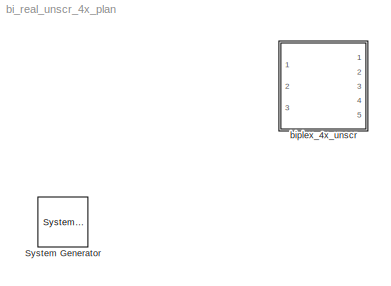
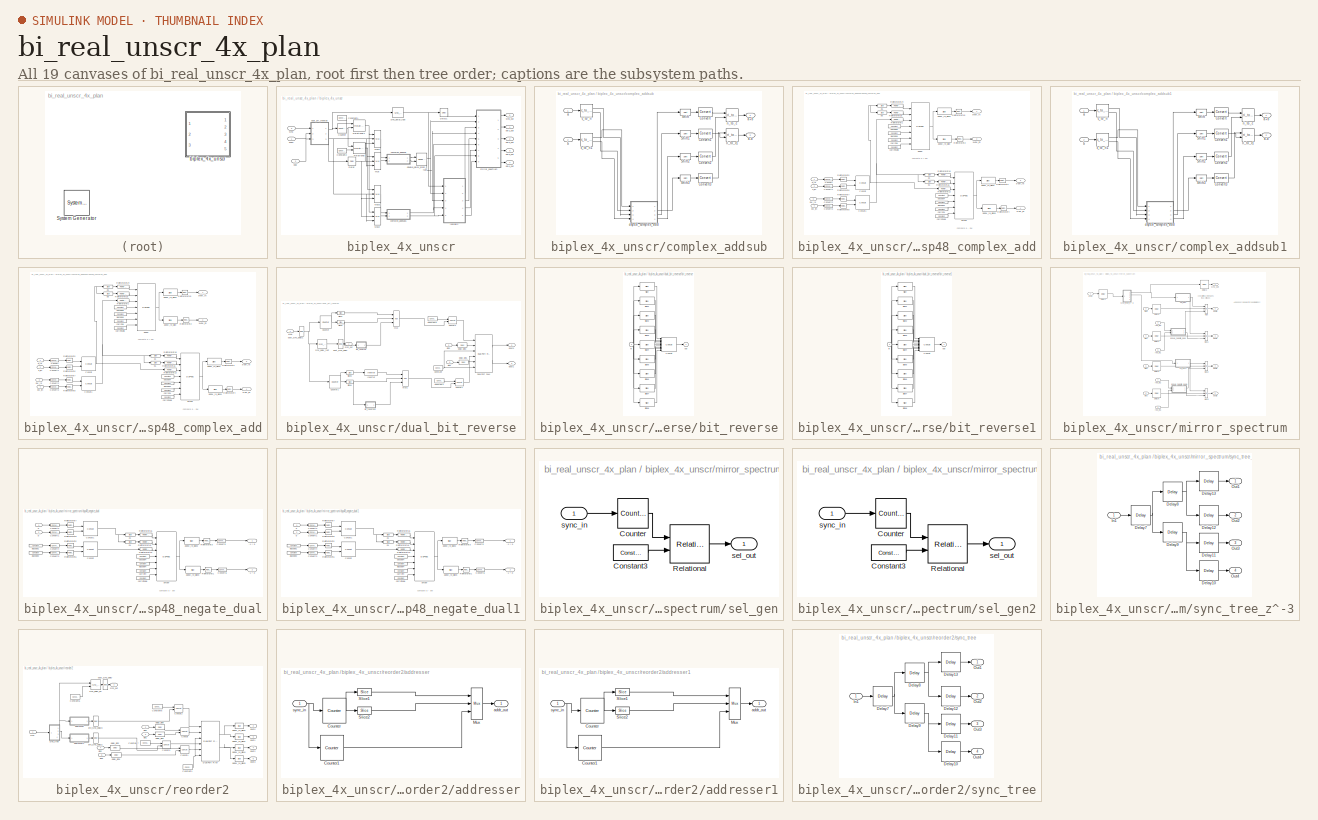
[diagram: thumbnail index - all 19 canvases of the model, root first then tree order]
MODEL bi_real_unscr_4x_plan
KIND model
BLOCK [Reference]  System Generator  REF=xbsIndex_r4/ System Generator
  AttributesFormatString = System\\nGenerator
  FunctionWithSeparateData = off
  GeneratePreprocessorConditionals = off
  Ports = []
  RTWMemSecDataConstants = Inherit from model
  RTWMemSecDataInternal = Inherit from model
  RTWMemSecDataParameters = Inherit from model
  RTWMemSecFuncExecute = Inherit from model
  RTWMemSecFuncInitTerm = Inherit from model
  SID = 1
  ShowPortLabels = FromPortIcon
  SourceBlock = xbsIndex_r4/ System Generator
  SourceType = Xilinx System Generator Block
  SystemSampleTime = -1
  Tag = genX
  UserData = DataTag0
  UserDataPersistent = on
  block_type = sysgen
  clock_wrapper = Clock Enables
  core_generation = According to Block Masks
  dbl_ovrd = According to Block Masks
  dcm_input_clock_period = 10
  deprecated_control = off
  directory = ./netlist
  eval_field = 0
  has_advanced_control = 0
  incr_netlist = off
  infoedit = System Generator
  package = ff1156
  part = xc6vsx315t
  run_coregen = off
  sg_icon_stat = 50,50,0,0,token,white,0,58c5b5770fe5f7c311f53dbc6e73f0f6,right,,[ ],[ ]
  sg_mask_display = fprintf('','COMMENT: begin icon graphics');\npatch([0 50 50 0 0 ],[0 0 50 50 0 ],[1 1 1 ]);\npatch([1.6375 16.81 27.31 37.81 48.31 27.31 12.1375 1.6375 ],[36.655 36.655 47.155 36.655 47.155 47.155 47.155 36.655 ],[0.933333 0.203922 0.141176 ]);\npatch([12.1375 27.31 16.81 1.6375 12.1375 ],[26.155 26.155 36.655 36.655 26.155 ],[0.698039 0.0313725 0.219608 ]);\npatch([1.6375 16.81 27.31 12.1375 1.63...<+335ch>
  sggui_pos = -1,-1,-1,-1
  simulink_period = 1
  speed = -3
  synthesis_tool = XST
  sysclk_period = 10
  testbench = off
  trim_vbits = Everywhere in SubSystem
  xilinxfamily = Virtex6
BLOCK [SubSystem] biplex_4x_unscr
  FunctionWithSeparateData = off
  MaskCallbackString = |||
  MaskEnableString = on,on,on,on
  MaskHideContents = off
  MaskIconFrame = on
  MaskIconOpaque = on
  MaskIconRotate = none
  MaskIconUnits = autoscale
  MaskPortRotate = default
  MaskPromptString = Size of FFT (2^?):|BRAM Latency|Input Bit Width|Reorder Data In Latency
  MaskStyleString = edit,edit,edit,edit
  MaskToolTipString = on,on,on,on
  MaskTunableValueString = on,on,on,on
  MaskValueString = 10|3|18|0
  MaskVariables = FFTSize=@1;bram_latency=@2;input_bit_width=@3;reorder_din_latency=@4;
  MaskVisibilityString = on,on,on,on
  MinAlgLoopOccurrences = off
  Opaque = off
  Ports = [3, 5]
  PropExecContextOutsideSubsystem = off
  RTWSystemCode = Auto
  RequestExecContextInheritance = off
  SID = 36
  UserData = DataTag1
  UserDataPersistent = on
BLOCK [Reference] biplex_4x_unscr/Constant1  REF=xbsIndex_r4/Constant
  Ports = [0, 1]
  SID = 41
  SourceBlock = xbsIndex_r4/Constant
  SourceType = Xilinx Constant Block Block
  arith_type = Unsigned
  bin_pt = 0
  block_type = constant
  block_version = 9.1.01
  carry = CIN
  const = 2^(FFTSize-1)-1
  dbl_ovrd = off
  dsp48_infoedit = The use of this block for DSP48 instructions is deprecated.  Please use the Opmode block.
  equ = P=C
  explicit_period = on
  has_advanced_control = 0
  inp1 = P
  inp2 = PCIN>>17
  n_bits = FFTSize
  opr = +
  opselect = C
  period = 1
  sg_icon_stat = 35,18,0,1,white,blue,0,468bff1c,right,,[ ],[ ]
  sg_list_contents = {'table'=>{'carry'=>'popup(0|1|CIN|~SIGN(P or PCIN)|~SIGN(A*B or A:B)|~SIGND(A*B or A:B))','inp1'=>'popup(0|P|A:B|A*B|C|P+C|A:B+C)','inp2'=>'popup(0|PCIN|P|C|PCIN>>17|P>>17)','opselect'=>'popup(C + A*B|PCIN + A*B|P + A*B|A * B|C + A:B|C - A:B|C|Custom)','userSelections'=>{'carry'=>'CIN','inp1'=>'P','inp2'=>'PCIN>>17','opselect'=>'C'}}}
  sg_mask_display = fprintf('','COMMENT: begin icon graphics');\npatch([0 35 35 0 0 ],[0 0 18 18 0 ],[0.77 0.82 0.91 ]);\nplot([0 35 35 0 0 ],[0 0 18 18 0 ]);\npatch([12.55 15.44 17.44 19.44 21.44 17.44 14.55 12.55 ],[11.22 11.22 13.22 11.22 13.22 13.22 13.22 11.22 ],[1 1 1 ]);\npatch([14.55 17.44 15.44 12.55 14.55 ],[9.22 9.22 11.22 11.22 9.22 ],[0.931 0.946 0.973 ]);\npatch([12.55 15.44 17.44 14.55 12.55 ],[7.22 7....<+312ch>
  sggui_pos = -1,-1,-1,-1
BLOCK [Reference] biplex_4x_unscr/Constant2  REF=xbsIndex_r4/Constant
  Ports = [0, 1]
  SID = 42
  SourceBlock = xbsIndex_r4/Constant
  SourceType = Xilinx Constant Block Block
  arith_type = Unsigned
  bin_pt = 0
  block_type = constant
  block_version = 9.1.01
  carry = CIN
  const = 2^FFTSize -1
  dbl_ovrd = off
  dsp48_infoedit = The use of this block for DSP48 instructions is deprecated.  Please use the Opmode block.
  equ = P=C
  explicit_period = on
  has_advanced_control = 0
  inp1 = P
  inp2 = PCIN>>17
  n_bits = FFTSize
  opr = +
  opselect = C
  period = 1
  sg_icon_stat = 35,18,0,1,white,blue,0,3ed70023,right,,[ ],[ ]
  sg_list_contents = {'table'=>{'carry'=>'popup(0|1|CIN|~SIGN(P or PCIN)|~SIGN(A*B or A:B)|~SIGND(A*B or A:B))','inp1'=>'popup(0|P|A:B|A*B|C|P+C|A:B+C)','inp2'=>'popup(0|PCIN|P|C|PCIN>>17|P>>17)','opselect'=>'popup(C + A*B|PCIN + A*B|P + A*B|A * B|C + A:B|C - A:B|C|Custom)','userSelections'=>{'carry'=>'CIN','inp1'=>'P','inp2'=>'PCIN>>17','opselect'=>'C'}}}
  sg_mask_display = fprintf('','COMMENT: begin icon graphics');\npatch([0 35 35 0 0 ],[0 0 18 18 0 ],[0.77 0.82 0.91 ]);\nplot([0 35 35 0 0 ],[0 0 18 18 0 ]);\npatch([12.55 15.44 17.44 19.44 21.44 17.44 14.55 12.55 ],[11.22 11.22 13.22 11.22 13.22 13.22 13.22 11.22 ],[1 1 1 ]);\npatch([14.55 17.44 15.44 12.55 14.55 ],[9.22 9.22 11.22 11.22 9.22 ],[0.931 0.946 0.973 ]);\npatch([12.55 15.44 17.44 14.55 12.55 ],[7.22 7....<+315ch>
  sggui_pos = -1,-1,-1,-1
BLOCK [Reference] biplex_4x_unscr/Counter  REF=xbsIndex_r4/Counter
  Ports = [1, 1]
  SID = 43
  SourceBlock = xbsIndex_r4/Counter
  SourceType = Xilinx Counter Block
  arith_type = Unsigned
  bin_pt = 0
  block_type = counter
  block_version = 9.1.01
  cnt_by_val = 1
  cnt_to = Inf
  cnt_type = Free Running
  dbl_ovrd = off
  en = off
  explicit_period = off
  has_advanced_control = 0
  implementation = Fabric
  infoedit = Hardware notes: Free running counters are the least expensive in hardware.  A count limited counter is implemented by combining a counter with a comparator.
  load_pin = off
  n_bits = FFTSize
  operation = Up
  period = 1
  rst = on
  sg_icon_stat = 35,36,1,1,white,blue,0,803eba70,right,,[ ],[ ]
  sg_mask_display = fprintf('','COMMENT: begin icon graphics');\npatch([0 35 35 0 0 ],[0 0 36 36 0 ],[0.77 0.82 0.91 ]);\nplot([0 35 35 0 0 ],[0 0 36 36 0 ]);\npatch([5.875 13.1 18.1 23.1 28.1 18.1 10.875 5.875 ],[23.55 23.55 28.55 23.55 28.55 28.55 28.55 23.55 ],[1 1 1 ]);\npatch([10.875 18.1 13.1 5.875 10.875 ],[18.55 18.55 23.55 23.55 18.55 ],[0.931 0.946 0.973 ]);\npatch([5.875 13.1 18.1 10.875 5.875 ],[13.55 13....<+380ch>
  sggui_pos = -1,-1,-1,-1
  start_count = 0
  use_behavioral_HDL = off
  use_rpm = on
  xl_area = [0, 0, 0, 0, 0, 0, 0]
  xl_use_area = off
BLOCK [Reference] biplex_4x_unscr/Delay  REF=xbsIndex_r4/Delay
  Ports = [1, 1]
  SID = 44
  SourceBlock = xbsIndex_r4/Delay
  SourceType = Xilinx Delay Block
  block_type = delay
  block_version = 9.1.01
  dbl_ovrd = off
  en = off
  has_advanced_control = 0
  infoedit = Hardware notes: A delay line is a chain, each link of which is an SRL16 followed by a flip-flop.
  latency = 1
  reg_retiming = off
  sg_icon_stat = 30,32,1,1,white,blue,0,07b98262,right,,[ ],[ ]
  sg_mask_display = fprintf('','COMMENT: begin icon graphics');\npatch([0 30 30 0 0 ],[0 0 32 32 0 ],[0.77 0.82 0.91 ]);\nplot([0 30 30 0 0 ],[0 0 32 32 0 ]);\npatch([6.1 11.88 15.88 19.88 23.88 15.88 10.1 6.1 ],[20.44 20.44 24.44 20.44 24.44 24.44 24.44 20.44 ],[1 1 1 ]);\npatch([10.1 15.88 11.88 6.1 10.1 ],[16.44 16.44 20.44 20.44 16.44 ],[0.931 0.946 0.973 ]);\npatch([6.1 11.88 15.88 10.1 6.1 ],[12.44 12.44 16.44 ...<+310ch>
  sggui_pos = -1,-1,-1,-1
  xl_area = [0, 0, 0, 0, 0, 0, 0]
  xl_use_area = off
BLOCK [Reference] biplex_4x_unscr/Delay1  REF=xbsIndex_r4/Delay
  Ports = [1, 1]
  SID = 45
  SourceBlock = xbsIndex_r4/Delay
  SourceType = Xilinx Delay Block
  block_type = delay
  block_version = 9.1.01
  dbl_ovrd = off
  en = off
  has_advanced_control = 0
  infoedit = Hardware notes: A delay line is a chain, each link of which is an SRL16 followed by a flip-flop.
  latency = 3
  reg_retiming = off
  sg_icon_stat = 30,32,1,1,white,blue,0,83e6bb61,right,,[ ],[ ]
  sg_mask_display = fprintf('','COMMENT: begin icon graphics');\npatch([0 30 30 0 0 ],[0 0 32 32 0 ],[0.77 0.82 0.91 ]);\nplot([0 30 30 0 0 ],[0 0 32 32 0 ]);\npatch([6.1 11.88 15.88 19.88 23.88 15.88 10.1 6.1 ],[20.44 20.44 24.44 20.44 24.44 24.44 24.44 20.44 ],[1 1 1 ]);\npatch([10.1 15.88 11.88 6.1 10.1 ],[16.44 16.44 20.44 20.44 16.44 ],[0.931 0.946 0.973 ]);\npatch([6.1 11.88 15.88 10.1 6.1 ],[12.44 12.44 16.44 ...<+312ch>
  sggui_pos = -1,-1,-1,-1
  xl_area = [0, 0, 0, 0, 0, 0, 0]
  xl_use_area = off
BLOCK [Reference] biplex_4x_unscr/Mux  REF=xbsIndex_r4/Mux
  Ports = [3, 1]
  SID = 46
  SourceBlock = xbsIndex_r4/Mux
  SourceType = Xilinx Bus Multiplexer Block
  arith_type = Signed  (2's comp)
  bin_pt = 2
  block_type = mux
  block_version = 9.1.01
  dbl_ovrd = off
  en = off
  has_advanced_control = 0
  inputs = 2
  latency = 1
  n_bits = 8
  overflow = Wrap
  precision = Full
  quantization = Truncate
  sg_icon_stat = 25,66,3,1,white,blue,3,a150fb03,right,,[ ],[ ]
  sg_mask_display = fprintf('','COMMENT: begin icon graphics');\npatch([0 25 25 0 0 ],[0 9.42857 56.5714 66 0 ],[0.77 0.82 0.91 ]);\nplot([0 25 25 0 0 ],[0 9.42857 56.5714 66 0 ]);\npatch([5.325 9.66 12.66 15.66 18.66 12.66 8.325 5.325 ],[36.33 36.33 39.33 36.33 39.33 39.33 39.33 36.33 ],[1 1 1 ]);\npatch([8.325 12.66 9.66 5.325 8.325 ],[33.33 33.33 36.33 36.33 33.33 ],[0.931 0.946 0.973 ]);\npatch([5.325 9.66 12.66 ...<+491ch>  <repeated x4 — deduplicated; at blocks: Mux, Mux1, Mux2, Mux3>
  sggui_pos = -1,-1,-1,-1
  xl_area = [0, 0, 0, 0, 0, 0, 0]
  xl_use_area = off
BLOCK [Reference] biplex_4x_unscr/Mux1  REF=xbsIndex_r4/Mux
  Ports = [3, 1]
  SID = 47
  SourceBlock = xbsIndex_r4/Mux
  SourceType = Xilinx Bus Multiplexer Block
  arith_type = Signed  (2's comp)
  bin_pt = 2
  block_type = mux
  block_version = 9.1.01
  dbl_ovrd = off
  en = off
  has_advanced_control = 0
  inputs = 2
  latency = 1
  n_bits = 8
  overflow = Wrap
  precision = Full
  quantization = Truncate
  sg_icon_stat = 25,66,3,1,white,blue,3,a150fb03,right,,[ ],[ ]
  sggui_pos = -1,-1,-1,-1
  xl_area = [0, 0, 0, 0, 0, 0, 0]
  xl_use_area = off
BLOCK [Reference] biplex_4x_unscr/Mux2  REF=xbsIndex_r4/Mux
  Ports = [3, 1]
  SID = 48
  SourceBlock = xbsIndex_r4/Mux
  SourceType = Xilinx Bus Multiplexer Block
  arith_type = Signed  (2's comp)
  bin_pt = 2
  block_type = mux
  block_version = 9.1.01
  dbl_ovrd = off
  en = off
  has_advanced_control = 0
  inputs = 2
  latency = 1
  n_bits = 8
  overflow = Wrap
  precision = Full
  quantization = Truncate
  sg_icon_stat = 25,66,3,1,white,blue,3,a150fb03,right,,[ ],[ ]
  sggui_pos = -1,-1,-1,-1
  xl_area = [0, 0, 0, 0, 0, 0, 0]
  xl_use_area = off
BLOCK [Reference] biplex_4x_unscr/Mux3  REF=xbsIndex_r4/Mux
  Ports = [3, 1]
  SID = 49
  SourceBlock = xbsIndex_r4/Mux
  SourceType = Xilinx Bus Multiplexer Block
  arith_type = Signed  (2's comp)
  bin_pt = 2
  block_type = mux
  block_version = 9.1.01
  dbl_ovrd = off
  en = off
  has_advanced_control = 0
  inputs = 2
  latency = 1
  n_bits = 8
  overflow = Wrap
  precision = Full
  quantization = Truncate
  sg_icon_stat = 25,66,3,1,white,blue,3,a150fb03,right,,[ ],[ ]
  sggui_pos = -1,-1,-1,-1
  xl_area = [0, 0, 0, 0, 0, 0, 0]
  xl_use_area = off
BLOCK [Reference] biplex_4x_unscr/Relational  REF=xbsIndex_r4/Relational
  Ports = [2, 1]
  SID = 50
  SourceBlock = xbsIndex_r4/Relational
  SourceType = Xilinx Arithmetic Relational Operator Block
  block_type = relational
  block_version = 9.1.01
  dbl_ovrd = off
  en = off
  has_advanced_control = 0
  latency = 1
  mode = a=b
  sg_icon_stat = 45,44,2,1,white,blue,0,3618233f,right,,[ ],[ ]
  sg_list_contents = {'table'=>{'mode'=>'popup(a=b|a!=b|a<b|a>b|a<=b|a>=b)','userSelections'=>{'mode'=>'a=b'}}}
  sg_mask_display = fprintf('','COMMENT: begin icon graphics');\npatch([0 45 45 0 0 ],[0 0 44 44 0 ],[0.77 0.82 0.91 ]);\nplot([0 45 45 0 0 ],[0 0 44 44 0 ]);\npatch([8.65 17.32 23.32 29.32 35.32 23.32 14.65 8.65 ],[28.66 28.66 34.66 28.66 34.66 34.66 34.66 28.66 ],[1 1 1 ]);\npatch([14.65 23.32 17.32 8.65 14.65 ],[22.66 22.66 28.66 28.66 22.66 ],[0.931 0.946 0.973 ]);\npatch([8.65 17.32 23.32 14.65 8.65 ],[16.66 16....<+516ch>  <repeated x4 — deduplicated; at blocks: Relational, Relational1>
  sggui_pos = -1,-1,-1,-1
  xl_area = [0, 0, 0, 0, 0, 0, 0]
  xl_use_area = off
BLOCK [Reference] biplex_4x_unscr/Relational1  REF=xbsIndex_r4/Relational
  Ports = [2, 1]
  SID = 51
  SourceBlock = xbsIndex_r4/Relational
  SourceType = Xilinx Arithmetic Relational Operator Block
  block_type = relational
  block_version = 9.1.01
  dbl_ovrd = off
  en = off
  has_advanced_control = 0
  latency = 1
  mode = a=b
  sg_icon_stat = 45,44,2,1,white,blue,0,3618233f,right,,[ ],[ ]
  sg_list_contents = {'table'=>{'mode'=>'popup(a=b|a!=b|a<b|a>b|a<=b|a>=b)','userSelections'=>{'mode'=>'a=b'}}}
  sggui_pos = -1,-1,-1,-1
  xl_area = [0, 0, 0, 0, 0, 0, 0]
  xl_use_area = off
BLOCK [SubSystem] biplex_4x_unscr/complex_addsub
  FunctionWithSeparateData = off
  MaskCallbackString = |
  MaskDescription = Adds and subtracts the complex inputs. \nIf a = w + ix, b = y + iz then \na+b = (w+y)/2 + i(x-z)/2 and \na-b = (x+z)/2 + i(y-w)/2
  MaskEnableString = on,on
  MaskHideContents = off
  MaskIconFrame = on
  MaskIconOpaque = on
  MaskIconRotate = none
  MaskIconUnits = autoscale
  MaskPortRotate = default
  MaskPromptString = Bit Wdith|Add Latency
  MaskStyleString = edit,edit
  MaskToolTipString = on,on
  MaskTunableValueString = on,on
  MaskType = complex_addsub
  MaskValueString = input_bit_width|add_latency
  MaskVariables = BitWidth=@1;add_latency=@2;
  MaskVisibilityString = on,on
  MinAlgLoopOccurrences = off
  Opaque = off
  Ports = [2, 2]
  PropExecContextOutsideSubsystem = off
  RTWSystemCode = Auto
  RequestExecContextInheritance = off
  SID = 52
BLOCK [Reference] biplex_4x_unscr/complex_addsub/Convert  REF=xbsIndex_r4/Convert
  Ports = [1, 1]
  SID = 59
  SourceBlock = xbsIndex_r4/Convert
  SourceType = Xilinx Type Converter Block
  arith_type = Signed  (2's comp)
  bin_pt = BitWidth - 1
  block_type = convert
  block_version = 9.1.01
  dbl_ovrd = off
  en = off
  has_advanced_control = 0
  infoedit = Hardware notes: rounding and saturating require hardware resources; truncating and wrapping do not.
  latency = add_latency
  n_bits = BitWidth
  overflow = Wrap
  pipeline = off
  quantization = Truncate
  sg_icon_stat = 45,30,1,1,white,blue,0,b61d041b,right,,[ ],[ ]
  sg_mask_display = fprintf('','COMMENT: begin icon graphics');\npatch([0 45 45 0 0 ],[0 0 30 30 0 ],[0.77 0.82 0.91 ]);\nplot([0 45 45 0 0 ],[0 0 30 30 0 ]);\npatch([13.1 18.88 22.88 26.88 30.88 22.88 17.1 13.1 ],[19.44 19.44 23.44 19.44 23.44 23.44 23.44 19.44 ],[1 1 1 ]);\npatch([17.1 22.88 18.88 13.1 17.1 ],[15.44 15.44 19.44 19.44 15.44 ],[0.931 0.946 0.973 ]);\npatch([13.1 18.88 22.88 17.1 13.1 ],[11.44 11.44 1...<+402ch>  <repeated x8 — deduplicated; at blocks: Convert, Convert1, Convert2, Convert3>
  sggui_pos = 20,20,538,377
  xl_area = [0, 0, 0, 0, 0, 0, 0]
  xl_use_area = off
BLOCK [Reference] biplex_4x_unscr/complex_addsub/Convert1  REF=xbsIndex_r4/Convert
  Ports = [1, 1]
  SID = 60
  SourceBlock = xbsIndex_r4/Convert
  SourceType = Xilinx Type Converter Block
  arith_type = Signed  (2's comp)
  bin_pt = BitWidth - 1
  block_type = convert
  block_version = 9.1.01
  dbl_ovrd = off
  en = off
  has_advanced_control = 0
  infoedit = Hardware notes: rounding and saturating require hardware resources; truncating and wrapping do not.
  latency = add_latency
  n_bits = BitWidth
  overflow = Wrap
  pipeline = off
  quantization = Truncate
  sg_icon_stat = 45,30,1,1,white,blue,0,b61d041b,right,,[ ],[ ]
  sggui_pos = 20,20,538,377
  xl_area = [0, 0, 0, 0, 0, 0, 0]
  xl_use_area = off
BLOCK [Reference] biplex_4x_unscr/complex_addsub/Convert2  REF=xbsIndex_r4/Convert
  Ports = [1, 1]
  SID = 61
  SourceBlock = xbsIndex_r4/Convert
  SourceType = Xilinx Type Converter Block
  arith_type = Signed  (2's comp)
  bin_pt = BitWidth - 1
  block_type = convert
  block_version = 9.1.01
  dbl_ovrd = off
  en = off
  has_advanced_control = 0
  infoedit = Hardware notes: rounding and saturating require hardware resources; truncating and wrapping do not.
  latency = add_latency
  n_bits = BitWidth
  overflow = Wrap
  pipeline = off
  quantization = Truncate
  sg_icon_stat = 45,30,1,1,white,blue,0,b61d041b,right,,[ ],[ ]
  sggui_pos = 20,20,538,377
  xl_area = [0, 0, 0, 0, 0, 0, 0]
  xl_use_area = off
BLOCK [Reference] biplex_4x_unscr/complex_addsub/Convert3  REF=xbsIndex_r4/Convert
  Ports = [1, 1]
  SID = 62
  SourceBlock = xbsIndex_r4/Convert
  SourceType = Xilinx Type Converter Block
  arith_type = Signed  (2's comp)
  bin_pt = BitWidth - 1
  block_type = convert
  block_version = 9.1.01
  dbl_ovrd = off
  en = off
  has_advanced_control = 0
  infoedit = Hardware notes: rounding and saturating require hardware resources; truncating and wrapping do not.
  latency = add_latency
  n_bits = BitWidth
  overflow = Wrap
  pipeline = off
  quantization = Truncate
  sg_icon_stat = 45,30,1,1,white,blue,0,b61d041b,right,,[ ],[ ]
  sggui_pos = 20,20,538,377
  xl_area = [0, 0, 0, 0, 0, 0, 0]
  xl_use_area = off
BLOCK [Reference] biplex_4x_unscr/complex_addsub/Shift  REF=xbsIndex_r4/Shift
  Ports = [1, 1]
  SID = 63
  SourceBlock = xbsIndex_r4/Shift
  SourceType = Xilinx Binary Shift Operator Block
  arith_type = Signed  (2's comp)
  bin_pt = 2
  block_type = shift
  block_version = 9.1.01
  dbl_ovrd = off
  en = off
  has_advanced_control = 0
  infoedit = Hardware notes: In hardware this block costs nothing if full output precision is used.
  latency = 0
  n_bits = 8
  overflow = Wrap
  precision = Full
  quantization = Truncate
  sg_icon_stat = 35,20,1,1,white,blue,0,77cd8d92,right,,[ ],[ ]
  sg_mask_display = fprintf('','COMMENT: begin icon graphics');\npatch([0 35 35 0 0 ],[0 0 20 20 0 ],[0.77 0.82 0.91 ]);\nplot([0 35 35 0 0 ],[0 0 20 20 0 ]);\npatch([12.55 15.44 17.44 19.44 21.44 17.44 14.55 12.55 ],[12.22 12.22 14.22 12.22 14.22 14.22 14.22 12.22 ],[1 1 1 ]);\npatch([14.55 17.44 15.44 12.55 14.55 ],[10.22 10.22 12.22 12.22 10.22 ],[0.931 0.946 0.973 ]);\npatch([12.55 15.44 17.44 14.55 12.55 ],[8.22...<+328ch>  <repeated x8 — deduplicated; at blocks: Shift, Shift1, Shift2, Shift3>
  sggui_pos = -1,-1,-1,-1
  shift_bits = 1
  shift_dir = Right
  xl_area = [0, 0, 0, 0, 0, 0, 0]
  xl_use_area = off
BLOCK [Reference] biplex_4x_unscr/complex_addsub/Shift1  REF=xbsIndex_r4/Shift
  Ports = [1, 1]
  SID = 64
  SourceBlock = xbsIndex_r4/Shift
  SourceType = Xilinx Binary Shift Operator Block
  arith_type = Signed  (2's comp)
  bin_pt = 2
  block_type = shift
  block_version = 9.1.01
  dbl_ovrd = off
  en = off
  has_advanced_control = 0
  infoedit = Hardware notes: In hardware this block costs nothing if full output precision is used.
  latency = 0
  n_bits = 8
  overflow = Wrap
  precision = Full
  quantization = Truncate
  sg_icon_stat = 35,20,1,1,white,blue,0,77cd8d92,right,,[ ],[ ]
  sggui_pos = -1,-1,-1,-1
  shift_bits = 1
  shift_dir = Right
  xl_area = [0, 0, 0, 0, 0, 0, 0]
  xl_use_area = off
BLOCK [Reference] biplex_4x_unscr/complex_addsub/Shift2  REF=xbsIndex_r4/Shift
  Ports = [1, 1]
  SID = 65
  SourceBlock = xbsIndex_r4/Shift
  SourceType = Xilinx Binary Shift Operator Block
  arith_type = Signed  (2's comp)
  bin_pt = 2
  block_type = shift
  block_version = 9.1.01
  dbl_ovrd = off
  en = off
  has_advanced_control = 0
  infoedit = Hardware notes: In hardware this block costs nothing if full output precision is used.
  latency = 0
  n_bits = 8
  overflow = Wrap
  precision = Full
  quantization = Truncate
  sg_icon_stat = 35,20,1,1,white,blue,0,77cd8d92,right,,[ ],[ ]
  sggui_pos = -1,-1,-1,-1
  shift_bits = 1
  shift_dir = Right
  xl_area = [0, 0, 0, 0, 0, 0, 0]
  xl_use_area = off
BLOCK [Reference] biplex_4x_unscr/complex_addsub/Shift3  REF=xbsIndex_r4/Shift
  Ports = [1, 1]
  SID = 66
  SourceBlock = xbsIndex_r4/Shift
  SourceType = Xilinx Binary Shift Operator Block
  arith_type = Signed  (2's comp)
  bin_pt = 2
  block_type = shift
  block_version = 9.1.01
  dbl_ovrd = off
  en = off
  has_advanced_control = 0
  infoedit = Hardware notes: In hardware this block costs nothing if full output precision is used.
  latency = 0
  n_bits = 8
  overflow = Wrap
  precision = Full
  quantization = Truncate
  sg_icon_stat = 35,20,1,1,white,blue,0,77cd8d92,right,,[ ],[ ]
  sggui_pos = -1,-1,-1,-1
  shift_bits = 1
  shift_dir = Right
  xl_area = [0, 0, 0, 0, 0, 0, 0]
  xl_use_area = off
BLOCK [Inport] biplex_4x_unscr/complex_addsub/a
  IconDisplay = Port number
  SID = 53
BLOCK [Outport] biplex_4x_unscr/complex_addsub/a+b
  IconDisplay = Port number
  SID = 124
BLOCK [Outport] biplex_4x_unscr/complex_addsub/a-b
  IconDisplay = Port number
  Port = 2
  SID = 125
BLOCK [Inport] biplex_4x_unscr/complex_addsub/b
  IconDisplay = Port number
  Port = 2
  SID = 54
BLOCK [Reference] biplex_4x_unscr/complex_addsub/c_to_ri  REF=casper_library/Misc/c_to_ri  (lib defined in mdl_138b2fc3435f, mdl_4ed325b712b3, +2 more)
  AttributesFormatString = 18_17 r/i
  FunctionWithSeparateData = off
  GeneratePreprocessorConditionals = off
  Ports = [1, 2]
  RTWMemSecDataConstants = Inherit from model
  RTWMemSecDataInternal = Inherit from model
  RTWMemSecDataParameters = Inherit from model
  RTWMemSecFuncExecute = Inherit from model
  RTWMemSecFuncInitTerm = Inherit from model
  SID = 67
  ShowPortLabels = FromPortIcon
  SourceBlock = casper_library/Misc/c_to_ri
  SourceType = c_to_ri
  SystemSampleTime = -1
  UserData = DataTag2
  UserDataPersistent = on
  bin_pt = BitWidth-1
  n_bits = BitWidth
BLOCK [Reference] biplex_4x_unscr/complex_addsub/c_to_ri1  REF=casper_library/Misc/c_to_ri  (lib defined in mdl_138b2fc3435f, mdl_4ed325b712b3, +2 more)
  AttributesFormatString = 18_17 r/i
  FunctionWithSeparateData = off
  GeneratePreprocessorConditionals = off
  Ports = [1, 2]
  RTWMemSecDataConstants = Inherit from model
  RTWMemSecDataInternal = Inherit from model
  RTWMemSecDataParameters = Inherit from model
  RTWMemSecFuncExecute = Inherit from model
  RTWMemSecFuncInitTerm = Inherit from model
  SID = 68
  ShowPortLabels = FromPortIcon
  SourceBlock = casper_library/Misc/c_to_ri
  SourceType = c_to_ri
  SystemSampleTime = -1
  UserData = DataTag3
  UserDataPersistent = on
  bin_pt = BitWidth-1
  n_bits = BitWidth
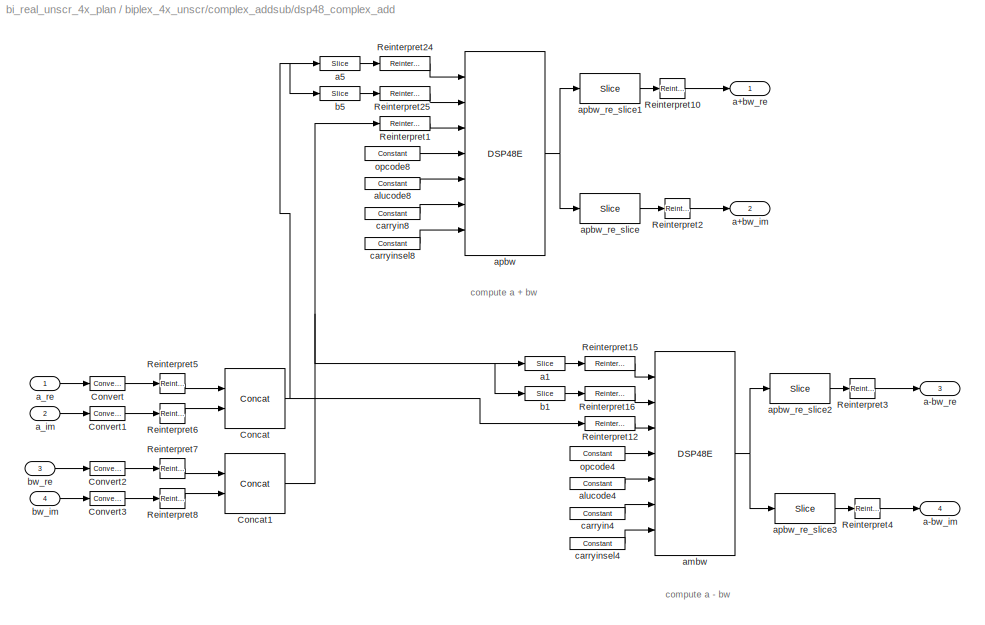
BLOCK [SubSystem] biplex_4x_unscr/complex_addsub/dsp48_complex_add
  FunctionWithSeparateData = off
  MaskCallbackString = |||
  MaskEnableString = on,on,on,on
  MaskHideContents = off
  MaskIconFrame = on
  MaskIconOpaque = on
  MaskIconRotate = none
  MaskIconUnits = autoscale
  MaskPortRotate = default
  MaskPromptString = 'a' bit width|'a' binary point|'bw' bit width|'bw' binary point
  MaskStyleString = edit,edit,edit,edit
  MaskToolTipString = on,on,on,on
  MaskTunableValueString = on,on,on,on
  MaskValueString = BitWidth|BitWidth-2|BitWidth|BitWidth-2
  MaskVariables = a_bit_width=@1;a_bin_pt=@2;bw_bit_width=@3;bw_bin_pt=@4;
  MaskVisibilityString = on,on,on,on
  MinAlgLoopOccurrences = off
  Opaque = off
  Ports = [4, 4]
  PropExecContextOutsideSubsystem = off
  RTWSystemCode = Auto
  RequestExecContextInheritance = off
  SID = 69
BLOCK [Reference] biplex_4x_unscr/complex_addsub/dsp48_complex_add/Concat  REF=xbsIndex_r4/Concat
  Ports = [2, 1]
  SID = 74
  SourceBlock = xbsIndex_r4/Concat
  SourceType = Xilinx Bus Concatenator Block
  block_type = concat
  block_version = 11.3
  dbl_ovrd = off
  has_advanced_control = 0
  infoedit = Concatenates two or more inputs.  Output will be cast to an unsigned value with the binary point at zero.
  num_inputs = 2
  sg_icon_stat = 60,60,2,1,white,blue,0,16398980,right,,[ ],[ ]
  sg_mask_display = fprintf('','COMMENT: begin icon graphics');\npatch([0 60 60 0 0 ],[0 0 60 60 0 ],[0.77 0.82 0.91 ]);\nplot([0 60 60 0 0 ],[0 0 60 60 0 ]);\npatch([12.2 23.76 31.76 39.76 47.76 31.76 20.2 12.2 ],[38.88 38.88 46.88 38.88 46.88 46.88 46.88 38.88 ],[1 1 1 ]);\npatch([20.2 31.76 23.76 12.2 20.2 ],[30.88 30.88 38.88 38.88 30.88 ],[0.931 0.946 0.973 ]);\npatch([12.2 23.76 31.76 20.2 12.2 ],[22.88 22.88 3...<+417ch>  <repeated x8 — deduplicated; at blocks: Concat, Concat1>
  sggui_pos = -1,-1,-1,-1
BLOCK [Reference] biplex_4x_unscr/complex_addsub/dsp48_complex_add/Concat1  REF=xbsIndex_r4/Concat
  Ports = [2, 1]
  SID = 75
  SourceBlock = xbsIndex_r4/Concat
  SourceType = Xilinx Bus Concatenator Block
  block_type = concat
  block_version = 11.3
  dbl_ovrd = off
  has_advanced_control = 0
  infoedit = Concatenates two or more inputs.  Output will be cast to an unsigned value with the binary point at zero.
  num_inputs = 2
  sg_icon_stat = 60,60,2,1,white,blue,0,16398980,right,,[ ],[ ]
  sggui_pos = -1,-1,-1,-1
BLOCK [Reference] biplex_4x_unscr/complex_addsub/dsp48_complex_add/Convert  REF=xbsIndex_r4/Convert
  Ports = [1, 1]
  SID = 76
  SourceBlock = xbsIndex_r4/Convert
  SourceType = Xilinx Type Converter Block
  arith_type = Signed  (2's comp)
  bin_pt = 24 - (bw_bit_width - bw_bin_pt)
  block_type = convert
  block_version = 11.4
  dbl_ovrd = off
  en = off
  has_advanced_control = 0
  infoedit = Hardware notes: rounding and saturating require hardware resources; truncating and wrapping do not.
  latency = 0
  n_bits = 24
  overflow = Wrap
  pipeline = off
  quantization = Truncate
  sg_icon_stat = 35,14,1,1,white,blue,0,edca21da,right,,[ ],[ ]
  sg_mask_display = fprintf('','COMMENT: begin icon graphics');\npatch([0 35 35 0 0 ],[0 0 14 14 0 ],[0.77 0.82 0.91 ]);\nplot([0 35 35 0 0 ],[0 0 14 14 0 ]);\npatch([12.55 15.44 17.44 19.44 21.44 17.44 14.55 12.55 ],[9.22 9.22 11.22 9.22 11.22 11.22 11.22 9.22 ],[1 1 1 ]);\npatch([14.55 17.44 15.44 12.55 14.55 ],[7.22 7.22 9.22 9.22 7.22 ],[0.931 0.946 0.973 ]);\npatch([12.55 15.44 17.44 14.55 12.55 ],[5.22 5.22 7.2...<+311ch>  <repeated x20 — deduplicated; at blocks: Convert, Convert1, Convert2, Convert3, Convert4, Convert5, Convert6>
  sggui_pos = -1,-1,-1,-1
  xl_area = [0,0,0,0,0,0,0]
  xl_use_area = off
BLOCK [Reference] biplex_4x_unscr/complex_addsub/dsp48_complex_add/Convert1  REF=xbsIndex_r4/Convert
  Ports = [1, 1]
  SID = 77
  SourceBlock = xbsIndex_r4/Convert
  SourceType = Xilinx Type Converter Block
  arith_type = Signed  (2's comp)
  bin_pt = 24 - (bw_bit_width - bw_bin_pt)
  block_type = convert
  block_version = 11.4
  dbl_ovrd = off
  en = off
  has_advanced_control = 0
  infoedit = Hardware notes: rounding and saturating require hardware resources; truncating and wrapping do not.
  latency = 0
  n_bits = 24
  overflow = Wrap
  pipeline = off
  quantization = Truncate
  sg_icon_stat = 35,14,1,1,white,blue,0,edca21da,right,,[ ],[ ]
  sggui_pos = -1,-1,-1,-1
  xl_area = [0,0,0,0,0,0,0]
  xl_use_area = off
BLOCK [Reference] biplex_4x_unscr/complex_addsub/dsp48_complex_add/Convert2  REF=xbsIndex_r4/Convert
  Ports = [1, 1]
  SID = 78
  SourceBlock = xbsIndex_r4/Convert
  SourceType = Xilinx Type Converter Block
  arith_type = Signed  (2's comp)
  bin_pt = 24 - (bw_bit_width - bw_bin_pt)
  block_type = convert
  block_version = 11.4
  dbl_ovrd = off
  en = off
  has_advanced_control = 0
  infoedit = Hardware notes: rounding and saturating require hardware resources; truncating and wrapping do not.
  latency = 0
  n_bits = 24
  overflow = Wrap
  pipeline = off
  quantization = Truncate
  sg_icon_stat = 35,14,1,1,white,blue,0,edca21da,right,,[ ],[ ]
  sggui_pos = -1,-1,-1,-1
  xl_area = [0,0,0,0,0,0,0]
  xl_use_area = off
BLOCK [Reference] biplex_4x_unscr/complex_addsub/dsp48_complex_add/Convert3  REF=xbsIndex_r4/Convert
  Ports = [1, 1]
  SID = 79
  SourceBlock = xbsIndex_r4/Convert
  SourceType = Xilinx Type Converter Block
  arith_type = Signed  (2's comp)
  bin_pt = 24 - (bw_bit_width - bw_bin_pt)
  block_type = convert
  block_version = 11.4
  dbl_ovrd = off
  en = off
  has_advanced_control = 0
  infoedit = Hardware notes: rounding and saturating require hardware resources; truncating and wrapping do not.
  latency = 0
  n_bits = 24
  overflow = Wrap
  pipeline = off
  quantization = Truncate
  sg_icon_stat = 35,14,1,1,white,blue,0,edca21da,right,,[ ],[ ]
  sggui_pos = -1,-1,-1,-1
  xl_area = [0,0,0,0,0,0,0]
  xl_use_area = off
BLOCK [Reference] biplex_4x_unscr/complex_addsub/dsp48_complex_add/Reinterpret1  REF=xbsIndex_r4/Reinterpret
  Ports = [1, 1]
  SID = 82
  SourceBlock = xbsIndex_r4/Reinterpret
  SourceType = Xilinx Type Reinterpreter Block
  arith_type = Signed  (2's comp)
  bin_pt = 0
  block_type = reinterpret
  block_version = 11.3
  force_arith_type = on
  force_bin_pt = off
  has_advanced_control = 0
  infoedit = Changes signal type without altering the binary representation.   You can changed the signal between signed and unsigned, and relocate the binary point.<br><br>Hardware notes: In hardware this block costs nothing.<br><br>Example:  Suppose the input is 6 bits wide, signed, with 2 fractional bits, and the output is forced to unsigned with 0 fractional bits.  Then an input of -2.0 (1110.00 in binary ...<+59ch>  <repeated x46 — deduplicated; at blocks: Reinterpret1, Reinterpret10, Reinterpret12, Reinterpret15, Reinterpret16, Reinterpret2, Reinterpret24, Reinterpret25, Reinterpret3, Reinterpret4, Reinterpret5, Reinterpret6, Reinterpret7, Reinterpret8>
  sg_icon_stat = 50,14,1,1,white,blue,0,6b04d0b0,right,,[ ],[ ]
  sg_mask_display = fprintf('','COMMENT: begin icon graphics');\npatch([0 50 50 0 0 ],[0 0 14 14 0 ],[0.77 0.82 0.91 ]);\nplot([0 50 50 0 0 ],[0 0 14 14 0 ]);\npatch([20.55 23.44 25.44 27.44 29.44 25.44 22.55 20.55 ],[9.22 9.22 11.22 9.22 11.22 11.22 11.22 9.22 ],[1 1 1 ]);\npatch([22.55 25.44 23.44 20.55 22.55 ],[7.22 7.22 9.22 9.22 7.22 ],[0.931 0.946 0.973 ]);\npatch([20.55 23.44 25.44 22.55 20.55 ],[5.22 5.22 7.2...<+301ch>  <repeated x8 — deduplicated; at blocks: Reinterpret1, Reinterpret12, Reinterpret24>
  sggui_pos = -1,-1,-1,-1
BLOCK [Reference] biplex_4x_unscr/complex_addsub/dsp48_complex_add/Reinterpret10  REF=xbsIndex_r4/Reinterpret
  Ports = [1, 1]
  SID = 83
  SourceBlock = xbsIndex_r4/Reinterpret
  SourceType = Xilinx Type Reinterpreter Block
  arith_type = Signed  (2's comp)
  bin_pt = 24 - (bw_bit_width - bw_bin_pt)
  block_type = reinterpret
  block_version = 11.3
  force_arith_type = on
  force_bin_pt = on
  has_advanced_control = 0
  sg_icon_stat = 25,20,1,1,white,blue,0,6b04d0b0,right,,[ ],[ ]
  sg_mask_display = fprintf('','COMMENT: begin icon graphics');\npatch([0 25 25 0 0 ],[0 0 20 20 0 ],[0.77 0.82 0.91 ]);\nplot([0 25 25 0 0 ],[0 0 20 20 0 ]);\npatch([7.55 10.44 12.44 14.44 16.44 12.44 9.55 7.55 ],[12.22 12.22 14.22 12.22 14.22 14.22 14.22 12.22 ],[1 1 1 ]);\npatch([9.55 12.44 10.44 7.55 9.55 ],[10.22 10.22 12.22 12.22 10.22 ],[0.931 0.946 0.973 ]);\npatch([7.55 10.44 12.44 9.55 7.55 ],[8.22 8.22 10....<+302ch>  <repeated x24 — deduplicated; at blocks: Reinterpret10, Reinterpret2, Reinterpret3, Reinterpret4, Reinterpret6, Reinterpret7, Reinterpret8, Reinterpret1>
  sggui_pos = 0,0,372,364
BLOCK [Reference] biplex_4x_unscr/complex_addsub/dsp48_complex_add/Reinterpret12  REF=xbsIndex_r4/Reinterpret
  Ports = [1, 1]
  SID = 84
  SourceBlock = xbsIndex_r4/Reinterpret
  SourceType = Xilinx Type Reinterpreter Block
  arith_type = Signed  (2's comp)
  bin_pt = 0
  block_type = reinterpret
  block_version = 11.3
  force_arith_type = on
  force_bin_pt = off
  has_advanced_control = 0
  sg_icon_stat = 50,14,1,1,white,blue,0,6b04d0b0,right,,[ ],[ ]
  sggui_pos = -1,-1,-1,-1
BLOCK [Reference] biplex_4x_unscr/complex_addsub/dsp48_complex_add/Reinterpret15  REF=xbsIndex_r4/Reinterpret
  Ports = [1, 1]
  SID = 85
  SourceBlock = xbsIndex_r4/Reinterpret
  SourceType = Xilinx Type Reinterpreter Block
  arith_type = Signed  (2's comp)
  bin_pt = 0
  block_type = reinterpret
  block_version = 11.3
  force_arith_type = on
  force_bin_pt = off
  has_advanced_control = 0
  sg_icon_stat = 50,14,1,1,white,blue,0,6b04d0b0,right,,[ ],[ ]
  sg_mask_display = fprintf('','COMMENT: begin icon graphics');\npatch([0 50 50 0 0 ],[0 0 14 14 0 ],[0.77 0.82 0.91 ]);\nplot([0 50 50 0 0 ],[0 0 14 14 0 ]);\npatch([20.55 23.44 25.44 27.44 29.44 25.44 22.55 20.55 ],[9.22 9.22 11.22 9.22 11.22 11.22 11.22 9.22 ],[1 1 1 ]);\npatch([22.55 25.44 23.44 20.55 22.55 ],[7.22 7.22 9.22 9.22 7.22 ],[0.931 0.946 0.973 ]);\npatch([20.55 23.44 25.44 22.55 20.55 ],[5.22 5.22 7.2...<+303ch>  <repeated x10 — deduplicated; at blocks: Reinterpret15, Reinterpret16, Reinterpret25>
  sggui_pos = -1,-1,-1,-1
BLOCK [Reference] biplex_4x_unscr/complex_addsub/dsp48_complex_add/Reinterpret16  REF=xbsIndex_r4/Reinterpret
  Ports = [1, 1]
  SID = 86
  SourceBlock = xbsIndex_r4/Reinterpret
  SourceType = Xilinx Type Reinterpreter Block
  arith_type = Signed  (2's comp)
  bin_pt = 0
  block_type = reinterpret
  block_version = 11.3
  force_arith_type = on
  force_bin_pt = off
  has_advanced_control = 0
  sg_icon_stat = 50,14,1,1,white,blue,0,6b04d0b0,right,,[ ],[ ]
  sggui_pos = -1,-1,-1,-1
BLOCK [Reference] biplex_4x_unscr/complex_addsub/dsp48_complex_add/Reinterpret2  REF=xbsIndex_r4/Reinterpret
  Ports = [1, 1]
  SID = 87
  SourceBlock = xbsIndex_r4/Reinterpret
  SourceType = Xilinx Type Reinterpreter Block
  arith_type = Signed  (2's comp)
  bin_pt = 24 - (bw_bit_width - bw_bin_pt)
  block_type = reinterpret
  block_version = 11.3
  force_arith_type = on
  force_bin_pt = on
  has_advanced_control = 0
  sg_icon_stat = 25,20,1,1,white,blue,0,6b04d0b0,right,,[ ],[ ]
  sggui_pos = 0,0,372,364
BLOCK [Reference] biplex_4x_unscr/complex_addsub/dsp48_complex_add/Reinterpret24  REF=xbsIndex_r4/Reinterpret
  Ports = [1, 1]
  SID = 88
  SourceBlock = xbsIndex_r4/Reinterpret
  SourceType = Xilinx Type Reinterpreter Block
  arith_type = Signed  (2's comp)
  bin_pt = 0
  block_type = reinterpret
  block_version = 11.3
  force_arith_type = on
  force_bin_pt = off
  has_advanced_control = 0
  sg_icon_stat = 50,14,1,1,white,blue,0,6b04d0b0,right,,[ ],[ ]
  sggui_pos = -1,-1,-1,-1
BLOCK [Reference] biplex_4x_unscr/complex_addsub/dsp48_complex_add/Reinterpret25  REF=xbsIndex_r4/Reinterpret
  Ports = [1, 1]
  SID = 89
  SourceBlock = xbsIndex_r4/Reinterpret
  SourceType = Xilinx Type Reinterpreter Block
  arith_type = Signed  (2's comp)
  bin_pt = 0
  block_type = reinterpret
  block_version = 11.3
  force_arith_type = on
  force_bin_pt = off
  has_advanced_control = 0
  sg_icon_stat = 50,14,1,1,white,blue,0,6b04d0b0,right,,[ ],[ ]
  sggui_pos = -1,-1,-1,-1
BLOCK [Reference] biplex_4x_unscr/complex_addsub/dsp48_complex_add/Reinterpret3  REF=xbsIndex_r4/Reinterpret
  Ports = [1, 1]
  SID = 90
  SourceBlock = xbsIndex_r4/Reinterpret
  SourceType = Xilinx Type Reinterpreter Block
  arith_type = Signed  (2's comp)
  bin_pt = 24 - (bw_bit_width - bw_bin_pt)
  block_type = reinterpret
  block_version = 11.3
  force_arith_type = on
  force_bin_pt = on
  has_advanced_control = 0
  sg_icon_stat = 25,20,1,1,white,blue,0,6b04d0b0,right,,[ ],[ ]
  sggui_pos = 0,0,372,364
BLOCK [Reference] biplex_4x_unscr/complex_addsub/dsp48_complex_add/Reinterpret4  REF=xbsIndex_r4/Reinterpret
  Ports = [1, 1]
  SID = 91
  SourceBlock = xbsIndex_r4/Reinterpret
  SourceType = Xilinx Type Reinterpreter Block
  arith_type = Signed  (2's comp)
  bin_pt = 24 - (bw_bit_width - bw_bin_pt)
  block_type = reinterpret
  block_version = 11.3
  force_arith_type = on
  force_bin_pt = on
  has_advanced_control = 0
  sg_icon_stat = 25,20,1,1,white,blue,0,6b04d0b0,right,,[ ],[ ]
  sggui_pos = 0,0,372,364
BLOCK [Reference] biplex_4x_unscr/complex_addsub/dsp48_complex_add/Reinterpret5  REF=xbsIndex_r4/Reinterpret
  Ports = [1, 1]
  SID = 92
  SourceBlock = xbsIndex_r4/Reinterpret
  SourceType = Xilinx Type Reinterpreter Block
  arith_type = Unsigned
  bin_pt = 0
  block_type = reinterpret
  block_version = 11.3
  force_arith_type = on
  force_bin_pt = on
  has_advanced_control = 0
  sg_icon_stat = 25,20,1,1,white,blue,0,6b04d0b0,right,,[ ],[ ]
  sg_mask_display = fprintf('','COMMENT: begin icon graphics');\npatch([0 25 25 0 0 ],[0 0 20 20 0 ],[0.77 0.82 0.91 ]);\nplot([0 25 25 0 0 ],[0 0 20 20 0 ]);\npatch([7.55 10.44 12.44 14.44 16.44 12.44 9.55 7.55 ],[12.22 12.22 14.22 12.22 14.22 14.22 14.22 12.22 ],[1 1 1 ]);\npatch([9.55 12.44 10.44 7.55 9.55 ],[10.22 10.22 12.22 12.22 10.22 ],[0.931 0.946 0.973 ]);\npatch([7.55 10.44 12.44 9.55 7.55 ],[8.22 8.22 10....<+300ch>  <repeated x4 — deduplicated; at blocks: Reinterpret5>
  sggui_pos = 0,0,372,364
BLOCK [Reference] biplex_4x_unscr/complex_addsub/dsp48_complex_add/Reinterpret6  REF=xbsIndex_r4/Reinterpret
  Ports = [1, 1]
  SID = 93
  SourceBlock = xbsIndex_r4/Reinterpret
  SourceType = Xilinx Type Reinterpreter Block
  arith_type = Unsigned
  bin_pt = 0
  block_type = reinterpret
  block_version = 11.3
  force_arith_type = on
  force_bin_pt = on
  has_advanced_control = 0
  sg_icon_stat = 25,20,1,1,white,blue,0,6b04d0b0,right,,[ ],[ ]
  sggui_pos = 0,0,372,364
BLOCK [Reference] biplex_4x_unscr/complex_addsub/dsp48_complex_add/Reinterpret7  REF=xbsIndex_r4/Reinterpret
  Ports = [1, 1]
  SID = 94
  SourceBlock = xbsIndex_r4/Reinterpret
  SourceType = Xilinx Type Reinterpreter Block
  arith_type = Unsigned
  bin_pt = 0
  block_type = reinterpret
  block_version = 11.3
  force_arith_type = on
  force_bin_pt = on
  has_advanced_control = 0
  sg_icon_stat = 25,20,1,1,white,blue,0,6b04d0b0,right,,[ ],[ ]
  sggui_pos = 0,0,372,364
BLOCK [Reference] biplex_4x_unscr/complex_addsub/dsp48_complex_add/Reinterpret8  REF=xbsIndex_r4/Reinterpret
  Ports = [1, 1]
  SID = 95
  SourceBlock = xbsIndex_r4/Reinterpret
  SourceType = Xilinx Type Reinterpreter Block
  arith_type = Unsigned
  bin_pt = 0
  block_type = reinterpret
  block_version = 11.3
  force_arith_type = on
  force_bin_pt = on
  has_advanced_control = 0
  sg_icon_stat = 25,20,1,1,white,blue,0,6b04d0b0,right,,[ ],[ ]
  sggui_pos = 0,0,372,364
BLOCK [Outport] biplex_4x_unscr/complex_addsub/dsp48_complex_add/a+bw_im
  IconDisplay = Port number
  Port = 2
  SID = 119
BLOCK [Outport] biplex_4x_unscr/complex_addsub/dsp48_complex_add/a+bw_re
  IconDisplay = Port number
  SID = 118
BLOCK [Outport] biplex_4x_unscr/complex_addsub/dsp48_complex_add/a-bw_im
  IconDisplay = Port number
  Port = 4
  SID = 121
BLOCK [Outport] biplex_4x_unscr/complex_addsub/dsp48_complex_add/a-bw_re
  IconDisplay = Port number
  Port = 3
  SID = 120
BLOCK [Reference] biplex_4x_unscr/complex_addsub/dsp48_complex_add/a1  REF=xbsIndex_r4/Slice
  Ports = [1, 1]
  SID = 96
  SourceBlock = xbsIndex_r4/Slice
  SourceType = Xilinx Bit Slice Extractor Block
  base0 = LSB of Input
  base1 = MSB of Input
  bit0 = 18
  bit1 = 0
  block_type = slice
  block_version = 11.3
  boolean_output = off
  dbl_ovrd = off
  has_advanced_control = 0
  infoedit = Extracts a given range of bits from each input sample and presents it at the output.  The output type is ordinarily unsigned with binary point at zero, but can be Boolean when the slice is one bit wide.<br><br>Hardware notes: In hardware this block costs nothing.  <repeated x48 — deduplicated; at blocks: a1, a5, apbw_re_slice, apbw_re_slice1, apbw_re_slice2, apbw_re_slice3, b1, b5, Slice2, Slice4, Slice, Slice1, Slice3, Slice5, Slice6, Slice7, +2 more>
  mode = Upper Bit Location + Width
  nbits = 30
  sg_icon_stat = 40,14,1,1,white,blue,0,1fd851a7,right,,[ ],[ ]
  sg_mask_display = fprintf('','COMMENT: begin icon graphics');\npatch([0 40 40 0 0 ],[0 0 14 14 0 ],[0.77 0.82 0.91 ]);\nplot([0 40 40 0 0 ],[0 0 14 14 0 ]);\npatch([15.55 18.44 20.44 22.44 24.44 20.44 17.55 15.55 ],[9.22 9.22 11.22 9.22 11.22 11.22 11.22 9.22 ],[1 1 1 ]);\npatch([17.55 20.44 18.44 15.55 17.55 ],[7.22 7.22 9.22 9.22 7.22 ],[0.931 0.946 0.973 ]);\npatch([15.55 18.44 20.44 17.55 15.55 ],[5.22 5.22 7.2...<+312ch>  <repeated x12 — deduplicated; at blocks: a1, a5, b1, b5>
  sggui_pos = -1,-1,-1,-1
BLOCK [Reference] biplex_4x_unscr/complex_addsub/dsp48_complex_add/a5  REF=xbsIndex_r4/Slice
  Ports = [1, 1]
  SID = 97
  SourceBlock = xbsIndex_r4/Slice
  SourceType = Xilinx Bit Slice Extractor Block
  base0 = LSB of Input
  base1 = MSB of Input
  bit0 = 18
  bit1 = 0
  block_type = slice
  block_version = 11.3
  boolean_output = off
  dbl_ovrd = off
  has_advanced_control = 0
  mode = Upper Bit Location + Width
  nbits = 30
  sg_icon_stat = 40,14,1,1,white,blue,0,1fd851a7,right,,[ ],[ ]
  sggui_pos = -1,-1,-1,-1
BLOCK [Inport] biplex_4x_unscr/complex_addsub/dsp48_complex_add/a_im
  IconDisplay = Port number
  Port = 2
  SID = 71
BLOCK [Inport] biplex_4x_unscr/complex_addsub/dsp48_complex_add/a_re
  IconDisplay = Port number
  SID = 70
BLOCK [Reference] biplex_4x_unscr/complex_addsub/dsp48_complex_add/alucode4  REF=xbsIndex_r4/Constant
  Ports = [0, 1]
  SID = 98
  SourceBlock = xbsIndex_r4/Constant
  SourceType = Xilinx Constant Block Block
  arith_type = Unsigned
  bin_pt = 0
  block_type = constant
  block_version = 10.1.3
  carry = CIN
  const = 3
  dbl_ovrd = off
  dsp48_infoedit = The use of this block for DSP48 instructions is deprecated.  Please use the Opmode block.
  equ = P=C
  explicit_period = on
  has_advanced_control = 0
  inp1 = P
  inp2 = PCIN>>17
  n_bits = 4
  opr = +
  opselect = C
  period = 1
  sg_icon_stat = 55,12,0,1,white,blue,0,279a71c8,right,,[ ],[ ]
  sg_mask_display = fprintf('','COMMENT: begin icon graphics');\npatch([0 55 55 0 0 ],[0 0 12 12 0 ],[0.77 0.82 0.91 ]);\nplot([0 55 55 0 0 ],[0 0 12 12 0 ]);\npatch([24.775 26.22 27.22 28.22 29.22 27.22 25.775 24.775 ],[7.11 7.11 8.11 7.11 8.11 8.11 8.11 7.11 ],[1 1 1 ]);\npatch([25.775 27.22 26.22 24.775 25.775 ],[6.11 6.11 7.11 7.11 6.11 ],[0.931 0.946 0.973 ]);\npatch([24.775 26.22 27.22 25.775 24.775 ],[5.11 5.1...<+314ch>  <repeated x22 — deduplicated; at blocks: alucode4, alucode8, carryin4, carryin8, carryinsel4, carryinsel8, alucode1, alucode2>
  sggui_pos = 20,20,400,346
BLOCK [Reference] biplex_4x_unscr/complex_addsub/dsp48_complex_add/alucode8  REF=xbsIndex_r4/Constant
  Ports = [0, 1]
  SID = 99
  SourceBlock = xbsIndex_r4/Constant
  SourceType = Xilinx Constant Block Block
  arith_type = Unsigned
  bin_pt = 0
  block_type = constant
  block_version = 10.1.3
  carry = CIN
  const = 0
  dbl_ovrd = off
  dsp48_infoedit = The use of this block for DSP48 instructions is deprecated.  Please use the Opmode block.
  equ = P=C
  explicit_period = on
  has_advanced_control = 0
  inp1 = P
  inp2 = PCIN>>17
  n_bits = 4
  opr = +
  opselect = C
  period = 1
  sg_icon_stat = 55,12,0,1,white,blue,0,bf4ddd8b,right,,[ ],[ ]
  sggui_pos = 20,20,400,346
BLOCK [Reference] biplex_4x_unscr/complex_addsub/dsp48_complex_add/ambw  REF=xbsIndex_r4/DSP48E
  Ports = [7, 1]
  SID = 100
  SourceBlock = xbsIndex_r4/DSP48E
  SourceType = Xilinx DSP48E Block
  addsub_mode = TWO24
  block_type = dsp48e
  block_version = 10.1.3
  en_a1 = off
  en_a2 = off
  en_all = off
  en_alumode = off
  en_b1 = off
  en_b2 = off
  en_c = off
  en_carry_in = off
  en_ctrl = off
  en_mult = off
  en_multcarryin = off
  en_p = off
  has_advanced_control = 0
  mask_from_creg = off
  pattern = '000000000000'
  pattern_from_creg = off
  pattern_mask = '3FFFFFFFFFFF'
  pipeline_a = 1
  pipeline_acout = 1
  pipeline_alumode = on
  pipeline_b = 1
  pipeline_bcout = 1
  pipeline_c = on
  pipeline_carryin = on
  pipeline_carryinsel = on
  pipeline_mult = on
  pipeline_opmode = on
  pipeline_p = on
  reset_preg = off
  rst_a = off
  rst_all = off
  rst_alumode = off
  rst_b = off
  rst_c = off
  rst_carry_in = off
  rst_ctrl = off
  rst_mult = off
  rst_p = off
  sel_rounding_mask = Select mask
  sg_icon_stat = 80,204,7,1,white,blue,0,51584ea8,right,,[ ],[ ]
  sg_mask_display = fprintf('','COMMENT: begin icon graphics');\npatch([0 80 80 0 0 ],[0 0 204 204 0 ],[0.77 0.82 0.91 ]);\nplot([0 80 80 0 0 ],[0 0 204 204 0 ]);\npatch([15.525 31.42 42.42 53.42 64.42 42.42 26.525 15.525 ],[114.21 114.21 125.21 114.21 125.21 125.21 125.21 114.21 ],[1 1 1 ]);\npatch([26.525 42.42 31.42 15.525 26.525 ],[103.21 103.21 114.21 114.21 103.21 ],[0.931 0.946 0.973 ]);\npatch([15.525 31.42 4...<+685ch>  <repeated x6 — deduplicated; at blocks: ambw, apbw>
  sggui_pos = 113,168,544,804
  use_a = Direct from A Port
  use_acout = off
  use_b = Direct from B Port
  use_bcout = off
  use_carrycascin = off
  use_carrycascout = off
  use_carryout = off
  use_creg = on
  use_multsignin = off
  use_multsignout = off
  use_op = off
  use_overflow = off
  use_patternbdetect = off
  use_patterndetect = off
  use_pcin = off
  use_pcout = off
  use_synth_model = off
  use_underflow = off
  xl_area = [0,0,0,0,0,0,0]
  xl_use_area = off
  xl_useadderonly = off
BLOCK [Reference] biplex_4x_unscr/complex_addsub/dsp48_complex_add/apbw  REF=xbsIndex_r4/DSP48E
  Ports = [7, 1]
  SID = 101
  SourceBlock = xbsIndex_r4/DSP48E
  SourceType = Xilinx DSP48E Block
  addsub_mode = TWO24
  block_type = dsp48e
  block_version = 10.1.3
  en_a1 = off
  en_a2 = off
  en_all = off
  en_alumode = off
  en_b1 = off
  en_b2 = off
  en_c = off
  en_carry_in = off
  en_ctrl = off
  en_mult = off
  en_multcarryin = off
  en_p = off
  has_advanced_control = 0
  mask_from_creg = off
  pattern = '000000000000'
  pattern_from_creg = off
  pattern_mask = '3FFFFFFFFFFF'
  pipeline_a = 1
  pipeline_acout = 1
  pipeline_alumode = on
  pipeline_b = 1
  pipeline_bcout = 1
  pipeline_c = on
  pipeline_carryin = on
  pipeline_carryinsel = on
  pipeline_mult = on
  pipeline_opmode = on
  pipeline_p = on
  reset_preg = off
  rst_a = off
  rst_all = off
  rst_alumode = off
  rst_b = off
  rst_c = off
  rst_carry_in = off
  rst_ctrl = off
  rst_mult = off
  rst_p = off
  sel_rounding_mask = Select mask
  sg_icon_stat = 80,204,7,1,white,blue,0,51584ea8,right,,[ ],[ ]
  sggui_pos = 42,25,544,804
  use_a = Direct from A Port
  use_acout = off
  use_b = Direct from B Port
  use_bcout = off
  use_carrycascin = off
  use_carrycascout = off
  use_carryout = off
  use_creg = on
  use_multsignin = off
  use_multsignout = off
  use_op = off
  use_overflow = off
  use_patternbdetect = off
  use_patterndetect = off
  use_pcin = off
  use_pcout = off
  use_synth_model = off
  use_underflow = off
  xl_area = [0,0,0,0,0,0,0]
  xl_use_area = off
  xl_useadderonly = off
BLOCK [Reference] biplex_4x_unscr/complex_addsub/dsp48_complex_add/apbw_re_slice  REF=xbsIndex_r4/Slice
  Ports = [1, 1]
  SID = 102
  SourceBlock = xbsIndex_r4/Slice
  SourceType = Xilinx Bit Slice Extractor Block
  base0 = LSB of Input
  base1 = MSB of Input
  bit0 = 0
  bit1 = 0
  block_type = slice
  block_version = 11.3
  boolean_output = off
  dbl_ovrd = off
  has_advanced_control = 0
  mode = Lower Bit Location + Width
  nbits = 24
  sg_icon_stat = 60,30,1,1,white,blue,0,1fd851a7,right,,[ ],[ ]
  sg_mask_display = fprintf('','COMMENT: begin icon graphics');\npatch([0 60 60 0 0 ],[0 0 30 30 0 ],[0.77 0.82 0.91 ]);\nplot([0 60 60 0 0 ],[0 0 30 30 0 ]);\npatch([21.1 26.88 30.88 34.88 38.88 30.88 25.1 21.1 ],[19.44 19.44 23.44 19.44 23.44 23.44 23.44 19.44 ],[1 1 1 ]);\npatch([25.1 30.88 26.88 21.1 25.1 ],[15.44 15.44 19.44 19.44 15.44 ],[0.931 0.946 0.973 ]);\npatch([21.1 26.88 30.88 25.1 21.1 ],[11.44 11.44 1...<+317ch>  <repeated x12 — deduplicated; at blocks: apbw_re_slice, apbw_re_slice1, apbw_re_slice2, apbw_re_slice3>
  sggui_pos = -1,-1,-1,-1
BLOCK [Reference] biplex_4x_unscr/complex_addsub/dsp48_complex_add/apbw_re_slice1  REF=xbsIndex_r4/Slice
  Ports = [1, 1]
  SID = 103
  SourceBlock = xbsIndex_r4/Slice
  SourceType = Xilinx Bit Slice Extractor Block
  base0 = LSB of Input
  base1 = MSB of Input
  bit0 = 24
  bit1 = 0
  block_type = slice
  block_version = 11.3
  boolean_output = off
  dbl_ovrd = off
  has_advanced_control = 0
  mode = Upper Bit Location + Width
  nbits = 24
  sg_icon_stat = 60,30,1,1,white,blue,0,1fd851a7,right,,[ ],[ ]
  sggui_pos = -1,-1,-1,-1
BLOCK [Reference] biplex_4x_unscr/complex_addsub/dsp48_complex_add/apbw_re_slice2  REF=xbsIndex_r4/Slice
  Ports = [1, 1]
  SID = 104
  SourceBlock = xbsIndex_r4/Slice
  SourceType = Xilinx Bit Slice Extractor Block
  base0 = LSB of Input
  base1 = MSB of Input
  bit0 = 24
  bit1 = 0
  block_type = slice
  block_version = 11.3
  boolean_output = off
  dbl_ovrd = off
  has_advanced_control = 0
  mode = Upper Bit Location + Width
  nbits = 24
  sg_icon_stat = 60,30,1,1,white,blue,0,1fd851a7,right,,[ ],[ ]
  sggui_pos = -1,-1,-1,-1
BLOCK [Reference] biplex_4x_unscr/complex_addsub/dsp48_complex_add/apbw_re_slice3  REF=xbsIndex_r4/Slice
  Ports = [1, 1]
  SID = 105
  SourceBlock = xbsIndex_r4/Slice
  SourceType = Xilinx Bit Slice Extractor Block
  base0 = LSB of Input
  base1 = MSB of Input
  bit0 = 0
  bit1 = 0
  block_type = slice
  block_version = 11.3
  boolean_output = off
  dbl_ovrd = off
  has_advanced_control = 0
  mode = Lower Bit Location + Width
  nbits = 24
  sg_icon_stat = 60,30,1,1,white,blue,0,1fd851a7,right,,[ ],[ ]
  sggui_pos = -1,-1,-1,-1
BLOCK [Reference] biplex_4x_unscr/complex_addsub/dsp48_complex_add/b1  REF=xbsIndex_r4/Slice
  Ports = [1, 1]
  SID = 106
  SourceBlock = xbsIndex_r4/Slice
  SourceType = Xilinx Bit Slice Extractor Block
  base0 = LSB of Input
  base1 = MSB of Input
  bit0 = 0
  bit1 = 0
  block_type = slice
  block_version = 11.3
  boolean_output = off
  dbl_ovrd = off
  has_advanced_control = 0
  mode = Lower Bit Location + Width
  nbits = 18
  sg_icon_stat = 40,14,1,1,white,blue,0,1fd851a7,right,,[ ],[ ]
  sggui_pos = -1,-1,-1,-1
BLOCK [Reference] biplex_4x_unscr/complex_addsub/dsp48_complex_add/b5  REF=xbsIndex_r4/Slice
  Ports = [1, 1]
  SID = 107
  SourceBlock = xbsIndex_r4/Slice
  SourceType = Xilinx Bit Slice Extractor Block
  base0 = LSB of Input
  base1 = MSB of Input
  bit0 = 0
  bit1 = 0
  block_type = slice
  block_version = 11.3
  boolean_output = off
  dbl_ovrd = off
  has_advanced_control = 0
  mode = Lower Bit Location + Width
  nbits = 18
  sg_icon_stat = 40,14,1,1,white,blue,0,1fd851a7,right,,[ ],[ ]
  sggui_pos = -1,-1,-1,-1
BLOCK [Inport] biplex_4x_unscr/complex_addsub/dsp48_complex_add/bw_im
  IconDisplay = Port number
  Port = 4
  SID = 73
BLOCK [Inport] biplex_4x_unscr/complex_addsub/dsp48_complex_add/bw_re
  IconDisplay = Port number
  Port = 3
  SID = 72
BLOCK [Reference] biplex_4x_unscr/complex_addsub/dsp48_complex_add/carryin4  REF=xbsIndex_r4/Constant
  Ports = [0, 1]
  SID = 108
  SourceBlock = xbsIndex_r4/Constant
  SourceType = Xilinx Constant Block Block
  arith_type = Unsigned
  bin_pt = 0
  block_type = constant
  block_version = 10.1.3
  carry = CIN
  const = 0
  dbl_ovrd = off
  dsp48_infoedit = The use of this block for DSP48 instructions is deprecated.  Please use the Opmode block.
  equ = P=C
  explicit_period = on
  has_advanced_control = 0
  inp1 = P
  inp2 = PCIN>>17
  n_bits = 1
  opr = +
  opselect = C
  period = 1
  sg_icon_stat = 55,12,0,1,white,blue,0,bf4ddd8b,right,,[ ],[ ]
  sggui_pos = 20,20,400,346
BLOCK [Reference] biplex_4x_unscr/complex_addsub/dsp48_complex_add/carryin8  REF=xbsIndex_r4/Constant
  Ports = [0, 1]
  SID = 109
  SourceBlock = xbsIndex_r4/Constant
  SourceType = Xilinx Constant Block Block
  arith_type = Unsigned
  bin_pt = 0
  block_type = constant
  block_version = 10.1.3
  carry = CIN
  const = 0
  dbl_ovrd = off
  dsp48_infoedit = The use of this block for DSP48 instructions is deprecated.  Please use the Opmode block.
  equ = P=C
  explicit_period = on
  has_advanced_control = 0
  inp1 = P
  inp2 = PCIN>>17
  n_bits = 1
  opr = +
  opselect = C
  period = 1
  sg_icon_stat = 55,12,0,1,white,blue,0,bf4ddd8b,right,,[ ],[ ]
  sggui_pos = 20,20,400,346
BLOCK [Reference] biplex_4x_unscr/complex_addsub/dsp48_complex_add/carryinsel4  REF=xbsIndex_r4/Constant
  Ports = [0, 1]
  SID = 110
  SourceBlock = xbsIndex_r4/Constant
  SourceType = Xilinx Constant Block Block
  arith_type = Unsigned
  bin_pt = 0
  block_type = constant
  block_version = 10.1.3
  carry = CIN
  const = 0
  dbl_ovrd = off
  dsp48_infoedit = The use of this block for DSP48 instructions is deprecated.  Please use the Opmode block.
  equ = P=C
  explicit_period = on
  has_advanced_control = 0
  inp1 = P
  inp2 = PCIN>>17
  n_bits = 3
  opr = +
  opselect = C
  period = 1
  sg_icon_stat = 55,12,0,1,white,blue,0,bf4ddd8b,right,,[ ],[ ]
  sggui_pos = 20,20,400,346
BLOCK [Reference] biplex_4x_unscr/complex_addsub/dsp48_complex_add/carryinsel8  REF=xbsIndex_r4/Constant
  Ports = [0, 1]
  SID = 111
  SourceBlock = xbsIndex_r4/Constant
  SourceType = Xilinx Constant Block Block
  arith_type = Unsigned
  bin_pt = 0
  block_type = constant
  block_version = 10.1.3
  carry = CIN
  const = 0
  dbl_ovrd = off
  dsp48_infoedit = The use of this block for DSP48 instructions is deprecated.  Please use the Opmode block.
  equ = P=C
  explicit_period = on
  has_advanced_control = 0
  inp1 = P
  inp2 = PCIN>>17
  n_bits = 3
  opr = +
  opselect = C
  period = 1
  sg_icon_stat = 55,12,0,1,white,blue,0,bf4ddd8b,right,,[ ],[ ]
  sggui_pos = 20,20,400,346
BLOCK [Reference] biplex_4x_unscr/complex_addsub/dsp48_complex_add/opcode4  REF=xbsIndex_r4/Constant
  Ports = [0, 1]
  SID = 112
  SourceBlock = xbsIndex_r4/Constant
  SourceType = Xilinx Constant Block Block
  arith_type = Unsigned
  bin_pt = 0
  block_type = constant
  block_version = 10.1.3
  carry = CIN
  const = 51
  dbl_ovrd = off
  dsp48_infoedit = The use of this block for DSP48 instructions is deprecated.  Please use the Opmode block.
  equ = P=C
  explicit_period = on
  has_advanced_control = 0
  inp1 = P
  inp2 = PCIN>>17
  n_bits = 7
  opr = +
  opselect = C
  period = 1
  sg_icon_stat = 55,14,0,1,white,blue,0,b654bd3a,right,,[ ],[ ]
  sg_mask_display = fprintf('','COMMENT: begin icon graphics');\npatch([0 55 55 0 0 ],[0 0 14 14 0 ],[0.77 0.82 0.91 ]);\nplot([0 55 55 0 0 ],[0 0 14 14 0 ]);\npatch([22.55 25.44 27.44 29.44 31.44 27.44 24.55 22.55 ],[9.22 9.22 11.22 9.22 11.22 11.22 11.22 9.22 ],[1 1 1 ]);\npatch([24.55 27.44 25.44 22.55 24.55 ],[7.22 7.22 9.22 9.22 7.22 ],[0.931 0.946 0.973 ]);\npatch([22.55 25.44 27.44 24.55 22.55 ],[5.22 5.22 7.2...<+307ch>  <repeated x6 — deduplicated; at blocks: opcode4, opcode8>
  sggui_pos = 660,25,473,439
BLOCK [Reference] biplex_4x_unscr/complex_addsub/dsp48_complex_add/opcode8  REF=xbsIndex_r4/Constant
  Ports = [0, 1]
  SID = 113
  SourceBlock = xbsIndex_r4/Constant
  SourceType = Xilinx Constant Block Block
  arith_type = Unsigned
  bin_pt = 0
  block_type = constant
  block_version = 10.1.3
  carry = CIN
  const = 15
  dbl_ovrd = off
  dsp48_infoedit = The use of this block for DSP48 instructions is deprecated.  Please use the Opmode block.
  equ = P=C
  explicit_period = on
  has_advanced_control = 0
  inp1 = P
  inp2 = PCIN>>17
  n_bits = 7
  opr = +
  opselect = C
  period = 1
  sg_icon_stat = 55,14,0,1,white,blue,0,1164c07c,right,,[ ],[ ]
  sggui_pos = 20,20,400,346
BLOCK [Reference] biplex_4x_unscr/complex_addsub/ri_to_c  REF=casper_library/Misc/ri_to_c  (lib defined in mdl_138b2fc3435f, mdl_4ed325b712b3, +2 more)
  FunctionWithSeparateData = off
  GeneratePreprocessorConditionals = off
  Ports = [2, 1]
  RTWMemSecDataConstants = Inherit from model
  RTWMemSecDataInternal = Inherit from model
  RTWMemSecDataParameters = Inherit from model
  RTWMemSecFuncExecute = Inherit from model
  RTWMemSecFuncInitTerm = Inherit from model
  SID = 122
  ShowPortLabels = FromPortIcon
  SourceBlock = casper_library/Misc/ri_to_c
  SourceType = ri_to_c
  SystemSampleTime = -1
  UserData = DataTag4
  UserDataPersistent = on
BLOCK [Reference] biplex_4x_unscr/complex_addsub/ri_to_c1  REF=casper_library/Misc/ri_to_c  (lib defined in mdl_138b2fc3435f, mdl_4ed325b712b3, +2 more)
  FunctionWithSeparateData = off
  GeneratePreprocessorConditionals = off
  Ports = [2, 1]
  RTWMemSecDataConstants = Inherit from model
  RTWMemSecDataInternal = Inherit from model
  RTWMemSecDataParameters = Inherit from model
  RTWMemSecFuncExecute = Inherit from model
  RTWMemSecFuncInitTerm = Inherit from model
  SID = 123
  ShowPortLabels = FromPortIcon
  SourceBlock = casper_library/Misc/ri_to_c
  SourceType = ri_to_c
  SystemSampleTime = -1
  UserData = DataTag5
  UserDataPersistent = on
BLOCK [SubSystem] biplex_4x_unscr/complex_addsub1
  FunctionWithSeparateData = off
  MaskCallbackString = |
  MaskDescription = Adds and subtracts the complex inputs. \nIf a = w + ix, b = y + iz then \na+b = (w+y)/2 + i(x-z)/2 and \na-b = (x+z)/2 + i(y-w)/2
  MaskEnableString = on,on
  MaskHideContents = off
  MaskIconFrame = on
  MaskIconOpaque = on
  MaskIconRotate = none
  MaskIconUnits = autoscale
  MaskPortRotate = default
  MaskPromptString = Bit Wdith|Add Latency
  MaskStyleString = edit,edit
  MaskToolTipString = on,on
  MaskTunableValueString = on,on
  MaskType = complex_addsub
  MaskValueString = input_bit_width|add_latency
  MaskVariables = BitWidth=@1;add_latency=@2;
  MaskVisibilityString = on,on
  MinAlgLoopOccurrences = off
  Opaque = off
  Ports = [2, 2]
  PropExecContextOutsideSubsystem = off
  RTWSystemCode = Auto
  RequestExecContextInheritance = off
  SID = 465
BLOCK [Reference] biplex_4x_unscr/complex_addsub1/Convert  REF=xbsIndex_r4/Convert
  Ports = [1, 1]
  SID = 468
  SourceBlock = xbsIndex_r4/Convert
  SourceType = Xilinx Type Converter Block
  arith_type = Signed  (2's comp)
  bin_pt = BitWidth - 1
  block_type = convert
  block_version = 9.1.01
  dbl_ovrd = off
  en = off
  has_advanced_control = 0
  infoedit = Hardware notes: rounding and saturating require hardware resources; truncating and wrapping do not.
  latency = add_latency
  n_bits = BitWidth
  overflow = Wrap
  pipeline = off
  quantization = Truncate
  sg_icon_stat = 45,30,1,1,white,blue,0,b61d041b,right,,[ ],[ ]
  sggui_pos = 20,20,538,377
  xl_area = [0, 0, 0, 0, 0, 0, 0]
  xl_use_area = off
BLOCK [Reference] biplex_4x_unscr/complex_addsub1/Convert1  REF=xbsIndex_r4/Convert
  Ports = [1, 1]
  SID = 469
  SourceBlock = xbsIndex_r4/Convert
  SourceType = Xilinx Type Converter Block
  arith_type = Signed  (2's comp)
  bin_pt = BitWidth - 1
  block_type = convert
  block_version = 9.1.01
  dbl_ovrd = off
  en = off
  has_advanced_control = 0
  infoedit = Hardware notes: rounding and saturating require hardware resources; truncating and wrapping do not.
  latency = add_latency
  n_bits = BitWidth
  overflow = Wrap
  pipeline = off
  quantization = Truncate
  sg_icon_stat = 45,30,1,1,white,blue,0,b61d041b,right,,[ ],[ ]
  sggui_pos = 20,20,538,377
  xl_area = [0, 0, 0, 0, 0, 0, 0]
  xl_use_area = off
BLOCK [Reference] biplex_4x_unscr/complex_addsub1/Convert2  REF=xbsIndex_r4/Convert
  Ports = [1, 1]
  SID = 470
  SourceBlock = xbsIndex_r4/Convert
  SourceType = Xilinx Type Converter Block
  arith_type = Signed  (2's comp)
  bin_pt = BitWidth - 1
  block_type = convert
  block_version = 9.1.01
  dbl_ovrd = off
  en = off
  has_advanced_control = 0
  infoedit = Hardware notes: rounding and saturating require hardware resources; truncating and wrapping do not.
  latency = add_latency
  n_bits = BitWidth
  overflow = Wrap
  pipeline = off
  quantization = Truncate
  sg_icon_stat = 45,30,1,1,white,blue,0,b61d041b,right,,[ ],[ ]
  sggui_pos = 20,20,538,377
  xl_area = [0, 0, 0, 0, 0, 0, 0]
  xl_use_area = off
BLOCK [Reference] biplex_4x_unscr/complex_addsub1/Convert3  REF=xbsIndex_r4/Convert
  Ports = [1, 1]
  SID = 471
  SourceBlock = xbsIndex_r4/Convert
  SourceType = Xilinx Type Converter Block
  arith_type = Signed  (2's comp)
  bin_pt = BitWidth - 1
  block_type = convert
  block_version = 9.1.01
  dbl_ovrd = off
  en = off
  has_advanced_control = 0
  infoedit = Hardware notes: rounding and saturating require hardware resources; truncating and wrapping do not.
  latency = add_latency
  n_bits = BitWidth
  overflow = Wrap
  pipeline = off
  quantization = Truncate
  sg_icon_stat = 45,30,1,1,white,blue,0,b61d041b,right,,[ ],[ ]
  sggui_pos = 20,20,538,377
  xl_area = [0, 0, 0, 0, 0, 0, 0]
  xl_use_area = off
BLOCK [Reference] biplex_4x_unscr/complex_addsub1/Shift  REF=xbsIndex_r4/Shift
  Ports = [1, 1]
  SID = 472
  SourceBlock = xbsIndex_r4/Shift
  SourceType = Xilinx Binary Shift Operator Block
  arith_type = Signed  (2's comp)
  bin_pt = 2
  block_type = shift
  block_version = 9.1.01
  dbl_ovrd = off
  en = off
  has_advanced_control = 0
  infoedit = Hardware notes: In hardware this block costs nothing if full output precision is used.
  latency = 0
  n_bits = 8
  overflow = Wrap
  precision = Full
  quantization = Truncate
  sg_icon_stat = 35,20,1,1,white,blue,0,77cd8d92,right,,[ ],[ ]
  sggui_pos = -1,-1,-1,-1
  shift_bits = 1
  shift_dir = Right
  xl_area = [0, 0, 0, 0, 0, 0, 0]
  xl_use_area = off
BLOCK [Reference] biplex_4x_unscr/complex_addsub1/Shift1  REF=xbsIndex_r4/Shift
  Ports = [1, 1]
  SID = 473
  SourceBlock = xbsIndex_r4/Shift
  SourceType = Xilinx Binary Shift Operator Block
  arith_type = Signed  (2's comp)
  bin_pt = 2
  block_type = shift
  block_version = 9.1.01
  dbl_ovrd = off
  en = off
  has_advanced_control = 0
  infoedit = Hardware notes: In hardware this block costs nothing if full output precision is used.
  latency = 0
  n_bits = 8
  overflow = Wrap
  precision = Full
  quantization = Truncate
  sg_icon_stat = 35,20,1,1,white,blue,0,77cd8d92,right,,[ ],[ ]
  sggui_pos = -1,-1,-1,-1
  shift_bits = 1
  shift_dir = Right
  xl_area = [0, 0, 0, 0, 0, 0, 0]
  xl_use_area = off
BLOCK [Reference] biplex_4x_unscr/complex_addsub1/Shift2  REF=xbsIndex_r4/Shift
  Ports = [1, 1]
  SID = 474
  SourceBlock = xbsIndex_r4/Shift
  SourceType = Xilinx Binary Shift Operator Block
  arith_type = Signed  (2's comp)
  bin_pt = 2
  block_type = shift
  block_version = 9.1.01
  dbl_ovrd = off
  en = off
  has_advanced_control = 0
  infoedit = Hardware notes: In hardware this block costs nothing if full output precision is used.
  latency = 0
  n_bits = 8
  overflow = Wrap
  precision = Full
  quantization = Truncate
  sg_icon_stat = 35,20,1,1,white,blue,0,77cd8d92,right,,[ ],[ ]
  sggui_pos = -1,-1,-1,-1
  shift_bits = 1
  shift_dir = Right
  xl_area = [0, 0, 0, 0, 0, 0, 0]
  xl_use_area = off
BLOCK [Reference] biplex_4x_unscr/complex_addsub1/Shift3  REF=xbsIndex_r4/Shift
  Ports = [1, 1]
  SID = 475
  SourceBlock = xbsIndex_r4/Shift
  SourceType = Xilinx Binary Shift Operator Block
  arith_type = Signed  (2's comp)
  bin_pt = 2
  block_type = shift
  block_version = 9.1.01
  dbl_ovrd = off
  en = off
  has_advanced_control = 0
  infoedit = Hardware notes: In hardware this block costs nothing if full output precision is used.
  latency = 0
  n_bits = 8
  overflow = Wrap
  precision = Full
  quantization = Truncate
  sg_icon_stat = 35,20,1,1,white,blue,0,77cd8d92,right,,[ ],[ ]
  sggui_pos = -1,-1,-1,-1
  shift_bits = 1
  shift_dir = Right
  xl_area = [0, 0, 0, 0, 0, 0, 0]
  xl_use_area = off
BLOCK [Inport] biplex_4x_unscr/complex_addsub1/a
  IconDisplay = Port number
  SID = 466
BLOCK [Outport] biplex_4x_unscr/complex_addsub1/a+b
  IconDisplay = Port number
  SID = 527
BLOCK [Outport] biplex_4x_unscr/complex_addsub1/a-b
  IconDisplay = Port number
  Port = 2
  SID = 528
BLOCK [Inport] biplex_4x_unscr/complex_addsub1/b
  IconDisplay = Port number
  Port = 2
  SID = 467
BLOCK [Reference] biplex_4x_unscr/complex_addsub1/c_to_ri  REF=casper_library/Misc/c_to_ri  (lib defined in mdl_138b2fc3435f, mdl_4ed325b712b3, +2 more)
  AttributesFormatString = 18_17 r/i
  FunctionWithSeparateData = off
  GeneratePreprocessorConditionals = off
  Ports = [1, 2]
  RTWMemSecDataConstants = Inherit from model
  RTWMemSecDataInternal = Inherit from model
  RTWMemSecDataParameters = Inherit from model
  RTWMemSecFuncExecute = Inherit from model
  RTWMemSecFuncInitTerm = Inherit from model
  SID = 476
  ShowPortLabels = FromPortIcon
  SourceBlock = casper_library/Misc/c_to_ri
  SourceType = c_to_ri
  SystemSampleTime = -1
  UserData = DataTag6
  UserDataPersistent = on
  bin_pt = BitWidth-1
  n_bits = BitWidth
BLOCK [Reference] biplex_4x_unscr/complex_addsub1/c_to_ri1  REF=casper_library/Misc/c_to_ri  (lib defined in mdl_138b2fc3435f, mdl_4ed325b712b3, +2 more)
  AttributesFormatString = 18_17 r/i
  FunctionWithSeparateData = off
  GeneratePreprocessorConditionals = off
  Ports = [1, 2]
  RTWMemSecDataConstants = Inherit from model
  RTWMemSecDataInternal = Inherit from model
  RTWMemSecDataParameters = Inherit from model
  RTWMemSecFuncExecute = Inherit from model
  RTWMemSecFuncInitTerm = Inherit from model
  SID = 477
  ShowPortLabels = FromPortIcon
  SourceBlock = casper_library/Misc/c_to_ri
  SourceType = c_to_ri
  SystemSampleTime = -1
  UserData = DataTag7
  UserDataPersistent = on
  bin_pt = BitWidth-1
  n_bits = BitWidth
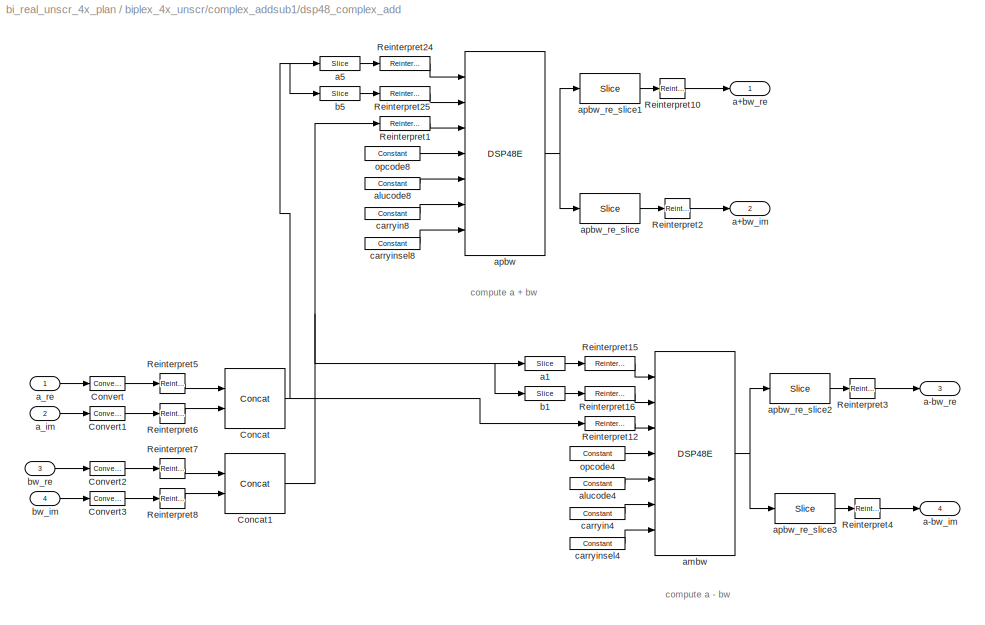
BLOCK [SubSystem] biplex_4x_unscr/complex_addsub1/dsp48_complex_add
  FunctionWithSeparateData = off
  MaskCallbackString = |||
  MaskEnableString = on,on,on,on
  MaskHideContents = off
  MaskIconFrame = on
  MaskIconOpaque = on
  MaskIconRotate = none
  MaskIconUnits = autoscale
  MaskPortRotate = default
  MaskPromptString = 'a' bit width|'a' binary point|'bw' bit width|'bw' binary point
  MaskStyleString = edit,edit,edit,edit
  MaskToolTipString = on,on,on,on
  MaskTunableValueString = on,on,on,on
  MaskValueString = BitWidth|BitWidth-2|BitWidth|BitWidth-2
  MaskVariables = a_bit_width=@1;a_bin_pt=@2;bw_bit_width=@3;bw_bin_pt=@4;
  MaskVisibilityString = on,on,on,on
  MinAlgLoopOccurrences = off
  Opaque = off
  Ports = [4, 4]
  PropExecContextOutsideSubsystem = off
  RTWSystemCode = Auto
  RequestExecContextInheritance = off
  SID = 478
BLOCK [Reference] biplex_4x_unscr/complex_addsub1/dsp48_complex_add/Concat  REF=xbsIndex_r4/Concat
  Ports = [2, 1]
  SID = 483
  SourceBlock = xbsIndex_r4/Concat
  SourceType = Xilinx Bus Concatenator Block
  block_type = concat
  block_version = 11.3
  dbl_ovrd = off
  has_advanced_control = 0
  infoedit = Concatenates two or more inputs.  Output will be cast to an unsigned value with the binary point at zero.
  num_inputs = 2
  sg_icon_stat = 60,60,2,1,white,blue,0,16398980,right,,[ ],[ ]
  sggui_pos = -1,-1,-1,-1
BLOCK [Reference] biplex_4x_unscr/complex_addsub1/dsp48_complex_add/Concat1  REF=xbsIndex_r4/Concat
  Ports = [2, 1]
  SID = 484
  SourceBlock = xbsIndex_r4/Concat
  SourceType = Xilinx Bus Concatenator Block
  block_type = concat
  block_version = 11.3
  dbl_ovrd = off
  has_advanced_control = 0
  infoedit = Concatenates two or more inputs.  Output will be cast to an unsigned value with the binary point at zero.
  num_inputs = 2
  sg_icon_stat = 60,60,2,1,white,blue,0,16398980,right,,[ ],[ ]
  sggui_pos = -1,-1,-1,-1
BLOCK [Reference] biplex_4x_unscr/complex_addsub1/dsp48_complex_add/Convert  REF=xbsIndex_r4/Convert
  Ports = [1, 1]
  SID = 485
  SourceBlock = xbsIndex_r4/Convert
  SourceType = Xilinx Type Converter Block
  arith_type = Signed  (2's comp)
  bin_pt = 24 - (bw_bit_width - bw_bin_pt)
  block_type = convert
  block_version = 11.4
  dbl_ovrd = off
  en = off
  has_advanced_control = 0
  infoedit = Hardware notes: rounding and saturating require hardware resources; truncating and wrapping do not.
  latency = 0
  n_bits = 24
  overflow = Wrap
  pipeline = off
  quantization = Truncate
  sg_icon_stat = 35,14,1,1,white,blue,0,edca21da,right,,[ ],[ ]
  sggui_pos = -1,-1,-1,-1
  xl_area = [0,0,0,0,0,0,0]
  xl_use_area = off
BLOCK [Reference] biplex_4x_unscr/complex_addsub1/dsp48_complex_add/Convert1  REF=xbsIndex_r4/Convert
  Ports = [1, 1]
  SID = 486
  SourceBlock = xbsIndex_r4/Convert
  SourceType = Xilinx Type Converter Block
  arith_type = Signed  (2's comp)
  bin_pt = 24 - (bw_bit_width - bw_bin_pt)
  block_type = convert
  block_version = 11.4
  dbl_ovrd = off
  en = off
  has_advanced_control = 0
  infoedit = Hardware notes: rounding and saturating require hardware resources; truncating and wrapping do not.
  latency = 0
  n_bits = 24
  overflow = Wrap
  pipeline = off
  quantization = Truncate
  sg_icon_stat = 35,14,1,1,white,blue,0,edca21da,right,,[ ],[ ]
  sggui_pos = -1,-1,-1,-1
  xl_area = [0,0,0,0,0,0,0]
  xl_use_area = off
BLOCK [Reference] biplex_4x_unscr/complex_addsub1/dsp48_complex_add/Convert2  REF=xbsIndex_r4/Convert
  Ports = [1, 1]
  SID = 487
  SourceBlock = xbsIndex_r4/Convert
  SourceType = Xilinx Type Converter Block
  arith_type = Signed  (2's comp)
  bin_pt = 24 - (bw_bit_width - bw_bin_pt)
  block_type = convert
  block_version = 11.4
  dbl_ovrd = off
  en = off
  has_advanced_control = 0
  infoedit = Hardware notes: rounding and saturating require hardware resources; truncating and wrapping do not.
  latency = 0
  n_bits = 24
  overflow = Wrap
  pipeline = off
  quantization = Truncate
  sg_icon_stat = 35,14,1,1,white,blue,0,edca21da,right,,[ ],[ ]
  sggui_pos = -1,-1,-1,-1
  xl_area = [0,0,0,0,0,0,0]
  xl_use_area = off
BLOCK [Reference] biplex_4x_unscr/complex_addsub1/dsp48_complex_add/Convert3  REF=xbsIndex_r4/Convert
  Ports = [1, 1]
  SID = 488
  SourceBlock = xbsIndex_r4/Convert
  SourceType = Xilinx Type Converter Block
  arith_type = Signed  (2's comp)
  bin_pt = 24 - (bw_bit_width - bw_bin_pt)
  block_type = convert
  block_version = 11.4
  dbl_ovrd = off
  en = off
  has_advanced_control = 0
  infoedit = Hardware notes: rounding and saturating require hardware resources; truncating and wrapping do not.
  latency = 0
  n_bits = 24
  overflow = Wrap
  pipeline = off
  quantization = Truncate
  sg_icon_stat = 35,14,1,1,white,blue,0,edca21da,right,,[ ],[ ]
  sggui_pos = -1,-1,-1,-1
  xl_area = [0,0,0,0,0,0,0]
  xl_use_area = off
BLOCK [Reference] biplex_4x_unscr/complex_addsub1/dsp48_complex_add/Reinterpret1  REF=xbsIndex_r4/Reinterpret
  Ports = [1, 1]
  SID = 489
  SourceBlock = xbsIndex_r4/Reinterpret
  SourceType = Xilinx Type Reinterpreter Block
  arith_type = Signed  (2's comp)
  bin_pt = 0
  block_type = reinterpret
  block_version = 11.3
  force_arith_type = on
  force_bin_pt = off
  has_advanced_control = 0
  sg_icon_stat = 50,14,1,1,white,blue,0,6b04d0b0,right,,[ ],[ ]
  sggui_pos = -1,-1,-1,-1
BLOCK [Reference] biplex_4x_unscr/complex_addsub1/dsp48_complex_add/Reinterpret10  REF=xbsIndex_r4/Reinterpret
  Ports = [1, 1]
  SID = 490
  SourceBlock = xbsIndex_r4/Reinterpret
  SourceType = Xilinx Type Reinterpreter Block
  arith_type = Signed  (2's comp)
  bin_pt = 24 - (bw_bit_width - bw_bin_pt)
  block_type = reinterpret
  block_version = 11.3
  force_arith_type = on
  force_bin_pt = on
  has_advanced_control = 0
  sg_icon_stat = 25,20,1,1,white,blue,0,6b04d0b0,right,,[ ],[ ]
  sggui_pos = 0,0,372,364
BLOCK [Reference] biplex_4x_unscr/complex_addsub1/dsp48_complex_add/Reinterpret12  REF=xbsIndex_r4/Reinterpret
  Ports = [1, 1]
  SID = 491
  SourceBlock = xbsIndex_r4/Reinterpret
  SourceType = Xilinx Type Reinterpreter Block
  arith_type = Signed  (2's comp)
  bin_pt = 0
  block_type = reinterpret
  block_version = 11.3
  force_arith_type = on
  force_bin_pt = off
  has_advanced_control = 0
  sg_icon_stat = 50,14,1,1,white,blue,0,6b04d0b0,right,,[ ],[ ]
  sggui_pos = -1,-1,-1,-1
BLOCK [Reference] biplex_4x_unscr/complex_addsub1/dsp48_complex_add/Reinterpret15  REF=xbsIndex_r4/Reinterpret
  Ports = [1, 1]
  SID = 492
  SourceBlock = xbsIndex_r4/Reinterpret
  SourceType = Xilinx Type Reinterpreter Block
  arith_type = Signed  (2's comp)
  bin_pt = 0
  block_type = reinterpret
  block_version = 11.3
  force_arith_type = on
  force_bin_pt = off
  has_advanced_control = 0
  sg_icon_stat = 50,14,1,1,white,blue,0,6b04d0b0,right,,[ ],[ ]
  sggui_pos = -1,-1,-1,-1
BLOCK [Reference] biplex_4x_unscr/complex_addsub1/dsp48_complex_add/Reinterpret16  REF=xbsIndex_r4/Reinterpret
  Ports = [1, 1]
  SID = 493
  SourceBlock = xbsIndex_r4/Reinterpret
  SourceType = Xilinx Type Reinterpreter Block
  arith_type = Signed  (2's comp)
  bin_pt = 0
  block_type = reinterpret
  block_version = 11.3
  force_arith_type = on
  force_bin_pt = off
  has_advanced_control = 0
  sg_icon_stat = 50,14,1,1,white,blue,0,6b04d0b0,right,,[ ],[ ]
  sggui_pos = -1,-1,-1,-1
BLOCK [Reference] biplex_4x_unscr/complex_addsub1/dsp48_complex_add/Reinterpret2  REF=xbsIndex_r4/Reinterpret
  Ports = [1, 1]
  SID = 494
  SourceBlock = xbsIndex_r4/Reinterpret
  SourceType = Xilinx Type Reinterpreter Block
  arith_type = Signed  (2's comp)
  bin_pt = 24 - (bw_bit_width - bw_bin_pt)
  block_type = reinterpret
  block_version = 11.3
  force_arith_type = on
  force_bin_pt = on
  has_advanced_control = 0
  sg_icon_stat = 25,20,1,1,white,blue,0,6b04d0b0,right,,[ ],[ ]
  sggui_pos = 0,0,372,364
BLOCK [Reference] biplex_4x_unscr/complex_addsub1/dsp48_complex_add/Reinterpret24  REF=xbsIndex_r4/Reinterpret
  Ports = [1, 1]
  SID = 495
  SourceBlock = xbsIndex_r4/Reinterpret
  SourceType = Xilinx Type Reinterpreter Block
  arith_type = Signed  (2's comp)
  bin_pt = 0
  block_type = reinterpret
  block_version = 11.3
  force_arith_type = on
  force_bin_pt = off
  has_advanced_control = 0
  sg_icon_stat = 50,14,1,1,white,blue,0,6b04d0b0,right,,[ ],[ ]
  sggui_pos = -1,-1,-1,-1
BLOCK [Reference] biplex_4x_unscr/complex_addsub1/dsp48_complex_add/Reinterpret25  REF=xbsIndex_r4/Reinterpret
  Ports = [1, 1]
  SID = 496
  SourceBlock = xbsIndex_r4/Reinterpret
  SourceType = Xilinx Type Reinterpreter Block
  arith_type = Signed  (2's comp)
  bin_pt = 0
  block_type = reinterpret
  block_version = 11.3
  force_arith_type = on
  force_bin_pt = off
  has_advanced_control = 0
  sg_icon_stat = 50,14,1,1,white,blue,0,6b04d0b0,right,,[ ],[ ]
  sggui_pos = -1,-1,-1,-1
BLOCK [Reference] biplex_4x_unscr/complex_addsub1/dsp48_complex_add/Reinterpret3  REF=xbsIndex_r4/Reinterpret
  Ports = [1, 1]
  SID = 497
  SourceBlock = xbsIndex_r4/Reinterpret
  SourceType = Xilinx Type Reinterpreter Block
  arith_type = Signed  (2's comp)
  bin_pt = 24 - (bw_bit_width - bw_bin_pt)
  block_type = reinterpret
  block_version = 11.3
  force_arith_type = on
  force_bin_pt = on
  has_advanced_control = 0
  sg_icon_stat = 25,20,1,1,white,blue,0,6b04d0b0,right,,[ ],[ ]
  sggui_pos = 0,0,372,364
BLOCK [Reference] biplex_4x_unscr/complex_addsub1/dsp48_complex_add/Reinterpret4  REF=xbsIndex_r4/Reinterpret
  Ports = [1, 1]
  SID = 498
  SourceBlock = xbsIndex_r4/Reinterpret
  SourceType = Xilinx Type Reinterpreter Block
  arith_type = Signed  (2's comp)
  bin_pt = 24 - (bw_bit_width - bw_bin_pt)
  block_type = reinterpret
  block_version = 11.3
  force_arith_type = on
  force_bin_pt = on
  has_advanced_control = 0
  sg_icon_stat = 25,20,1,1,white,blue,0,6b04d0b0,right,,[ ],[ ]
  sggui_pos = 0,0,372,364
BLOCK [Reference] biplex_4x_unscr/complex_addsub1/dsp48_complex_add/Reinterpret5  REF=xbsIndex_r4/Reinterpret
  Ports = [1, 1]
  SID = 499
  SourceBlock = xbsIndex_r4/Reinterpret
  SourceType = Xilinx Type Reinterpreter Block
  arith_type = Unsigned
  bin_pt = 0
  block_type = reinterpret
  block_version = 11.3
  force_arith_type = on
  force_bin_pt = on
  has_advanced_control = 0
  sg_icon_stat = 25,20,1,1,white,blue,0,6b04d0b0,right,,[ ],[ ]
  sggui_pos = 0,0,372,364
BLOCK [Reference] biplex_4x_unscr/complex_addsub1/dsp48_complex_add/Reinterpret6  REF=xbsIndex_r4/Reinterpret
  Ports = [1, 1]
  SID = 500
  SourceBlock = xbsIndex_r4/Reinterpret
  SourceType = Xilinx Type Reinterpreter Block
  arith_type = Unsigned
  bin_pt = 0
  block_type = reinterpret
  block_version = 11.3
  force_arith_type = on
  force_bin_pt = on
  has_advanced_control = 0
  sg_icon_stat = 25,20,1,1,white,blue,0,6b04d0b0,right,,[ ],[ ]
  sggui_pos = 0,0,372,364
BLOCK [Reference] biplex_4x_unscr/complex_addsub1/dsp48_complex_add/Reinterpret7  REF=xbsIndex_r4/Reinterpret
  Ports = [1, 1]
  SID = 501
  SourceBlock = xbsIndex_r4/Reinterpret
  SourceType = Xilinx Type Reinterpreter Block
  arith_type = Unsigned
  bin_pt = 0
  block_type = reinterpret
  block_version = 11.3
  force_arith_type = on
  force_bin_pt = on
  has_advanced_control = 0
  sg_icon_stat = 25,20,1,1,white,blue,0,6b04d0b0,right,,[ ],[ ]
  sggui_pos = 0,0,372,364
BLOCK [Reference] biplex_4x_unscr/complex_addsub1/dsp48_complex_add/Reinterpret8  REF=xbsIndex_r4/Reinterpret
  Ports = [1, 1]
  SID = 502
  SourceBlock = xbsIndex_r4/Reinterpret
  SourceType = Xilinx Type Reinterpreter Block
  arith_type = Unsigned
  bin_pt = 0
  block_type = reinterpret
  block_version = 11.3
  force_arith_type = on
  force_bin_pt = on
  has_advanced_control = 0
  sg_icon_stat = 25,20,1,1,white,blue,0,6b04d0b0,right,,[ ],[ ]
  sggui_pos = 0,0,372,364
BLOCK [Outport] biplex_4x_unscr/complex_addsub1/dsp48_complex_add/a+bw_im
  IconDisplay = Port number
  Port = 2
  SID = 522
BLOCK [Outport] biplex_4x_unscr/complex_addsub1/dsp48_complex_add/a+bw_re
  IconDisplay = Port number
  SID = 521
BLOCK [Outport] biplex_4x_unscr/complex_addsub1/dsp48_complex_add/a-bw_im
  IconDisplay = Port number
  Port = 4
  SID = 524
BLOCK [Outport] biplex_4x_unscr/complex_addsub1/dsp48_complex_add/a-bw_re
  IconDisplay = Port number
  Port = 3
  SID = 523
BLOCK [Reference] biplex_4x_unscr/complex_addsub1/dsp48_complex_add/a1  REF=xbsIndex_r4/Slice
  Ports = [1, 1]
  SID = 503
  SourceBlock = xbsIndex_r4/Slice
  SourceType = Xilinx Bit Slice Extractor Block
  base0 = LSB of Input
  base1 = MSB of Input
  bit0 = 18
  bit1 = 0
  block_type = slice
  block_version = 11.3
  boolean_output = off
  dbl_ovrd = off
  has_advanced_control = 0
  mode = Upper Bit Location + Width
  nbits = 30
  sg_icon_stat = 40,14,1,1,white,blue,0,1fd851a7,right,,[ ],[ ]
  sggui_pos = -1,-1,-1,-1
BLOCK [Reference] biplex_4x_unscr/complex_addsub1/dsp48_complex_add/a5  REF=xbsIndex_r4/Slice
  Ports = [1, 1]
  SID = 504
  SourceBlock = xbsIndex_r4/Slice
  SourceType = Xilinx Bit Slice Extractor Block
  base0 = LSB of Input
  base1 = MSB of Input
  bit0 = 18
  bit1 = 0
  block_type = slice
  block_version = 11.3
  boolean_output = off
  dbl_ovrd = off
  has_advanced_control = 0
  mode = Upper Bit Location + Width
  nbits = 30
  sg_icon_stat = 40,14,1,1,white,blue,0,1fd851a7,right,,[ ],[ ]
  sggui_pos = -1,-1,-1,-1
BLOCK [Inport] biplex_4x_unscr/complex_addsub1/dsp48_complex_add/a_im
  IconDisplay = Port number
  Port = 2
  SID = 480
BLOCK [Inport] biplex_4x_unscr/complex_addsub1/dsp48_complex_add/a_re
  IconDisplay = Port number
  SID = 479
BLOCK [Reference] biplex_4x_unscr/complex_addsub1/dsp48_complex_add/alucode4  REF=xbsIndex_r4/Constant
  Ports = [0, 1]
  SID = 505
  SourceBlock = xbsIndex_r4/Constant
  SourceType = Xilinx Constant Block Block
  arith_type = Unsigned
  bin_pt = 0
  block_type = constant
  block_version = 10.1.3
  carry = CIN
  const = 3
  dbl_ovrd = off
  dsp48_infoedit = The use of this block for DSP48 instructions is deprecated.  Please use the Opmode block.
  equ = P=C
  explicit_period = on
  has_advanced_control = 0
  inp1 = P
  inp2 = PCIN>>17
  n_bits = 4
  opr = +
  opselect = C
  period = 1
  sg_icon_stat = 55,12,0,1,white,blue,0,279a71c8,right,,[ ],[ ]
  sggui_pos = 20,20,400,346
BLOCK [Reference] biplex_4x_unscr/complex_addsub1/dsp48_complex_add/alucode8  REF=xbsIndex_r4/Constant
  Ports = [0, 1]
  SID = 506
  SourceBlock = xbsIndex_r4/Constant
  SourceType = Xilinx Constant Block Block
  arith_type = Unsigned
  bin_pt = 0
  block_type = constant
  block_version = 10.1.3
  carry = CIN
  const = 0
  dbl_ovrd = off
  dsp48_infoedit = The use of this block for DSP48 instructions is deprecated.  Please use the Opmode block.
  equ = P=C
  explicit_period = on
  has_advanced_control = 0
  inp1 = P
  inp2 = PCIN>>17
  n_bits = 4
  opr = +
  opselect = C
  period = 1
  sg_icon_stat = 55,12,0,1,white,blue,0,bf4ddd8b,right,,[ ],[ ]
  sggui_pos = 20,20,400,346
BLOCK [Reference] biplex_4x_unscr/complex_addsub1/dsp48_complex_add/ambw  REF=xbsIndex_r4/DSP48E
  Ports = [7, 1]
  SID = 507
  SourceBlock = xbsIndex_r4/DSP48E
  SourceType = Xilinx DSP48E Block
  addsub_mode = TWO24
  block_type = dsp48e
  block_version = 10.1.3
  en_a1 = off
  en_a2 = off
  en_all = off
  en_alumode = off
  en_b1 = off
  en_b2 = off
  en_c = off
  en_carry_in = off
  en_ctrl = off
  en_mult = off
  en_multcarryin = off
  en_p = off
  has_advanced_control = 0
  mask_from_creg = off
  pattern = '000000000000'
  pattern_from_creg = off
  pattern_mask = '3FFFFFFFFFFF'
  pipeline_a = 1
  pipeline_acout = 1
  pipeline_alumode = on
  pipeline_b = 1
  pipeline_bcout = 1
  pipeline_c = on
  pipeline_carryin = on
  pipeline_carryinsel = on
  pipeline_mult = on
  pipeline_opmode = on
  pipeline_p = on
  reset_preg = off
  rst_a = off
  rst_all = off
  rst_alumode = off
  rst_b = off
  rst_c = off
  rst_carry_in = off
  rst_ctrl = off
  rst_mult = off
  rst_p = off
  sel_rounding_mask = Select mask
  sg_icon_stat = 80,204,7,1,white,blue,0,51584ea8,right,,[ ],[ ]
  sggui_pos = 113,168,544,804
  use_a = Direct from A Port
  use_acout = off
  use_b = Direct from B Port
  use_bcout = off
  use_carrycascin = off
  use_carrycascout = off
  use_carryout = off
  use_creg = on
  use_multsignin = off
  use_multsignout = off
  use_op = off
  use_overflow = off
  use_patternbdetect = off
  use_patterndetect = off
  use_pcin = off
  use_pcout = off
  use_synth_model = off
  use_underflow = off
  xl_area = [0,0,0,0,0,0,0]
  xl_use_area = off
  xl_useadderonly = off
BLOCK [Reference] biplex_4x_unscr/complex_addsub1/dsp48_complex_add/apbw  REF=xbsIndex_r4/DSP48E
  Ports = [7, 1]
  SID = 508
  SourceBlock = xbsIndex_r4/DSP48E
  SourceType = Xilinx DSP48E Block
  addsub_mode = TWO24
  block_type = dsp48e
  block_version = 10.1.3
  en_a1 = off
  en_a2 = off
  en_all = off
  en_alumode = off
  en_b1 = off
  en_b2 = off
  en_c = off
  en_carry_in = off
  en_ctrl = off
  en_mult = off
  en_multcarryin = off
  en_p = off
  has_advanced_control = 0
  mask_from_creg = off
  pattern = '000000000000'
  pattern_from_creg = off
  pattern_mask = '3FFFFFFFFFFF'
  pipeline_a = 1
  pipeline_acout = 1
  pipeline_alumode = on
  pipeline_b = 1
  pipeline_bcout = 1
  pipeline_c = on
  pipeline_carryin = on
  pipeline_carryinsel = on
  pipeline_mult = on
  pipeline_opmode = on
  pipeline_p = on
  reset_preg = off
  rst_a = off
  rst_all = off
  rst_alumode = off
  rst_b = off
  rst_c = off
  rst_carry_in = off
  rst_ctrl = off
  rst_mult = off
  rst_p = off
  sel_rounding_mask = Select mask
  sg_icon_stat = 80,204,7,1,white,blue,0,51584ea8,right,,[ ],[ ]
  sggui_pos = 42,25,544,804
  use_a = Direct from A Port
  use_acout = off
  use_b = Direct from B Port
  use_bcout = off
  use_carrycascin = off
  use_carrycascout = off
  use_carryout = off
  use_creg = on
  use_multsignin = off
  use_multsignout = off
  use_op = off
  use_overflow = off
  use_patternbdetect = off
  use_patterndetect = off
  use_pcin = off
  use_pcout = off
  use_synth_model = off
  use_underflow = off
  xl_area = [0,0,0,0,0,0,0]
  xl_use_area = off
  xl_useadderonly = off
BLOCK [Reference] biplex_4x_unscr/complex_addsub1/dsp48_complex_add/apbw_re_slice  REF=xbsIndex_r4/Slice
  Ports = [1, 1]
  SID = 509
  SourceBlock = xbsIndex_r4/Slice
  SourceType = Xilinx Bit Slice Extractor Block
  base0 = LSB of Input
  base1 = MSB of Input
  bit0 = 0
  bit1 = 0
  block_type = slice
  block_version = 11.3
  boolean_output = off
  dbl_ovrd = off
  has_advanced_control = 0
  mode = Lower Bit Location + Width
  nbits = 24
  sg_icon_stat = 60,30,1,1,white,blue,0,1fd851a7,right,,[ ],[ ]
  sggui_pos = -1,-1,-1,-1
BLOCK [Reference] biplex_4x_unscr/complex_addsub1/dsp48_complex_add/apbw_re_slice1  REF=xbsIndex_r4/Slice
  Ports = [1, 1]
  SID = 510
  SourceBlock = xbsIndex_r4/Slice
  SourceType = Xilinx Bit Slice Extractor Block
  base0 = LSB of Input
  base1 = MSB of Input
  bit0 = 24
  bit1 = 0
  block_type = slice
  block_version = 11.3
  boolean_output = off
  dbl_ovrd = off
  has_advanced_control = 0
  mode = Upper Bit Location + Width
  nbits = 24
  sg_icon_stat = 60,30,1,1,white,blue,0,1fd851a7,right,,[ ],[ ]
  sggui_pos = -1,-1,-1,-1
BLOCK [Reference] biplex_4x_unscr/complex_addsub1/dsp48_complex_add/apbw_re_slice2  REF=xbsIndex_r4/Slice
  Ports = [1, 1]
  SID = 511
  SourceBlock = xbsIndex_r4/Slice
  SourceType = Xilinx Bit Slice Extractor Block
  base0 = LSB of Input
  base1 = MSB of Input
  bit0 = 24
  bit1 = 0
  block_type = slice
  block_version = 11.3
  boolean_output = off
  dbl_ovrd = off
  has_advanced_control = 0
  mode = Upper Bit Location + Width
  nbits = 24
  sg_icon_stat = 60,30,1,1,white,blue,0,1fd851a7,right,,[ ],[ ]
  sggui_pos = -1,-1,-1,-1
BLOCK [Reference] biplex_4x_unscr/complex_addsub1/dsp48_complex_add/apbw_re_slice3  REF=xbsIndex_r4/Slice
  Ports = [1, 1]
  SID = 512
  SourceBlock = xbsIndex_r4/Slice
  SourceType = Xilinx Bit Slice Extractor Block
  base0 = LSB of Input
  base1 = MSB of Input
  bit0 = 0
  bit1 = 0
  block_type = slice
  block_version = 11.3
  boolean_output = off
  dbl_ovrd = off
  has_advanced_control = 0
  mode = Lower Bit Location + Width
  nbits = 24
  sg_icon_stat = 60,30,1,1,white,blue,0,1fd851a7,right,,[ ],[ ]
  sggui_pos = -1,-1,-1,-1
BLOCK [Reference] biplex_4x_unscr/complex_addsub1/dsp48_complex_add/b1  REF=xbsIndex_r4/Slice
  Ports = [1, 1]
  SID = 513
  SourceBlock = xbsIndex_r4/Slice
  SourceType = Xilinx Bit Slice Extractor Block
  base0 = LSB of Input
  base1 = MSB of Input
  bit0 = 0
  bit1 = 0
  block_type = slice
  block_version = 11.3
  boolean_output = off
  dbl_ovrd = off
  has_advanced_control = 0
  mode = Lower Bit Location + Width
  nbits = 18
  sg_icon_stat = 40,14,1,1,white,blue,0,1fd851a7,right,,[ ],[ ]
  sggui_pos = -1,-1,-1,-1
BLOCK [Reference] biplex_4x_unscr/complex_addsub1/dsp48_complex_add/b5  REF=xbsIndex_r4/Slice
  Ports = [1, 1]
  SID = 514
  SourceBlock = xbsIndex_r4/Slice
  SourceType = Xilinx Bit Slice Extractor Block
  base0 = LSB of Input
  base1 = MSB of Input
  bit0 = 0
  bit1 = 0
  block_type = slice
  block_version = 11.3
  boolean_output = off
  dbl_ovrd = off
  has_advanced_control = 0
  mode = Lower Bit Location + Width
  nbits = 18
  sg_icon_stat = 40,14,1,1,white,blue,0,1fd851a7,right,,[ ],[ ]
  sggui_pos = -1,-1,-1,-1
BLOCK [Inport] biplex_4x_unscr/complex_addsub1/dsp48_complex_add/bw_im
  IconDisplay = Port number
  Port = 4
  SID = 482
BLOCK [Inport] biplex_4x_unscr/complex_addsub1/dsp48_complex_add/bw_re
  IconDisplay = Port number
  Port = 3
  SID = 481
BLOCK [Reference] biplex_4x_unscr/complex_addsub1/dsp48_complex_add/carryin4  REF=xbsIndex_r4/Constant
  Ports = [0, 1]
  SID = 515
  SourceBlock = xbsIndex_r4/Constant
  SourceType = Xilinx Constant Block Block
  arith_type = Unsigned
  bin_pt = 0
  block_type = constant
  block_version = 10.1.3
  carry = CIN
  const = 0
  dbl_ovrd = off
  dsp48_infoedit = The use of this block for DSP48 instructions is deprecated.  Please use the Opmode block.
  equ = P=C
  explicit_period = on
  has_advanced_control = 0
  inp1 = P
  inp2 = PCIN>>17
  n_bits = 1
  opr = +
  opselect = C
  period = 1
  sg_icon_stat = 55,12,0,1,white,blue,0,bf4ddd8b,right,,[ ],[ ]
  sggui_pos = 20,20,400,346
BLOCK [Reference] biplex_4x_unscr/complex_addsub1/dsp48_complex_add/carryin8  REF=xbsIndex_r4/Constant
  Ports = [0, 1]
  SID = 516
  SourceBlock = xbsIndex_r4/Constant
  SourceType = Xilinx Constant Block Block
  arith_type = Unsigned
  bin_pt = 0
  block_type = constant
  block_version = 10.1.3
  carry = CIN
  const = 0
  dbl_ovrd = off
  dsp48_infoedit = The use of this block for DSP48 instructions is deprecated.  Please use the Opmode block.
  equ = P=C
  explicit_period = on
  has_advanced_control = 0
  inp1 = P
  inp2 = PCIN>>17
  n_bits = 1
  opr = +
  opselect = C
  period = 1
  sg_icon_stat = 55,12,0,1,white,blue,0,bf4ddd8b,right,,[ ],[ ]
  sggui_pos = 20,20,400,346
BLOCK [Reference] biplex_4x_unscr/complex_addsub1/dsp48_complex_add/carryinsel4  REF=xbsIndex_r4/Constant
  Ports = [0, 1]
  SID = 517
  SourceBlock = xbsIndex_r4/Constant
  SourceType = Xilinx Constant Block Block
  arith_type = Unsigned
  bin_pt = 0
  block_type = constant
  block_version = 10.1.3
  carry = CIN
  const = 0
  dbl_ovrd = off
  dsp48_infoedit = The use of this block for DSP48 instructions is deprecated.  Please use the Opmode block.
  equ = P=C
  explicit_period = on
  has_advanced_control = 0
  inp1 = P
  inp2 = PCIN>>17
  n_bits = 3
  opr = +
  opselect = C
  period = 1
  sg_icon_stat = 55,12,0,1,white,blue,0,bf4ddd8b,right,,[ ],[ ]
  sggui_pos = 20,20,400,346
BLOCK [Reference] biplex_4x_unscr/complex_addsub1/dsp48_complex_add/carryinsel8  REF=xbsIndex_r4/Constant
  Ports = [0, 1]
  SID = 518
  SourceBlock = xbsIndex_r4/Constant
  SourceType = Xilinx Constant Block Block
  arith_type = Unsigned
  bin_pt = 0
  block_type = constant
  block_version = 10.1.3
  carry = CIN
  const = 0
  dbl_ovrd = off
  dsp48_infoedit = The use of this block for DSP48 instructions is deprecated.  Please use the Opmode block.
  equ = P=C
  explicit_period = on
  has_advanced_control = 0
  inp1 = P
  inp2 = PCIN>>17
  n_bits = 3
  opr = +
  opselect = C
  period = 1
  sg_icon_stat = 55,12,0,1,white,blue,0,bf4ddd8b,right,,[ ],[ ]
  sggui_pos = 20,20,400,346
BLOCK [Reference] biplex_4x_unscr/complex_addsub1/dsp48_complex_add/opcode4  REF=xbsIndex_r4/Constant
  Ports = [0, 1]
  SID = 519
  SourceBlock = xbsIndex_r4/Constant
  SourceType = Xilinx Constant Block Block
  arith_type = Unsigned
  bin_pt = 0
  block_type = constant
  block_version = 10.1.3
  carry = CIN
  const = 51
  dbl_ovrd = off
  dsp48_infoedit = The use of this block for DSP48 instructions is deprecated.  Please use the Opmode block.
  equ = P=C
  explicit_period = on
  has_advanced_control = 0
  inp1 = P
  inp2 = PCIN>>17
  n_bits = 7
  opr = +
  opselect = C
  period = 1
  sg_icon_stat = 55,14,0,1,white,blue,0,b654bd3a,right,,[ ],[ ]
  sggui_pos = 660,25,473,439
BLOCK [Reference] biplex_4x_unscr/complex_addsub1/dsp48_complex_add/opcode8  REF=xbsIndex_r4/Constant
  Ports = [0, 1]
  SID = 520
  SourceBlock = xbsIndex_r4/Constant
  SourceType = Xilinx Constant Block Block
  arith_type = Unsigned
  bin_pt = 0
  block_type = constant
  block_version = 10.1.3
  carry = CIN
  const = 15
  dbl_ovrd = off
  dsp48_infoedit = The use of this block for DSP48 instructions is deprecated.  Please use the Opmode block.
  equ = P=C
  explicit_period = on
  has_advanced_control = 0
  inp1 = P
  inp2 = PCIN>>17
  n_bits = 7
  opr = +
  opselect = C
  period = 1
  sg_icon_stat = 55,14,0,1,white,blue,0,1164c07c,right,,[ ],[ ]
  sggui_pos = 20,20,400,346
BLOCK [Reference] biplex_4x_unscr/complex_addsub1/ri_to_c  REF=casper_library/Misc/ri_to_c  (lib defined in mdl_138b2fc3435f, mdl_4ed325b712b3, +2 more)
  FunctionWithSeparateData = off
  GeneratePreprocessorConditionals = off
  Ports = [2, 1]
  RTWMemSecDataConstants = Inherit from model
  RTWMemSecDataInternal = Inherit from model
  RTWMemSecDataParameters = Inherit from model
  RTWMemSecFuncExecute = Inherit from model
  RTWMemSecFuncInitTerm = Inherit from model
  SID = 525
  ShowPortLabels = FromPortIcon
  SourceBlock = casper_library/Misc/ri_to_c
  SourceType = ri_to_c
  SystemSampleTime = -1
  UserData = DataTag8
  UserDataPersistent = on
BLOCK [Reference] biplex_4x_unscr/complex_addsub1/ri_to_c1  REF=casper_library/Misc/ri_to_c  (lib defined in mdl_138b2fc3435f, mdl_4ed325b712b3, +2 more)
  FunctionWithSeparateData = off
  GeneratePreprocessorConditionals = off
  Ports = [2, 1]
  RTWMemSecDataConstants = Inherit from model
  RTWMemSecDataInternal = Inherit from model
  RTWMemSecDataParameters = Inherit from model
  RTWMemSecFuncExecute = Inherit from model
  RTWMemSecFuncInitTerm = Inherit from model
  SID = 526
  ShowPortLabels = FromPortIcon
  SourceBlock = casper_library/Misc/ri_to_c
  SourceType = ri_to_c
  SystemSampleTime = -1
  UserData = DataTag9
  UserDataPersistent = on
BLOCK [Reference] biplex_4x_unscr/double_delay_bram_fast  REF=monroe_library/double_delay_bram_fast  (lib defined in mdl_6e3ec1066caf, mdl_8e463b7c25be, +1 more)
  FunctionWithSeparateData = off
  GeneratePreprocessorConditionals = off
  Ports = [2, 2]
  RTWMemSecDataConstants = Inherit from model
  RTWMemSecDataInternal = Inherit from model
  RTWMemSecDataParameters = Inherit from model
  RTWMemSecFuncExecute = Inherit from model
  RTWMemSecFuncInitTerm = Inherit from model
  SID = 464
  ShowPortLabels = FromPortIcon
  SourceBlock = monroe_library/double_delay_bram_fast
  SystemSampleTime = -1
  bram_latency = bram_latency
  delay_len = 2^(FFTSize-1)
BLOCK [SubSystem] biplex_4x_unscr/dual_bit_reverse
  AncestorBlock = casper_library/Reorder/reorder
  AttributesFormatString = order=2
  FunctionWithSeparateData = off
  MaskCallbackString = |
  MaskEnableString = on,on
  MaskHideContents = off
  MaskIconFrame = on
  MaskIconOpaque = on
  MaskIconRotate = none
  MaskIconUnits = autoscale
  MaskPortRotate = default
  MaskPromptString = BRAM Latency|Data In Latency
  MaskSelfModifiable = on
  MaskStyleString = edit,edit
  MaskToolTipString = on,on
  MaskTunableValueString = on,on
  MaskType = reorder
  MaskValueString = bram_latency|reorder_din_latency
  MaskVariables = bram_latency=@1;din_latency=@2;
  MaskVisibilityString = on,on
  MinAlgLoopOccurrences = off
  Opaque = off
  Ports = [3, 3]
  PropExecContextOutsideSubsystem = off
  RTWSystemCode = Auto
  RequestExecContextInheritance = off
  SID = 362
  UserData = DataTag10
  UserDataPersistent = on
BLOCK [Reference] biplex_4x_unscr/dual_bit_reverse/Concat1  REF=xbsIndex_r4/Concat
  Ports = [2, 1]
  SID = 362:1625
  SourceBlock = xbsIndex_r4/Concat
  SourceType = Xilinx Bus Concatenator Block
  block_type = concat
  dbl_ovrd = off
  has_advanced_control = 0
  infoedit = Concatenates two or more inputs.  Output will be cast to an unsigned value with the binary point at zero.
  num_inputs = 2
  sg_icon_stat = 35,31,2,1,white,blue,0,16398980,right,,[ ],[ ]
  sg_mask_display = fprintf('','COMMENT: begin icon graphics');\npatch([0 35 35 0 0 ],[0 0 31 31 0 ],[0.77 0.82 0.91 ]);\nplot([0 35 35 0 0 ],[0 0 31 31 0 ]);\npatch([8.1 13.88 17.88 21.88 25.88 17.88 12.1 8.1 ],[19.44 19.44 23.44 19.44 23.44 23.44 23.44 19.44 ],[1 1 1 ]);\npatch([12.1 17.88 13.88 8.1 12.1 ],[15.44 15.44 19.44 19.44 15.44 ],[0.931 0.946 0.973 ]);\npatch([8.1 13.88 17.88 12.1 8.1 ],[11.44 11.44 15.44 ...<+407ch>  <repeated x5 — deduplicated; at blocks: Concat1, Concat2, Concat, Concat3>
  sggui_pos = -1,-1,-1,-1
BLOCK [Reference] biplex_4x_unscr/dual_bit_reverse/Concat2  REF=xbsIndex_r4/Concat
  Ports = [2, 1]
  SID = 362:1623
  SourceBlock = xbsIndex_r4/Concat
  SourceType = Xilinx Bus Concatenator Block
  block_type = concat
  dbl_ovrd = off
  has_advanced_control = 0
  infoedit = Concatenates two or more inputs.  Output will be cast to an unsigned value with the binary point at zero.
  num_inputs = 2
  sg_icon_stat = 35,31,2,1,white,blue,0,16398980,right,,[ ],[ ]
  sggui_pos = -1,-1,-1,-1
BLOCK [Reference] biplex_4x_unscr/dual_bit_reverse/Constant  REF=xbsIndex_r4/Constant
  Ports = [0, 1]
  SID = 362:1562
  SourceBlock = xbsIndex_r4/Constant
  SourceType = Xilinx Constant Block Block
  arith_type = Boolean
  bin_pt = 0
  block_type = constant
  block_version = 9.1.01
  carry = CIN
  const = 1
  dbl_ovrd = off
  dsp48_infoedit = The use of this block for DSP48 instructions is deprecated.  Please use the Opmode block.
  equ = P=C
  explicit_period = on
  has_advanced_control = 0
  inp1 = P
  inp2 = PCIN>>17
  n_bits = 1
  opr = +
  opselect = C
  period = 1
  sg_icon_stat = 40,20,0,1,white,blue,0,1c72b5be,right,,[ ],[ ]
  sg_mask_display = fprintf('','COMMENT: begin icon graphics');\npatch([0 40 40 0 0 ],[0 0 20 20 0 ],[0.77 0.82 0.91 ]);\nplot([0 40 40 0 0 ],[0 0 20 20 0 ]);\npatch([15.55 18.44 20.44 22.44 24.44 20.44 17.55 15.55 ],[12.22 12.22 14.22 12.22 14.22 14.22 14.22 12.22 ],[1 1 1 ]);\npatch([17.55 20.44 18.44 15.55 17.55 ],[10.22 10.22 12.22 12.22 10.22 ],[0.931 0.946 0.973 ]);\npatch([15.55 18.44 20.44 17.55 15.55 ],[8.22...<+317ch>  <repeated x7 — deduplicated; at blocks: Constant, Constant1, Constant5, Constant6, Constant7>
  sggui_pos = -1,-1,-1,-1
BLOCK [Reference] biplex_4x_unscr/dual_bit_reverse/Constant1  REF=xbsIndex_r4/Constant
  Ports = [0, 1]
  SID = 362:1626
  SourceBlock = xbsIndex_r4/Constant
  SourceType = Xilinx Constant Block Block
  arith_type = Boolean
  bin_pt = 0
  block_type = constant
  block_version = 9.1.01
  carry = CIN
  const = 0
  dbl_ovrd = off
  dsp48_infoedit = The use of this block for DSP48 instructions is deprecated.  Please use the Opmode block.
  equ = P=C
  explicit_period = on
  has_advanced_control = 0
  inp1 = P
  inp2 = PCIN>>17
  n_bits = 1
  opr = +
  opselect = C
  period = 1
  sg_icon_stat = 40,20,0,1,white,blue,0,bf4ddd8b,right,,[ ],[ ]
  sggui_pos = -1,-1,-1,-1
BLOCK [Reference] biplex_4x_unscr/dual_bit_reverse/Constant5  REF=xbsIndex_r4/Constant
  Ports = [0, 1]
  SID = 362:1624
  SourceBlock = xbsIndex_r4/Constant
  SourceType = Xilinx Constant Block Block
  arith_type = Boolean
  bin_pt = 0
  block_type = constant
  block_version = 9.1.01
  carry = CIN
  const = 1
  dbl_ovrd = off
  dsp48_infoedit = The use of this block for DSP48 instructions is deprecated.  Please use the Opmode block.
  equ = P=C
  explicit_period = on
  has_advanced_control = 0
  inp1 = P
  inp2 = PCIN>>17
  n_bits = 1
  opr = +
  opselect = C
  period = 1
  sg_icon_stat = 40,20,0,1,white,blue,0,1c72b5be,right,,[ ],[ ]
  sggui_pos = -1,-1,-1,-1
BLOCK [Reference] biplex_4x_unscr/dual_bit_reverse/Counter  REF=xbsIndex_r4/Counter
  Ports = [1, 1]
  SID = 362:1563
  SourceBlock = xbsIndex_r4/Counter
  SourceType = Xilinx Counter Block
  arith_type = Unsigned
  bin_pt = 0
  block_type = counter
  block_version = 10.1.3
  cnt_by_val = 1
  cnt_to = 1023
  cnt_type = Free Running
  dbl_ovrd = off
  en = off
  explicit_period = on
  has_advanced_control = 0
  implementation = Fabric
  infoedit = Hardware notes: Free running counters are the least expensive in hardware.  A count limited counter is implemented by combining a counter with a comparator.
  load_pin = off
  n_bits = FFTSize
  operation = Up
  period = 1
  rst = on
  sg_icon_stat = 50,54,1,1,white,blue,0,803eba70,right,,[ ],[ ]
  sg_mask_display = fprintf('','COMMENT: begin icon graphics');\npatch([0 50 50 0 0 ],[0 0 54 54 0 ],[0.77 0.82 0.91 ]);\nplot([0 50 50 0 0 ],[0 0 54 54 0 ]);\npatch([9.425 19.54 26.54 33.54 40.54 26.54 16.425 9.425 ],[34.77 34.77 41.77 34.77 41.77 41.77 41.77 34.77 ],[1 1 1 ]);\npatch([16.425 26.54 19.54 9.425 16.425 ],[27.77 27.77 34.77 34.77 27.77 ],[0.931 0.946 0.973 ]);\npatch([9.425 19.54 26.54 16.425 9.425 ],[...<+397ch>  <repeated x6 — deduplicated; at blocks: Counter, Counter1>
  sggui_pos = -1,-1,-1,-1
  start_count = 0
  use_behavioral_HDL = off
  use_rpm = off
  xl_area = [0,0,0,0,0,0,0]
  xl_use_area = off
BLOCK [Reference] biplex_4x_unscr/dual_bit_reverse/Counter1  REF=xbsIndex_r4/Counter
  Ports = [1, 1]
  SID = 362:1589
  SourceBlock = xbsIndex_r4/Counter
  SourceType = Xilinx Counter Block
  arith_type = Unsigned
  bin_pt = 0
  block_type = counter
  block_version = 10.1.3
  cnt_by_val = 1
  cnt_to = 1023
  cnt_type = Free Running
  dbl_ovrd = off
  en = off
  explicit_period = on
  has_advanced_control = 0
  implementation = Fabric
  infoedit = Hardware notes: Free running counters are the least expensive in hardware.  A count limited counter is implemented by combining a counter with a comparator.
  load_pin = off
  n_bits = FFTSize
  operation = Down
  period = 1
  rst = on
  sg_icon_stat = 50,54,1,1,white,blue,0,d47ba05d,right,,[ ],[ ]
  sggui_pos = -1,-1,-1,-1
  start_count = (2^FFTSize)-1
  use_behavioral_HDL = off
  use_rpm = off
  xl_area = [0,0,0,0,0,0,0]
  xl_use_area = off
BLOCK [Reference] biplex_4x_unscr/dual_bit_reverse/Dual Port RAM  REF=xbsIndex_r4/Dual Port RAM
  Ports = [6, 2]
  SID = 362:1615
  SourceBlock = xbsIndex_r4/Dual Port RAM
  SourceType = Xilinx Dual Port Random Access Memory Block
  block_type = dpram
  dbl_ovrd = off
  depth = 2^(FFTSize)
  distributed_mem = Block RAM
  en_a = off
  en_b = off
  has_advanced_control = 0
  initVector = sin(pi*(0:15)/16)
  init_a = 0
  init_b = 0
  latency = bram_latency
  optimize = Area
  rst_a = off
  rst_b = off
  sg_icon_stat = 75,165,6,2,white,blue,0,28af736d,right,,[ ],[ ]
  sg_mask_display = fprintf('','COMMENT: begin icon graphics');\npatch([0 75 75 0 0 ],[0 0 165 165 0 ],[0.77 0.82 0.91 ]);\nplot([0 75 75 0 0 ],[0 0 165 165 0 ]);\npatch([14.75 29.2 39.2 49.2 59.2 39.2 24.75 14.75 ],[93.1 93.1 103.1 93.1 103.1 103.1 103.1 93.1 ],[1 1 1 ]);\npatch([24.75 39.2 29.2 14.75 24.75 ],[83.1 83.1 93.1 93.1 83.1 ],[0.931 0.946 0.973 ]);\npatch([14.75 29.2 39.2 24.75 14.75 ],[73.1 73.1 83.1 83....<+615ch>
  sggui_pos = 476,56,442,439
  use_rpm = on
  write_mode_A = Read Before Write
  write_mode_B = Read Before Write
  xl_area = [0,0,0,0,0,0,0]
  xl_use_area = off
BLOCK [Reference] biplex_4x_unscr/dual_bit_reverse/Inverter  REF=xbsIndex_r4/Inverter
  Ports = [1, 1]
  SID = 362:1590
  SourceBlock = xbsIndex_r4/Inverter
  SourceType = Xilinx Inverter Block
  block_type = inv
  dbl_ovrd = off
  en = off
  has_advanced_control = 0
  infoedit = Bitwise logical negation (one's complement) operator.
  latency = 0
  sg_icon_stat = 55,26,1,1,white,blue,0,267846e5,right,,[ ],[ ]
  sg_mask_display = fprintf('','COMMENT: begin icon graphics');\npatch([0 55 55 0 0 ],[0 0 26 26 0 ],[0.77 0.82 0.91 ]);\nplot([0 55 55 0 0 ],[0 0 26 26 0 ]);\npatch([20.325 24.66 27.66 30.66 33.66 27.66 23.325 20.325 ],[16.33 16.33 19.33 16.33 19.33 19.33 19.33 16.33 ],[1 1 1 ]);\npatch([23.325 27.66 24.66 20.325 23.325 ],[13.33 13.33 16.33 16.33 13.33 ],[0.931 0.946 0.973 ]);\npatch([20.325 24.66 27.66 23.325 20.32...<+322ch>
  sggui_pos = -1,-1,-1,-1
  xl_area = [0,0,0,0,0,0,0]
  xl_use_area = off
BLOCK [Reference] biplex_4x_unscr/dual_bit_reverse/Mux  REF=xbsIndex_r4/Mux
  Ports = [3, 1]
  SID = 362:1564
  SourceBlock = xbsIndex_r4/Mux
  SourceType = Xilinx Bus Multiplexer Block
  arith_type = Unsigned
  bin_pt = 14
  block_type = mux
  block_version = 10.1.3
  dbl_ovrd = off
  en = off
  has_advanced_control = 0
  inputs = 2
  latency = 0
  n_bits = 16
  overflow = Wrap
  precision = Full
  quantization = Truncate
  sg_icon_stat = 25,68,3,1,white,blue,3,eb98d690,right,,[ ],[ ]
  sg_mask_display = fprintf('','COMMENT: begin icon graphics');\npatch([0 25 25 0 0 ],[0 9.71429 58.2857 68 0 ],[0.77 0.82 0.91 ]);\nplot([0 25 25 0 0 ],[0 9.71429 58.2857 68 0 ]);\npatch([5.325 9.66 12.66 15.66 18.66 12.66 8.325 5.325 ],[37.33 37.33 40.33 37.33 40.33 40.33 40.33 37.33 ],[1 1 1 ]);\npatch([8.325 12.66 9.66 5.325 8.325 ],[34.33 34.33 37.33 37.33 34.33 ],[0.931 0.946 0.973 ]);\npatch([5.325 9.66 12.66 ...<+483ch>  <repeated x4 — deduplicated; at blocks: Mux, Mux1>
  sggui_pos = -1,-1,-1,-1
  xl_area = [0,0,0,0,0,0,0]
  xl_use_area = off
BLOCK [Reference] biplex_4x_unscr/dual_bit_reverse/Mux1  REF=xbsIndex_r4/Mux
  Ports = [3, 1]
  SID = 362:1591
  SourceBlock = xbsIndex_r4/Mux
  SourceType = Xilinx Bus Multiplexer Block
  arith_type = Unsigned
  bin_pt = 14
  block_type = mux
  block_version = 10.1.3
  dbl_ovrd = off
  en = off
  has_advanced_control = 0
  inputs = 2
  latency = 0
  n_bits = 16
  overflow = Wrap
  precision = Full
  quantization = Truncate
  sg_icon_stat = 25,68,3,1,white,blue,3,eb98d690,right,,[ ],[ ]
  sggui_pos = -1,-1,-1,-1
  xl_area = [0,0,0,0,0,0,0]
  xl_use_area = off
BLOCK [Reference] biplex_4x_unscr/dual_bit_reverse/Slice1  REF=xbsIndex_r4/Slice
  Ports = [1, 1]
  SID = 362:1565
  SourceBlock = xbsIndex_r4/Slice
  SourceType = Xilinx Bit Slice Extractor Block
  base0 = LSB of Input
  base1 = MSB of Input
  bit0 = 0
  bit1 = 0
  block_type = slice
  block_version = 10.1.3
  boolean_output = off
  dbl_ovrd = off
  has_advanced_control = 0
  infoedit = Extracts a given range of bits from each input sample and presents it at the output.  The output type is ordinarily unsigned with binary point at zero, but can be Boolean when the slice is one bit wide.<P><P>Hardware notes: In hardware this block costs nothing.  <repeated x6 — deduplicated; at blocks: Slice1, Slice3, Slice2>
  mode = Upper Bit Location + Width
  nbits = 1
  sg_icon_stat = 30,16,1,1,white,blue,0,1fd851a7,right,,[ ],[ ]
  sg_mask_display = fprintf('','COMMENT: begin icon graphics');\npatch([0 30 30 0 0 ],[0 0 16 16 0 ],[0.77 0.82 0.91 ]);\nplot([0 30 30 0 0 ],[0 0 16 16 0 ]);\npatch([10.55 13.44 15.44 17.44 19.44 15.44 12.55 10.55 ],[10.22 10.22 12.22 10.22 12.22 12.22 12.22 10.22 ],[1 1 1 ]);\npatch([12.55 15.44 13.44 10.55 12.55 ],[8.22 8.22 10.22 10.22 8.22 ],[0.931 0.946 0.973 ]);\npatch([10.55 13.44 15.44 12.55 10.55 ],[6.22 6....<+318ch>  <repeated x5 — deduplicated; at blocks: Slice1, Slice2, Slice4>
  sggui_pos = -1,-1,-1,-1
BLOCK [Reference] biplex_4x_unscr/dual_bit_reverse/Slice2  REF=xbsIndex_r4/Slice
  Ports = [1, 1]
  SID = 362:1566
  SourceBlock = xbsIndex_r4/Slice
  SourceType = Xilinx Bit Slice Extractor Block
  base0 = LSB of Input
  base1 = MSB of Input
  bit0 = 0
  bit1 = 0
  block_type = slice
  block_version = 10.1.3
  boolean_output = off
  dbl_ovrd = off
  has_advanced_control = 0
  mode = Lower Bit Location + Width
  nbits = FFTSize-1
  sg_icon_stat = 30,16,1,1,white,blue,0,1fd851a7,right,,[ ],[ ]
  sggui_pos = -1,-1,-1,-1
BLOCK [Reference] biplex_4x_unscr/dual_bit_reverse/Slice3  REF=xbsIndex_r4/Slice
  Ports = [1, 1]
  SID = 362:1592
  SourceBlock = xbsIndex_r4/Slice
  SourceType = Xilinx Bit Slice Extractor Block
  base0 = LSB of Input
  base1 = MSB of Input
  bit0 = 0
  bit1 = 0
  block_type = slice
  block_version = 10.1.3
  boolean_output = off
  dbl_ovrd = off
  has_advanced_control = 0
  mode = Upper Bit Location + Width
  nbits = 1
  sg_icon_stat = 30,16,1,1,white,blue,0,1fd851a7,right,,[ ],[ ]
  sg_mask_display = fprintf('','COMMENT: begin icon graphics');\npatch([0 30 30 0 0 ],[0 0 16 16 0 ],[0.77 0.82 0.91 ]);\nplot([0 30 30 0 0 ],[0 0 16 16 0 ]);\npatch([10.55 13.44 15.44 17.44 19.44 15.44 12.55 10.55 ],[10.22 10.22 12.22 10.22 12.22 12.22 12.22 10.22 ],[1 1 1 ]);\npatch([12.55 15.44 13.44 10.55 12.55 ],[8.22 8.22 10.22 10.22 8.22 ],[0.931 0.946 0.973 ]);\npatch([10.55 13.44 15.44 12.55 10.55 ],[6.22 6....<+316ch>  <repeated x3 — deduplicated; at blocks: Slice3, Slice1>
  sggui_pos = -1,-1,-1,-1
BLOCK [Reference] biplex_4x_unscr/dual_bit_reverse/Slice4  REF=xbsIndex_r4/Slice
  Ports = [1, 1]
  SID = 362:1593
  SourceBlock = xbsIndex_r4/Slice
  SourceType = Xilinx Bit Slice Extractor Block
  base0 = LSB of Input
  base1 = MSB of Input
  bit0 = 0
  bit1 = 0
  block_type = slice
  block_version = 10.1.3
  boolean_output = off
  dbl_ovrd = off
  has_advanced_control = 0
  mode = Lower Bit Location + Width
  nbits = FFTSize-1
  sg_icon_stat = 30,16,1,1,white,blue,0,1fd851a7,right,,[ ],[ ]
  sggui_pos = -1,-1,-1,-1
BLOCK [SubSystem] biplex_4x_unscr/dual_bit_reverse/bit_reverse
  FunctionWithSeparateData = off
  MaskEnableString = on
  MaskHideContents = off
  MaskIconFrame = on
  MaskIconOpaque = on
  MaskIconRotate = none
  MaskIconUnits = autoscale
  MaskInitialization = config.source=str2func('bit_reverse_draw');\nconfig.toplevel=gcb;\nconfig.debug=0;\nconfig.depend={'bit_reverse_draw.m'};\n%xBlock(config,{nBits,1});
  MaskPortRotate = default
  MaskPromptString = # bits?
  MaskStyleString = edit
  MaskToolTipString = on
  MaskTunableValueString = on
  MaskValueString = FFTSize-1
  MaskVariables = nBits=@1;
  MaskVisibilityString = on
  MinAlgLoopOccurrences = off
  Opaque = off
  Ports = [1, 1]
  PropExecContextOutsideSubsystem = off
  RTWSystemCode = Auto
  RequestExecContextInheritance = off
  SID = 362:1567
  UserData = DataTag11
  UserDataPersistent = on
BLOCK [Reference] biplex_4x_unscr/dual_bit_reverse/bit_reverse/Concat  REF=xbsIndex_r4/Concat
  Ports = [9, 1]
  SID = 362:1569
  SourceBlock = xbsIndex_r4/Concat
  SourceType = Xilinx Bus Concatenator Block
  block_type = concat
  dbl_ovrd = off
  has_advanced_control = 0
  infoedit = Concatenates two or more inputs.  Output will be cast to an unsigned value with the binary point at zero.
  num_inputs = 9
  sg_icon_stat = 60,60,9,1,white,blue,0,d6469a80,right,,[ ],[ ]
  sg_mask_display = fprintf('','COMMENT: begin icon graphics');\npatch([0 60 60 0 0 ],[0 0 60 60 0 ],[0.77 0.82 0.91 ]);\nplot([0 60 60 0 0 ],[0 0 60 60 0 ]);\npatch([12.2 23.76 31.76 39.76 47.76 31.76 20.2 12.2 ],[38.88 38.88 46.88 38.88 46.88 46.88 46.88 38.88 ],[1 1 1 ]);\npatch([20.2 31.76 23.76 12.2 20.2 ],[30.88 30.88 38.88 38.88 30.88 ],[0.931 0.946 0.973 ]);\npatch([12.2 23.76 31.76 20.2 12.2 ],[22.88 22.88 3...<+431ch>
  sggui_pos = -1,-1,-1,-1
BLOCK [Reference] biplex_4x_unscr/dual_bit_reverse/bit_reverse/Slice  REF=xbsIndex_r4/Slice
  Ports = [1, 1]
  SID = 362:1570
  SourceBlock = xbsIndex_r4/Slice
  SourceType = Xilinx Bit Slice Extractor Block
  base0 = MSB of Input
  base1 = MSB of Input
  bit0 = 0
  bit1 = 0
  block_type = slice
  boolean_output = off
  dbl_ovrd = off
  has_advanced_control = 0
  mode = Lower Bit Location + Width
  nbits = 1
  sg_icon_stat = 60,32,1,1,white,blue,0,1fd851a7,right,,[ ],[ ]
  sg_mask_display = fprintf('','COMMENT: begin icon graphics');\npatch([0 60 60 0 0 ],[0 0 32 32 0 ],[0.77 0.82 0.91 ]);\nplot([0 60 60 0 0 ],[0 0 32 32 0 ]);\npatch([21.1 26.88 30.88 34.88 38.88 30.88 25.1 21.1 ],[20.44 20.44 24.44 20.44 24.44 24.44 24.44 20.44 ],[1 1 1 ]);\npatch([25.1 30.88 26.88 21.1 25.1 ],[16.44 16.44 20.44 20.44 16.44 ],[0.931 0.946 0.973 ]);\npatch([21.1 26.88 30.88 25.1 21.1 ],[12.44 12.44 1...<+315ch>  <repeated x18 — deduplicated; at blocks: Slice, Slice1, Slice2, Slice3, Slice4, Slice5, Slice6, Slice7, Slice8>
  sggui_pos = -1,-1,-1,-1
BLOCK [Reference] biplex_4x_unscr/dual_bit_reverse/bit_reverse/Slice1  REF=xbsIndex_r4/Slice
  Ports = [1, 1]
  SID = 362:1571
  SourceBlock = xbsIndex_r4/Slice
  SourceType = Xilinx Bit Slice Extractor Block
  base0 = MSB of Input
  base1 = MSB of Input
  bit0 = 0
  bit1 = 1
  block_type = slice
  boolean_output = off
  dbl_ovrd = off
  has_advanced_control = 0
  mode = Lower Bit Location + Width
  nbits = 1
  sg_icon_stat = 60,32,1,1,white,blue,0,1fd851a7,right,,[ ],[ ]
  sggui_pos = -1,-1,-1,-1
BLOCK [Reference] biplex_4x_unscr/dual_bit_reverse/bit_reverse/Slice2  REF=xbsIndex_r4/Slice
  Ports = [1, 1]
  SID = 362:1572
  SourceBlock = xbsIndex_r4/Slice
  SourceType = Xilinx Bit Slice Extractor Block
  base0 = MSB of Input
  base1 = MSB of Input
  bit0 = 0
  bit1 = 2
  block_type = slice
  boolean_output = off
  dbl_ovrd = off
  has_advanced_control = 0
  mode = Lower Bit Location + Width
  nbits = 1
  sg_icon_stat = 60,32,1,1,white,blue,0,1fd851a7,right,,[ ],[ ]
  sggui_pos = -1,-1,-1,-1
BLOCK [Reference] biplex_4x_unscr/dual_bit_reverse/bit_reverse/Slice3  REF=xbsIndex_r4/Slice
  Ports = [1, 1]
  SID = 362:1573
  SourceBlock = xbsIndex_r4/Slice
  SourceType = Xilinx Bit Slice Extractor Block
  base0 = MSB of Input
  base1 = MSB of Input
  bit0 = 0
  bit1 = 3
  block_type = slice
  boolean_output = off
  dbl_ovrd = off
  has_advanced_control = 0
  mode = Lower Bit Location + Width
  nbits = 1
  sg_icon_stat = 60,32,1,1,white,blue,0,1fd851a7,right,,[ ],[ ]
  sggui_pos = -1,-1,-1,-1
BLOCK [Reference] biplex_4x_unscr/dual_bit_reverse/bit_reverse/Slice4  REF=xbsIndex_r4/Slice
  Ports = [1, 1]
  SID = 362:1574
  SourceBlock = xbsIndex_r4/Slice
  SourceType = Xilinx Bit Slice Extractor Block
  base0 = MSB of Input
  base1 = MSB of Input
  bit0 = 0
  bit1 = 4
  block_type = slice
  boolean_output = off
  dbl_ovrd = off
  has_advanced_control = 0
  mode = Lower Bit Location + Width
  nbits = 1
  sg_icon_stat = 60,32,1,1,white,blue,0,1fd851a7,right,,[ ],[ ]
  sggui_pos = -1,-1,-1,-1
BLOCK [Reference] biplex_4x_unscr/dual_bit_reverse/bit_reverse/Slice5  REF=xbsIndex_r4/Slice
  Ports = [1, 1]
  SID = 362:1575
  SourceBlock = xbsIndex_r4/Slice
  SourceType = Xilinx Bit Slice Extractor Block
  base0 = MSB of Input
  base1 = MSB of Input
  bit0 = 0
  bit1 = 5
  block_type = slice
  boolean_output = off
  dbl_ovrd = off
  has_advanced_control = 0
  mode = Lower Bit Location + Width
  nbits = 1
  sg_icon_stat = 60,32,1,1,white,blue,0,1fd851a7,right,,[ ],[ ]
  sggui_pos = -1,-1,-1,-1
BLOCK [Reference] biplex_4x_unscr/dual_bit_reverse/bit_reverse/Slice6  REF=xbsIndex_r4/Slice
  Ports = [1, 1]
  SID = 362:1576
  SourceBlock = xbsIndex_r4/Slice
  SourceType = Xilinx Bit Slice Extractor Block
  base0 = MSB of Input
  base1 = MSB of Input
  bit0 = 0
  bit1 = 6
  block_type = slice
  boolean_output = off
  dbl_ovrd = off
  has_advanced_control = 0
  mode = Lower Bit Location + Width
  nbits = 1
  sg_icon_stat = 60,32,1,1,white,blue,0,1fd851a7,right,,[ ],[ ]
  sggui_pos = -1,-1,-1,-1
BLOCK [Reference] biplex_4x_unscr/dual_bit_reverse/bit_reverse/Slice7  REF=xbsIndex_r4/Slice
  Ports = [1, 1]
  SID = 362:1577
  SourceBlock = xbsIndex_r4/Slice
  SourceType = Xilinx Bit Slice Extractor Block
  base0 = MSB of Input
  base1 = MSB of Input
  bit0 = 0
  bit1 = 7
  block_type = slice
  boolean_output = off
  dbl_ovrd = off
  has_advanced_control = 0
  mode = Lower Bit Location + Width
  nbits = 1
  sg_icon_stat = 60,32,1,1,white,blue,0,1fd851a7,right,,[ ],[ ]
  sggui_pos = -1,-1,-1,-1
BLOCK [Reference] biplex_4x_unscr/dual_bit_reverse/bit_reverse/Slice8  REF=xbsIndex_r4/Slice
  Ports = [1, 1]
  SID = 362:1578
  SourceBlock = xbsIndex_r4/Slice
  SourceType = Xilinx Bit Slice Extractor Block
  base0 = MSB of Input
  base1 = MSB of Input
  bit0 = 0
  bit1 = 8
  block_type = slice
  boolean_output = off
  dbl_ovrd = off
  has_advanced_control = 0
  mode = Lower Bit Location + Width
  nbits = 1
  sg_icon_stat = 60,32,1,1,white,blue,0,1fd851a7,right,,[ ],[ ]
  sggui_pos = -1,-1,-1,-1
BLOCK [Inport] biplex_4x_unscr/dual_bit_reverse/bit_reverse/in
  IconDisplay = Port number
  SID = 362:1568
BLOCK [Outport] biplex_4x_unscr/dual_bit_reverse/bit_reverse/out
  IconDisplay = Port number
  SID = 362:1579
BLOCK [SubSystem] biplex_4x_unscr/dual_bit_reverse/bit_reverse1
  FunctionWithSeparateData = off
  MaskEnableString = on
  MaskHideContents = off
  MaskIconFrame = on
  MaskIconOpaque = on
  MaskIconRotate = none
  MaskIconUnits = autoscale
  MaskInitialization = config.source=str2func('bit_reverse_draw');\nconfig.toplevel=gcb;\nconfig.debug=0;\nconfig.depend={'bit_reverse_draw.m'};\n%xBlock(config,{nBits,1});
  MaskPortRotate = default
  MaskPromptString = # bits?
  MaskStyleString = edit
  MaskToolTipString = on
  MaskTunableValueString = on
  MaskValueString = FFTSize-1
  MaskVariables = nBits=@1;
  MaskVisibilityString = on
  MinAlgLoopOccurrences = off
  Opaque = off
  Ports = [1, 1]
  PropExecContextOutsideSubsystem = off
  RTWSystemCode = Auto
  RequestExecContextInheritance = off
  SID = 362:1594
  UserData = DataTag12
  UserDataPersistent = on
BLOCK [Reference] biplex_4x_unscr/dual_bit_reverse/bit_reverse1/Concat  REF=xbsIndex_r4/Concat
  Ports = [9, 1]
  SID = 362:1596
  SourceBlock = xbsIndex_r4/Concat
  SourceType = Xilinx Bus Concatenator Block
  block_type = concat
  dbl_ovrd = off
  has_advanced_control = 0
  infoedit = Concatenates two or more inputs.  Output will be cast to an unsigned value with the binary point at zero.
  num_inputs = 9
  sg_icon_stat = 60,60,9,1,white,blue,0,d6469a80,right,,[ ],[ ]
  sg_mask_display = fprintf('','COMMENT: begin icon graphics');\npatch([0 60 60 0 0 ],[0 0 60 60 0 ],[0.77 0.82 0.91 ]);\nplot([0 60 60 0 0 ],[0 0 60 60 0 ]);\npatch([12.2 23.76 31.76 39.76 47.76 31.76 20.2 12.2 ],[38.88 38.88 46.88 38.88 46.88 46.88 46.88 38.88 ],[1 1 1 ]);\npatch([20.2 31.76 23.76 12.2 20.2 ],[30.88 30.88 38.88 38.88 30.88 ],[0.931 0.946 0.973 ]);\npatch([12.2 23.76 31.76 20.2 12.2 ],[22.88 22.88 3...<+431ch>
  sggui_pos = -1,-1,-1,-1
BLOCK [Reference] biplex_4x_unscr/dual_bit_reverse/bit_reverse1/Slice  REF=xbsIndex_r4/Slice
  Ports = [1, 1]
  SID = 362:1597
  SourceBlock = xbsIndex_r4/Slice
  SourceType = Xilinx Bit Slice Extractor Block
  base0 = MSB of Input
  base1 = MSB of Input
  bit0 = 0
  bit1 = 0
  block_type = slice
  boolean_output = off
  dbl_ovrd = off
  has_advanced_control = 0
  mode = Lower Bit Location + Width
  nbits = 1
  sg_icon_stat = 60,32,1,1,white,blue,0,1fd851a7,right,,[ ],[ ]
  sggui_pos = -1,-1,-1,-1
BLOCK [Reference] biplex_4x_unscr/dual_bit_reverse/bit_reverse1/Slice1  REF=xbsIndex_r4/Slice
  Ports = [1, 1]
  SID = 362:1598
  SourceBlock = xbsIndex_r4/Slice
  SourceType = Xilinx Bit Slice Extractor Block
  base0 = MSB of Input
  base1 = MSB of Input
  bit0 = 0
  bit1 = 1
  block_type = slice
  boolean_output = off
  dbl_ovrd = off
  has_advanced_control = 0
  mode = Lower Bit Location + Width
  nbits = 1
  sg_icon_stat = 60,32,1,1,white,blue,0,1fd851a7,right,,[ ],[ ]
  sggui_pos = -1,-1,-1,-1
BLOCK [Reference] biplex_4x_unscr/dual_bit_reverse/bit_reverse1/Slice2  REF=xbsIndex_r4/Slice
  Ports = [1, 1]
  SID = 362:1599
  SourceBlock = xbsIndex_r4/Slice
  SourceType = Xilinx Bit Slice Extractor Block
  base0 = MSB of Input
  base1 = MSB of Input
  bit0 = 0
  bit1 = 2
  block_type = slice
  boolean_output = off
  dbl_ovrd = off
  has_advanced_control = 0
  mode = Lower Bit Location + Width
  nbits = 1
  sg_icon_stat = 60,32,1,1,white,blue,0,1fd851a7,right,,[ ],[ ]
  sggui_pos = -1,-1,-1,-1
BLOCK [Reference] biplex_4x_unscr/dual_bit_reverse/bit_reverse1/Slice3  REF=xbsIndex_r4/Slice
  Ports = [1, 1]
  SID = 362:1600
  SourceBlock = xbsIndex_r4/Slice
  SourceType = Xilinx Bit Slice Extractor Block
  base0 = MSB of Input
  base1 = MSB of Input
  bit0 = 0
  bit1 = 3
  block_type = slice
  boolean_output = off
  dbl_ovrd = off
  has_advanced_control = 0
  mode = Lower Bit Location + Width
  nbits = 1
  sg_icon_stat = 60,32,1,1,white,blue,0,1fd851a7,right,,[ ],[ ]
  sggui_pos = -1,-1,-1,-1
BLOCK [Reference] biplex_4x_unscr/dual_bit_reverse/bit_reverse1/Slice4  REF=xbsIndex_r4/Slice
  Ports = [1, 1]
  SID = 362:1601
  SourceBlock = xbsIndex_r4/Slice
  SourceType = Xilinx Bit Slice Extractor Block
  base0 = MSB of Input
  base1 = MSB of Input
  bit0 = 0
  bit1 = 4
  block_type = slice
  boolean_output = off
  dbl_ovrd = off
  has_advanced_control = 0
  mode = Lower Bit Location + Width
  nbits = 1
  sg_icon_stat = 60,32,1,1,white,blue,0,1fd851a7,right,,[ ],[ ]
  sggui_pos = -1,-1,-1,-1
BLOCK [Reference] biplex_4x_unscr/dual_bit_reverse/bit_reverse1/Slice5  REF=xbsIndex_r4/Slice
  Ports = [1, 1]
  SID = 362:1602
  SourceBlock = xbsIndex_r4/Slice
  SourceType = Xilinx Bit Slice Extractor Block
  base0 = MSB of Input
  base1 = MSB of Input
  bit0 = 0
  bit1 = 5
  block_type = slice
  boolean_output = off
  dbl_ovrd = off
  has_advanced_control = 0
  mode = Lower Bit Location + Width
  nbits = 1
  sg_icon_stat = 60,32,1,1,white,blue,0,1fd851a7,right,,[ ],[ ]
  sggui_pos = -1,-1,-1,-1
BLOCK [Reference] biplex_4x_unscr/dual_bit_reverse/bit_reverse1/Slice6  REF=xbsIndex_r4/Slice
  Ports = [1, 1]
  SID = 362:1603
  SourceBlock = xbsIndex_r4/Slice
  SourceType = Xilinx Bit Slice Extractor Block
  base0 = MSB of Input
  base1 = MSB of Input
  bit0 = 0
  bit1 = 6
  block_type = slice
  boolean_output = off
  dbl_ovrd = off
  has_advanced_control = 0
  mode = Lower Bit Location + Width
  nbits = 1
  sg_icon_stat = 60,32,1,1,white,blue,0,1fd851a7,right,,[ ],[ ]
  sggui_pos = -1,-1,-1,-1
BLOCK [Reference] biplex_4x_unscr/dual_bit_reverse/bit_reverse1/Slice7  REF=xbsIndex_r4/Slice
  Ports = [1, 1]
  SID = 362:1604
  SourceBlock = xbsIndex_r4/Slice
  SourceType = Xilinx Bit Slice Extractor Block
  base0 = MSB of Input
  base1 = MSB of Input
  bit0 = 0
  bit1 = 7
  block_type = slice
  boolean_output = off
  dbl_ovrd = off
  has_advanced_control = 0
  mode = Lower Bit Location + Width
  nbits = 1
  sg_icon_stat = 60,32,1,1,white,blue,0,1fd851a7,right,,[ ],[ ]
  sggui_pos = -1,-1,-1,-1
BLOCK [Reference] biplex_4x_unscr/dual_bit_reverse/bit_reverse1/Slice8  REF=xbsIndex_r4/Slice
  Ports = [1, 1]
  SID = 362:1605
  SourceBlock = xbsIndex_r4/Slice
  SourceType = Xilinx Bit Slice Extractor Block
  base0 = MSB of Input
  base1 = MSB of Input
  bit0 = 0
  bit1 = 8
  block_type = slice
  boolean_output = off
  dbl_ovrd = off
  has_advanced_control = 0
  mode = Lower Bit Location + Width
  nbits = 1
  sg_icon_stat = 60,32,1,1,white,blue,0,1fd851a7,right,,[ ],[ ]
  sggui_pos = -1,-1,-1,-1
BLOCK [Inport] biplex_4x_unscr/dual_bit_reverse/bit_reverse1/in
  IconDisplay = Port number
  SID = 362:1595
BLOCK [Outport] biplex_4x_unscr/dual_bit_reverse/bit_reverse1/out
  IconDisplay = Port number
  SID = 362:1606
BLOCK [Reference] biplex_4x_unscr/dual_bit_reverse/delay_din0  REF=xbsIndex_r4/Delay
  Ports = [1, 1]
  SID = 362:1581
  SourceBlock = xbsIndex_r4/Delay
  SourceType = Xilinx Delay Block
  block_type = delay
  block_version = 9.1.01
  dbl_ovrd = off
  en = off
  has_advanced_control = 0
  infoedit = Hardware notes: A delay line is a chain, each link of which is an SRL16 followed by a flip-flop.
  latency = din_latency
  reg_retiming = off
  sg_icon_stat = 40,20,1,1,white,blue,0,24450e6f,right,,[ ],[ ]
  sg_mask_display = fprintf('','COMMENT: begin icon graphics');\npatch([0 40 40 0 0 ],[0 0 20 20 0 ],[0.77 0.82 0.91 ]);\nplot([0 40 40 0 0 ],[0 0 20 20 0 ]);\npatch([15.55 18.44 20.44 22.44 24.44 20.44 17.55 15.55 ],[12.22 12.22 14.22 12.22 14.22 14.22 14.22 12.22 ],[1 1 1 ]);\npatch([17.55 20.44 18.44 15.55 17.55 ],[10.22 10.22 12.22 12.22 10.22 ],[0.931 0.946 0.973 ]);\npatch([15.55 18.44 20.44 17.55 15.55 ],[8.22...<+324ch>
  sggui_pos = -1,-1,-1,-1
  xl_area = [0, 0, 0, 0, 0, 0, 0]
  xl_use_area = off
BLOCK [Reference] biplex_4x_unscr/dual_bit_reverse/delay_din1  REF=xbsIndex_r4/Delay
  Ports = [1, 1]
  SID = 362:1608
  SourceBlock = xbsIndex_r4/Delay
  SourceType = Xilinx Delay Block
  block_type = delay
  block_version = 9.1.01
  dbl_ovrd = off
  en = off
  has_advanced_control = 0
  infoedit = Hardware notes: A delay line is a chain, each link of which is an SRL16 followed by a flip-flop.
  latency = din_latency
  reg_retiming = off
  sg_icon_stat = 40,20,1,1,white,blue,0,24450e6f,right,,[ ],[ ]
  sg_mask_display = fprintf('','COMMENT: begin icon graphics');\npatch([0 40 40 0 0 ],[0 0 20 20 0 ],[0.77 0.82 0.91 ]);\nplot([0 40 40 0 0 ],[0 0 20 20 0 ]);\npatch([15.55 18.44 20.44 22.44 24.44 20.44 17.55 15.55 ],[12.22 12.22 14.22 12.22 14.22 14.22 14.22 12.22 ],[1 1 1 ]);\npatch([17.55 20.44 18.44 15.55 17.55 ],[10.22 10.22 12.22 12.22 10.22 ],[0.931 0.946 0.973 ]);\npatch([15.55 18.44 20.44 17.55 15.55 ],[8.22...<+324ch>
  sggui_pos = -1,-1,-1,-1
  xl_area = [0, 0, 0, 0, 0, 0, 0]
  xl_use_area = off
BLOCK [Inport] biplex_4x_unscr/dual_bit_reverse/din0
  IconDisplay = Port number
  Port = 2
  SID = 362:1561
BLOCK [Inport] biplex_4x_unscr/dual_bit_reverse/din1
  IconDisplay = Port number
  Port = 3
  SID = 362:1587
BLOCK [Outport] biplex_4x_unscr/dual_bit_reverse/dout0
  IconDisplay = Port number
  Port = 2
  SID = 362:1585
BLOCK [Outport] biplex_4x_unscr/dual_bit_reverse/dout1
  IconDisplay = Port number
  Port = 3
  SID = 362:1612
BLOCK [Reference] biplex_4x_unscr/dual_bit_reverse/post_sync_delay  REF=xbsIndex_r4/Delay
  Ports = [1, 1]
  SID = 362:1582
  SourceBlock = xbsIndex_r4/Delay
  SourceType = Xilinx Delay Block
  block_type = delay
  block_version = 9.1.01
  dbl_ovrd = off
  en = off
  has_advanced_control = 0
  infoedit = Hardware notes: A delay line is a chain, each link of which is an SRL16 followed by a flip-flop.
  latency = bram_latency
  reg_retiming = off
  sg_icon_stat = 20,42,1,1,white,blue,0,83e6bb61,right,,[ ],[ ]
  sg_mask_display = fprintf('','COMMENT: begin icon graphics');\npatch([0 20 20 0 0 ],[0 0 42 42 0 ],[0.77 0.82 0.91 ]);\nplot([0 20 20 0 0 ],[0 0 42 42 0 ]);\npatch([5.55 8.44 10.44 12.44 14.44 10.44 7.55 5.55 ],[23.22 23.22 25.22 23.22 25.22 25.22 25.22 23.22 ],[1 1 1 ]);\npatch([7.55 10.44 8.44 5.55 7.55 ],[21.22 21.22 23.22 23.22 21.22 ],[0.931 0.946 0.973 ]);\npatch([5.55 8.44 10.44 7.55 5.55 ],[19.22 19.22 21.2...<+318ch>
  sggui_pos = -1,-1,-1,-1
  xl_area = [0, 0, 0, 0, 0, 0, 0]
  xl_use_area = off
BLOCK [Reference] biplex_4x_unscr/dual_bit_reverse/post_sync_delay1  REF=xbsIndex_r4/Delay
  Ports = [1, 1]
  SID = 362:1613
  SourceBlock = xbsIndex_r4/Delay
  SourceType = Xilinx Delay Block
  block_type = delay
  block_version = 9.1.01
  dbl_ovrd = off
  en = off
  has_advanced_control = 0
  infoedit = Hardware notes: A delay line is a chain, each link of which is an SRL16 followed by a flip-flop.
  latency = din_latency
  reg_retiming = off
  sg_icon_stat = 20,42,1,1,white,blue,0,24450e6f,right,,[ ],[ ]
  sg_mask_display = fprintf('','COMMENT: begin icon graphics');\npatch([0 20 20 0 0 ],[0 0 42 42 0 ],[0.77 0.82 0.91 ]);\nplot([0 20 20 0 0 ],[0 0 42 42 0 ]);\npatch([5.55 8.44 10.44 12.44 14.44 10.44 7.55 5.55 ],[23.22 23.22 25.22 23.22 25.22 25.22 25.22 23.22 ],[1 1 1 ]);\npatch([7.55 10.44 8.44 5.55 7.55 ],[21.22 21.22 23.22 23.22 21.22 ],[0.931 0.946 0.973 ]);\npatch([5.55 8.44 10.44 7.55 5.55 ],[19.22 19.22 21.2...<+318ch>
  sggui_pos = -1,-1,-1,-1
  xl_area = [0, 0, 0, 0, 0, 0, 0]
  xl_use_area = off
BLOCK [Inport] biplex_4x_unscr/dual_bit_reverse/sync
  IconDisplay = Port number
  SID = 362:1560
BLOCK [Reference] biplex_4x_unscr/dual_bit_reverse/sync_delay_fast  REF=monroe_library/sync_delay_fast  (lib defined in mdl_6e3ec1066caf, mdl_8e463b7c25be, +1 more)
  FunctionWithSeparateData = off
  GeneratePreprocessorConditionals = off
  Ports = [1, 1]
  RTWMemSecDataConstants = Inherit from model
  RTWMemSecDataInternal = Inherit from model
  RTWMemSecDataParameters = Inherit from model
  RTWMemSecFuncExecute = Inherit from model
  RTWMemSecFuncInitTerm = Inherit from model
  SID = 362:1583
  ShowPortLabels = FromPortIcon
  SourceBlock = monroe_library/sync_delay_fast
  SystemSampleTime = -1
  delay_len = 2^(FFTSize-1)
BLOCK [Outport] biplex_4x_unscr/dual_bit_reverse/sync_out
  IconDisplay = Port number
  SID = 362:1584
BLOCK [Inport] biplex_4x_unscr/even
  IconDisplay = Port number
  SID = 37
BLOCK [SubSystem] biplex_4x_unscr/mirror_spectrum
  FunctionWithSeparateData = off
  MaskHideContents = off
  MinAlgLoopOccurrences = off
  Opaque = off
  Ports = [9, 5]
  PropExecContextOutsideSubsystem = off
  RTWSystemCode = Auto
  RequestExecContextInheritance = off
  SID = 202
BLOCK [Reference] biplex_4x_unscr/mirror_spectrum/Delay1  REF=xbsIndex_r4/Delay
  Ports = [1, 1]
  SID = 212
  SourceBlock = xbsIndex_r4/Delay
  SourceType = Xilinx Delay Block
  block_type = delay
  block_version = 9.1.01
  dbl_ovrd = off
  en = off
  has_advanced_control = 0
  infoedit = Hardware notes: A delay line is a chain, each link of which is an SRL16 followed by a flip-flop.
  latency = 2
  reg_retiming = off
  sg_icon_stat = 45,46,1,1,white,blue,0,85ce9542,right,,[ ],[ ]
  sg_mask_display = fprintf('','COMMENT: begin icon graphics');\npatch([0 45 45 0 0 ],[0 0 46 46 0 ],[0.77 0.82 0.91 ]);\nplot([0 45 45 0 0 ],[0 0 46 46 0 ]);\npatch([8.65 17.32 23.32 29.32 35.32 23.32 14.65 8.65 ],[29.66 29.66 35.66 29.66 35.66 35.66 35.66 29.66 ],[1 1 1 ]);\npatch([14.65 23.32 17.32 8.65 14.65 ],[23.66 23.66 29.66 29.66 23.66 ],[0.931 0.946 0.973 ]);\npatch([8.65 17.32 23.32 14.65 8.65 ],[17.66 17....<+326ch>
  sggui_pos = -1,-1,-1,-1
  xl_area = [0, 0, 0, 0, 0, 0, 0]
  xl_use_area = off
BLOCK [Reference] biplex_4x_unscr/mirror_spectrum/Delay2  REF=xbsIndex_r4/Delay
  Ports = [1, 1]
  SID = 213
  SourceBlock = xbsIndex_r4/Delay
  SourceType = Xilinx Delay Block
  block_type = delay
  block_version = 9.1.01
  dbl_ovrd = off
  en = off
  has_advanced_control = 0
  infoedit = Hardware notes: A delay line is a chain, each link of which is an SRL16 followed by a flip-flop.
  latency = 1
  reg_retiming = off
  sg_icon_stat = 45,46,1,1,white,blue,0,07b98262,right,,[ ],[ ]
  sg_mask_display = fprintf('','COMMENT: begin icon graphics');\npatch([0 45 45 0 0 ],[0 0 46 46 0 ],[0.77 0.82 0.91 ]);\nplot([0 45 45 0 0 ],[0 0 46 46 0 ]);\npatch([8.65 17.32 23.32 29.32 35.32 23.32 14.65 8.65 ],[29.66 29.66 35.66 29.66 35.66 35.66 35.66 29.66 ],[1 1 1 ]);\npatch([14.65 23.32 17.32 8.65 14.65 ],[23.66 23.66 29.66 29.66 23.66 ],[0.931 0.946 0.973 ]);\npatch([8.65 17.32 23.32 14.65 8.65 ],[17.66 17....<+328ch>  <repeated x19 — deduplicated; at blocks: Delay2, Delay3, Delay4, Delay5, Delay6, Delay10, Delay11, Delay12, Delay13, Delay7, Delay8, Delay9>
  sggui_pos = -1,-1,-1,-1
  xl_area = [0, 0, 0, 0, 0, 0, 0]
  xl_use_area = off
BLOCK [Reference] biplex_4x_unscr/mirror_spectrum/Delay3  REF=xbsIndex_r4/Delay
  Ports = [1, 1]
  SID = 214
  SourceBlock = xbsIndex_r4/Delay
  SourceType = Xilinx Delay Block
  block_type = delay
  block_version = 9.1.01
  dbl_ovrd = off
  en = off
  has_advanced_control = 0
  infoedit = Hardware notes: A delay line is a chain, each link of which is an SRL16 followed by a flip-flop.
  latency = bram_latency - 1 + 1 + 3
  reg_retiming = off
  sg_icon_stat = 45,46,1,1,white,blue,0,aa5bc30d,right,,[ ],[ ]
  sggui_pos = -1,-1,-1,-1
  xl_area = [0, 0, 0, 0, 0, 0, 0]
  xl_use_area = off
BLOCK [Reference] biplex_4x_unscr/mirror_spectrum/Delay4  REF=xbsIndex_r4/Delay
  Ports = [1, 1]
  SID = 215
  SourceBlock = xbsIndex_r4/Delay
  SourceType = Xilinx Delay Block
  block_type = delay
  block_version = 9.1.01
  dbl_ovrd = off
  en = off
  has_advanced_control = 0
  infoedit = Hardware notes: A delay line is a chain, each link of which is an SRL16 followed by a flip-flop.
  latency = bram_latency - 1 + 1 + 3
  reg_retiming = off
  sg_icon_stat = 45,46,1,1,white,blue,0,aa5bc30d,right,,[ ],[ ]
  sggui_pos = -1,-1,-1,-1
  xl_area = [0, 0, 0, 0, 0, 0, 0]
  xl_use_area = off
BLOCK [Reference] biplex_4x_unscr/mirror_spectrum/Delay5  REF=xbsIndex_r4/Delay
  Ports = [1, 1]
  SID = 216
  SourceBlock = xbsIndex_r4/Delay
  SourceType = Xilinx Delay Block
  block_type = delay
  block_version = 9.1.01
  dbl_ovrd = off
  en = off
  has_advanced_control = 0
  infoedit = Hardware notes: A delay line is a chain, each link of which is an SRL16 followed by a flip-flop.
  latency = bram_latency - 1 + 1 + 3
  reg_retiming = off
  sg_icon_stat = 45,46,1,1,white,blue,0,aa5bc30d,right,,[ ],[ ]
  sggui_pos = -1,-1,-1,-1
  xl_area = [0, 0, 0, 0, 0, 0, 0]
  xl_use_area = off
BLOCK [Reference] biplex_4x_unscr/mirror_spectrum/Delay6  REF=xbsIndex_r4/Delay
  Ports = [1, 1]
  SID = 217
  SourceBlock = xbsIndex_r4/Delay
  SourceType = Xilinx Delay Block
  block_type = delay
  block_version = 9.1.01
  dbl_ovrd = off
  en = off
  has_advanced_control = 0
  infoedit = Hardware notes: A delay line is a chain, each link of which is an SRL16 followed by a flip-flop.
  latency = bram_latency - 1 + 1 + 3
  reg_retiming = off
  sg_icon_stat = 45,46,1,1,white,blue,0,aa5bc30d,right,,[ ],[ ]
  sggui_pos = -1,-1,-1,-1
  xl_area = [0, 0, 0, 0, 0, 0, 0]
  xl_use_area = off
BLOCK [Reference] biplex_4x_unscr/mirror_spectrum/Mux  REF=xbsIndex_r4/Mux
  Ports = [3, 1]
  SID = 218
  SourceBlock = xbsIndex_r4/Mux
  SourceType = Xilinx Bus Multiplexer Block
  arith_type = Signed  (2's comp)
  bin_pt = 2
  block_type = mux
  block_version = 9.1.01
  dbl_ovrd = off
  en = off
  has_advanced_control = 0
  inputs = 2
  latency = 0
  n_bits = 8
  overflow = Wrap
  precision = Full
  quantization = Truncate
  sg_icon_stat = 15,50,3,1,white,blue,3,eb98d690,right,,[ ],[ ]
  sg_mask_display = fprintf('','COMMENT: begin icon graphics');\npatch([0 15 15 0 0 ],[0 7.14286 42.8571 50 0 ],[0.77 0.82 0.91 ]);\nplot([0 15 15 0 0 ],[0 7.14286 42.8571 50 0 ]);\npatch([2.55 5.44 7.44 9.44 11.44 7.44 4.55 2.55 ],[27.22 27.22 29.22 27.22 29.22 29.22 29.22 27.22 ],[1 1 1 ]);\npatch([4.55 7.44 5.44 2.55 4.55 ],[25.22 25.22 27.22 27.22 25.22 ],[0.931 0.946 0.973 ]);\npatch([2.55 5.44 7.44 4.55 2.55 ],...<+462ch>
  sggui_pos = -1,-1,-1,-1
  xl_area = [0, 0, 0, 0, 0, 0, 0]
  xl_use_area = off
BLOCK [Reference] biplex_4x_unscr/mirror_spectrum/Mux1  REF=xbsIndex_r4/Mux
  Ports = [3, 1]
  SID = 219
  SourceBlock = xbsIndex_r4/Mux
  SourceType = Xilinx Bus Multiplexer Block
  arith_type = Signed  (2's comp)
  bin_pt = 2
  block_type = mux
  block_version = 9.1.01
  dbl_ovrd = off
  en = off
  has_advanced_control = 0
  inputs = 2
  latency = 0
  n_bits = 8
  overflow = Wrap
  precision = Full
  quantization = Truncate
  sg_icon_stat = 15,50,3,1,white,blue,3,eb98d690,right,,[ ],[ ]
  sg_mask_display = fprintf('','COMMENT: begin icon graphics');\npatch([0 15 15 0 0 ],[0 7.14286 42.8571 50 0 ],[0.77 0.82 0.91 ]);\nplot([0 15 15 0 0 ],[0 7.14286 42.8571 50 0 ]);\npatch([2.55 5.44 7.44 9.44 11.44 7.44 4.55 2.55 ],[27.22 27.22 29.22 27.22 29.22 29.22 29.22 27.22 ],[1 1 1 ]);\npatch([4.55 7.44 5.44 2.55 4.55 ],[25.22 25.22 27.22 27.22 25.22 ],[0.931 0.946 0.973 ]);\npatch([2.55 5.44 7.44 4.55 2.55 ],...<+464ch>  <repeated x3 — deduplicated; at blocks: Mux1, Mux2, Mux3>
  sggui_pos = -1,-1,-1,-1
  xl_area = [0, 0, 0, 0, 0, 0, 0]
  xl_use_area = off
BLOCK [Reference] biplex_4x_unscr/mirror_spectrum/Mux2  REF=xbsIndex_r4/Mux
  Ports = [3, 1]
  SID = 220
  SourceBlock = xbsIndex_r4/Mux
  SourceType = Xilinx Bus Multiplexer Block
  arith_type = Signed  (2's comp)
  bin_pt = 2
  block_type = mux
  block_version = 9.1.01
  dbl_ovrd = off
  en = off
  has_advanced_control = 0
  inputs = 2
  latency = 0
  n_bits = 8
  overflow = Wrap
  precision = Full
  quantization = Truncate
  sg_icon_stat = 15,50,3,1,white,blue,3,eb98d690,right,,[ ],[ ]
  sggui_pos = -1,-1,-1,-1
  xl_area = [0, 0, 0, 0, 0, 0, 0]
  xl_use_area = off
BLOCK [Reference] biplex_4x_unscr/mirror_spectrum/Mux3  REF=xbsIndex_r4/Mux
  Ports = [3, 1]
  SID = 221
  SourceBlock = xbsIndex_r4/Mux
  SourceType = Xilinx Bus Multiplexer Block
  arith_type = Signed  (2's comp)
  bin_pt = 2
  block_type = mux
  block_version = 9.1.01
  dbl_ovrd = off
  en = off
  has_advanced_control = 0
  inputs = 2
  latency = 0
  n_bits = 8
  overflow = Wrap
  precision = Full
  quantization = Truncate
  sg_icon_stat = 15,50,3,1,white,blue,3,eb98d690,right,,[ ],[ ]
  sggui_pos = -1,-1,-1,-1
  xl_area = [0, 0, 0, 0, 0, 0, 0]
  xl_use_area = off
BLOCK [Inport] biplex_4x_unscr/mirror_spectrum/din0
  IconDisplay = Port number
  Port = 2
  SID = 204
BLOCK [Inport] biplex_4x_unscr/mirror_spectrum/din1
  IconDisplay = Port number
  Port = 4
  SID = 206
BLOCK [Inport] biplex_4x_unscr/mirror_spectrum/din2
  IconDisplay = Port number
  Port = 6
  SID = 208
BLOCK [Inport] biplex_4x_unscr/mirror_spectrum/din3
  IconDisplay = Port number
  Port = 8
  SID = 210
BLOCK [Outport] biplex_4x_unscr/mirror_spectrum/dout0
  IconDisplay = Port number
  Port = 2
  SID = 336
BLOCK [Outport] biplex_4x_unscr/mirror_spectrum/dout1
  IconDisplay = Port number
  Port = 3
  SID = 337
BLOCK [Outport] biplex_4x_unscr/mirror_spectrum/dout2
  IconDisplay = Port number
  Port = 4
  SID = 338
BLOCK [Outport] biplex_4x_unscr/mirror_spectrum/dout3
  IconDisplay = Port number
  Port = 5
  SID = 339
BLOCK [SubSystem] biplex_4x_unscr/mirror_spectrum/dsp48_negate_dual
  FunctionWithSeparateData = off
  MaskCallbackString = |
  MaskEnableString = on,on
  MaskHideContents = off
  MaskIconFrame = on
  MaskIconOpaque = on
  MaskIconRotate = none
  MaskIconUnits = autoscale
  MaskPortRotate = default
  MaskPromptString = bit width|binary point
  MaskStyleString = edit,edit
  MaskToolTipString = on,on
  MaskTunableValueString = on,on
  MaskValueString = input_bit_width|input_bit_width-1
  MaskVariables = a_bit_width=@1;a_bin_pt=@2;
  MaskVisibilityString = on,on
  MinAlgLoopOccurrences = off
  Opaque = off
  Ports = [2, 2]
  PropExecContextOutsideSubsystem = off
  RTWSystemCode = Auto
  RequestExecContextInheritance = off
  SID = 364
BLOCK [Outport] biplex_4x_unscr/mirror_spectrum/dsp48_negate_dual/-1 * a
  IconDisplay = Port number
  SID = 415
BLOCK [Outport] biplex_4x_unscr/mirror_spectrum/dsp48_negate_dual/-1 * b
  IconDisplay = Port number
  Port = 2
  SID = 416
BLOCK [Reference] biplex_4x_unscr/mirror_spectrum/dsp48_negate_dual/Concat  REF=xbsIndex_r4/Concat
  Ports = [2, 1]
  SID = 369
  SourceBlock = xbsIndex_r4/Concat
  SourceType = Xilinx Bus Concatenator Block
  block_type = concat
  block_version = 11.3
  dbl_ovrd = off
  has_advanced_control = 0
  infoedit = Concatenates two or more inputs.  Output will be cast to an unsigned value with the binary point at zero.
  num_inputs = 2
  sg_icon_stat = 60,60,2,1,white,blue,0,16398980,right,,[ ],[ ]
  sggui_pos = -1,-1,-1,-1
BLOCK [Reference] biplex_4x_unscr/mirror_spectrum/dsp48_negate_dual/Concat1  REF=xbsIndex_r4/Concat
  Ports = [2, 1]
  SID = 370
  SourceBlock = xbsIndex_r4/Concat
  SourceType = Xilinx Bus Concatenator Block
  block_type = concat
  block_version = 11.3
  dbl_ovrd = off
  has_advanced_control = 0
  infoedit = Concatenates two or more inputs.  Output will be cast to an unsigned value with the binary point at zero.
  num_inputs = 2
  sg_icon_stat = 60,60,2,1,white,blue,0,16398980,right,,[ ],[ ]
  sggui_pos = -1,-1,-1,-1
BLOCK [Reference] biplex_4x_unscr/mirror_spectrum/dsp48_negate_dual/Convert1  REF=xbsIndex_r4/Convert
  Ports = [1, 1]
  SID = 417
  SourceBlock = xbsIndex_r4/Convert
  SourceType = Xilinx Type Converter Block
  arith_type = Signed  (2's comp)
  bin_pt = 23
  block_type = convert
  block_version = 11.4
  dbl_ovrd = off
  en = off
  has_advanced_control = 0
  infoedit = Hardware notes: rounding and saturating require hardware resources; truncating and wrapping do not.
  latency = 0
  n_bits = 24
  overflow = Wrap
  pipeline = off
  quantization = Truncate
  sg_icon_stat = 35,14,1,1,white,blue,0,edca21da,right,,[ ],[ ]
  sggui_pos = -1,-1,-1,-1
  xl_area = [0,0,0,0,0,0,0]
  xl_use_area = off
BLOCK [Reference] biplex_4x_unscr/mirror_spectrum/dsp48_negate_dual/Convert2  REF=xbsIndex_r4/Convert
  Ports = [1, 1]
  SID = 373
  SourceBlock = xbsIndex_r4/Convert
  SourceType = Xilinx Type Converter Block
  arith_type = Signed  (2's comp)
  bin_pt = 23
  block_type = convert
  block_version = 11.4
  dbl_ovrd = off
  en = off
  has_advanced_control = 0
  infoedit = Hardware notes: rounding and saturating require hardware resources; truncating and wrapping do not.
  latency = 0
  n_bits = 24
  overflow = Wrap
  pipeline = off
  quantization = Truncate
  sg_icon_stat = 35,14,1,1,white,blue,0,edca21da,right,,[ ],[ ]
  sggui_pos = -1,-1,-1,-1
  xl_area = [0,0,0,0,0,0,0]
  xl_use_area = off
BLOCK [Reference] biplex_4x_unscr/mirror_spectrum/dsp48_negate_dual/Convert3  REF=xbsIndex_r4/Convert
  Ports = [1, 1]
  SID = 418
  SourceBlock = xbsIndex_r4/Convert
  SourceType = Xilinx Type Converter Block
  arith_type = Signed  (2's comp)
  bin_pt = 23
  block_type = convert
  block_version = 11.4
  dbl_ovrd = off
  en = off
  has_advanced_control = 0
  infoedit = Hardware notes: rounding and saturating require hardware resources; truncating and wrapping do not.
  latency = 0
  n_bits = 24
  overflow = Wrap
  pipeline = off
  quantization = Truncate
  sg_icon_stat = 35,14,1,1,white,blue,0,edca21da,right,,[ ],[ ]
  sggui_pos = -1,-1,-1,-1
  xl_area = [0,0,0,0,0,0,0]
  xl_use_area = off
BLOCK [Reference] biplex_4x_unscr/mirror_spectrum/dsp48_negate_dual/Convert4  REF=xbsIndex_r4/Convert
  Ports = [1, 1]
  SID = 419
  SourceBlock = xbsIndex_r4/Convert
  SourceType = Xilinx Type Converter Block
  arith_type = Signed  (2's comp)
  bin_pt = 23
  block_type = convert
  block_version = 11.4
  dbl_ovrd = off
  en = off
  has_advanced_control = 0
  infoedit = Hardware notes: rounding and saturating require hardware resources; truncating and wrapping do not.
  latency = 0
  n_bits = 24
  overflow = Wrap
  pipeline = off
  quantization = Truncate
  sg_icon_stat = 35,14,1,1,white,blue,0,edca21da,right,,[ ],[ ]
  sggui_pos = -1,-1,-1,-1
  xl_area = [0,0,0,0,0,0,0]
  xl_use_area = off
BLOCK [Reference] biplex_4x_unscr/mirror_spectrum/dsp48_negate_dual/Convert5  REF=xbsIndex_r4/Convert
  Ports = [1, 1]
  SID = 422
  SourceBlock = xbsIndex_r4/Convert
  SourceType = Xilinx Type Converter Block
  arith_type = Signed  (2's comp)
  bin_pt = a_bin_pt
  block_type = convert
  block_version = 11.4
  dbl_ovrd = off
  en = off
  has_advanced_control = 0
  infoedit = Hardware notes: rounding and saturating require hardware resources; truncating and wrapping do not.
  latency = 0
  n_bits = a_bit_width
  overflow = Wrap
  pipeline = off
  quantization = Truncate
  sg_icon_stat = 35,14,1,1,white,blue,0,edca21da,right,,[ ],[ ]
  sggui_pos = -1,-1,-1,-1
  xl_area = [0,0,0,0,0,0,0]
  xl_use_area = off
BLOCK [Reference] biplex_4x_unscr/mirror_spectrum/dsp48_negate_dual/Convert6  REF=xbsIndex_r4/Convert
  Ports = [1, 1]
  SID = 424
  SourceBlock = xbsIndex_r4/Convert
  SourceType = Xilinx Type Converter Block
  arith_type = Signed  (2's comp)
  bin_pt = a_bin_pt
  block_type = convert
  block_version = 11.4
  dbl_ovrd = off
  en = off
  has_advanced_control = 0
  infoedit = Hardware notes: rounding and saturating require hardware resources; truncating and wrapping do not.
  latency = 0
  n_bits = a_bit_width
  overflow = Wrap
  pipeline = off
  quantization = Truncate
  sg_icon_stat = 35,14,1,1,white,blue,0,edca21da,right,,[ ],[ ]
  sggui_pos = -1,-1,-1,-1
  xl_area = [0,0,0,0,0,0,0]
  xl_use_area = off
BLOCK [Reference] biplex_4x_unscr/mirror_spectrum/dsp48_negate_dual/Reinterpret1  REF=xbsIndex_r4/Reinterpret
  Ports = [1, 1]
  SID = 423
  SourceBlock = xbsIndex_r4/Reinterpret
  SourceType = Xilinx Type Reinterpreter Block
  arith_type = Signed  (2's comp)
  bin_pt = a_bin_pt
  block_type = reinterpret
  block_version = 11.3
  force_arith_type = on
  force_bin_pt = on
  has_advanced_control = 0
  sg_icon_stat = 25,20,1,1,white,blue,0,6b04d0b0,right,,[ ],[ ]
  sggui_pos = -5,-24,372,364
BLOCK [Reference] biplex_4x_unscr/mirror_spectrum/dsp48_negate_dual/Reinterpret12  REF=xbsIndex_r4/Reinterpret
  Ports = [1, 1]
  SID = 379
  SourceBlock = xbsIndex_r4/Reinterpret
  SourceType = Xilinx Type Reinterpreter Block
  arith_type = Signed  (2's comp)
  bin_pt = 0
  block_type = reinterpret
  block_version = 11.3
  force_arith_type = on
  force_bin_pt = off
  has_advanced_control = 0
  sg_icon_stat = 50,14,1,1,white,blue,0,6b04d0b0,right,,[ ],[ ]
  sggui_pos = -1,-1,-1,-1
BLOCK [Reference] biplex_4x_unscr/mirror_spectrum/dsp48_negate_dual/Reinterpret15  REF=xbsIndex_r4/Reinterpret
  Ports = [1, 1]
  SID = 380
  SourceBlock = xbsIndex_r4/Reinterpret
  SourceType = Xilinx Type Reinterpreter Block
  arith_type = Signed  (2's comp)
  bin_pt = 0
  block_type = reinterpret
  block_version = 11.3
  force_arith_type = on
  force_bin_pt = off
  has_advanced_control = 0
  sg_icon_stat = 50,14,1,1,white,blue,0,6b04d0b0,right,,[ ],[ ]
  sggui_pos = -1,-1,-1,-1
BLOCK [Reference] biplex_4x_unscr/mirror_spectrum/dsp48_negate_dual/Reinterpret16  REF=xbsIndex_r4/Reinterpret
  Ports = [1, 1]
  SID = 381
  SourceBlock = xbsIndex_r4/Reinterpret
  SourceType = Xilinx Type Reinterpreter Block
  arith_type = Signed  (2's comp)
  bin_pt = 0
  block_type = reinterpret
  block_version = 11.3
  force_arith_type = on
  force_bin_pt = off
  has_advanced_control = 0
  sg_icon_stat = 50,14,1,1,white,blue,0,6b04d0b0,right,,[ ],[ ]
  sggui_pos = -1,-1,-1,-1
BLOCK [Reference] biplex_4x_unscr/mirror_spectrum/dsp48_negate_dual/Reinterpret3  REF=xbsIndex_r4/Reinterpret
  Ports = [1, 1]
  SID = 385
  SourceBlock = xbsIndex_r4/Reinterpret
  SourceType = Xilinx Type Reinterpreter Block
  arith_type = Signed  (2's comp)
  bin_pt = a_bin_pt
  block_type = reinterpret
  block_version = 11.3
  force_arith_type = on
  force_bin_pt = on
  has_advanced_control = 0
  sg_icon_stat = 25,20,1,1,white,blue,0,6b04d0b0,right,,[ ],[ ]
  sggui_pos = -5,-24,372,364
BLOCK [Reference] biplex_4x_unscr/mirror_spectrum/dsp48_negate_dual/Reinterpret5  REF=xbsIndex_r4/Reinterpret
  Ports = [1, 1]
  SID = 387
  SourceBlock = xbsIndex_r4/Reinterpret
  SourceType = Xilinx Type Reinterpreter Block
  arith_type = Unsigned
  bin_pt = 0
  block_type = reinterpret
  block_version = 11.3
  force_arith_type = on
  force_bin_pt = on
  has_advanced_control = 0
  sg_icon_stat = 25,20,1,1,white,blue,0,6b04d0b0,right,,[ ],[ ]
  sggui_pos = 0,0,372,364
BLOCK [Reference] biplex_4x_unscr/mirror_spectrum/dsp48_negate_dual/Reinterpret6  REF=xbsIndex_r4/Reinterpret
  Ports = [1, 1]
  SID = 388
  SourceBlock = xbsIndex_r4/Reinterpret
  SourceType = Xilinx Type Reinterpreter Block
  arith_type = Unsigned
  bin_pt = 0
  block_type = reinterpret
  block_version = 11.3
  force_arith_type = on
  force_bin_pt = on
  has_advanced_control = 0
  sg_icon_stat = 25,20,1,1,white,blue,0,6b04d0b0,right,,[ ],[ ]
  sggui_pos = 0,0,372,364
BLOCK [Reference] biplex_4x_unscr/mirror_spectrum/dsp48_negate_dual/Reinterpret7  REF=xbsIndex_r4/Reinterpret
  Ports = [1, 1]
  SID = 389
  SourceBlock = xbsIndex_r4/Reinterpret
  SourceType = Xilinx Type Reinterpreter Block
  arith_type = Unsigned
  bin_pt = 0
  block_type = reinterpret
  block_version = 11.3
  force_arith_type = on
  force_bin_pt = on
  has_advanced_control = 0
  sg_icon_stat = 25,20,1,1,white,blue,0,6b04d0b0,right,,[ ],[ ]
  sggui_pos = 0,0,372,364
BLOCK [Reference] biplex_4x_unscr/mirror_spectrum/dsp48_negate_dual/Reinterpret8  REF=xbsIndex_r4/Reinterpret
  Ports = [1, 1]
  SID = 390
  SourceBlock = xbsIndex_r4/Reinterpret
  SourceType = Xilinx Type Reinterpreter Block
  arith_type = Unsigned
  bin_pt = 0
  block_type = reinterpret
  block_version = 11.3
  force_arith_type = on
  force_bin_pt = on
  has_advanced_control = 0
  sg_icon_stat = 25,20,1,1,white,blue,0,6b04d0b0,right,,[ ],[ ]
  sggui_pos = 0,0,372,364
BLOCK [Inport] biplex_4x_unscr/mirror_spectrum/dsp48_negate_dual/a
  IconDisplay = Port number
  SID = 367
BLOCK [Reference] biplex_4x_unscr/mirror_spectrum/dsp48_negate_dual/a1  REF=xbsIndex_r4/Slice
  Ports = [1, 1]
  SID = 391
  SourceBlock = xbsIndex_r4/Slice
  SourceType = Xilinx Bit Slice Extractor Block
  base0 = LSB of Input
  base1 = MSB of Input
  bit0 = 18
  bit1 = 0
  block_type = slice
  block_version = 11.3
  boolean_output = off
  dbl_ovrd = off
  has_advanced_control = 0
  mode = Upper Bit Location + Width
  nbits = 30
  sg_icon_stat = 40,14,1,1,white,blue,0,1fd851a7,right,,[ ],[ ]
  sggui_pos = -1,-1,-1,-1
BLOCK [Reference] biplex_4x_unscr/mirror_spectrum/dsp48_negate_dual/alucode1  REF=xbsIndex_r4/Constant
  Ports = [0, 1]
  SID = 420
  SourceBlock = xbsIndex_r4/Constant
  SourceType = Xilinx Constant Block Block
  arith_type = Signed (2's comp)
  bin_pt = 23
  block_type = constant
  block_version = 10.1.3
  carry = CIN
  const = 0
  dbl_ovrd = off
  dsp48_infoedit = The use of this block for DSP48 instructions is deprecated.  Please use the Opmode block.
  equ = P=C
  explicit_period = on
  has_advanced_control = 0
  inp1 = P
  inp2 = PCIN>>17
  n_bits = 24
  opr = +
  opselect = C
  period = 1
  sg_icon_stat = 55,12,0,1,white,blue,0,bf4ddd8b,right,,[ ],[ ]
  sggui_pos = 20,20,400,346
BLOCK [Reference] biplex_4x_unscr/mirror_spectrum/dsp48_negate_dual/alucode2  REF=xbsIndex_r4/Constant
  Ports = [0, 1]
  SID = 421
  SourceBlock = xbsIndex_r4/Constant
  SourceType = Xilinx Constant Block Block
  arith_type = Signed (2's comp)
  bin_pt = 23
  block_type = constant
  block_version = 10.1.3
  carry = CIN
  const = 0
  dbl_ovrd = off
  dsp48_infoedit = The use of this block for DSP48 instructions is deprecated.  Please use the Opmode block.
  equ = P=C
  explicit_period = on
  has_advanced_control = 0
  inp1 = P
  inp2 = PCIN>>17
  n_bits = 24
  opr = +
  opselect = C
  period = 1
  sg_icon_stat = 55,12,0,1,white,blue,0,bf4ddd8b,right,,[ ],[ ]
  sggui_pos = 20,20,400,346
BLOCK [Reference] biplex_4x_unscr/mirror_spectrum/dsp48_negate_dual/alucode4  REF=xbsIndex_r4/Constant
  Ports = [0, 1]
  SID = 393
  SourceBlock = xbsIndex_r4/Constant
  SourceType = Xilinx Constant Block Block
  arith_type = Unsigned
  bin_pt = 0
  block_type = constant
  block_version = 10.1.3
  carry = CIN
  const = 3
  dbl_ovrd = off
  dsp48_infoedit = The use of this block for DSP48 instructions is deprecated.  Please use the Opmode block.
  equ = P=C
  explicit_period = on
  has_advanced_control = 0
  inp1 = P
  inp2 = PCIN>>17
  n_bits = 4
  opr = +
  opselect = C
  period = 1
  sg_icon_stat = 55,12,0,1,white,blue,0,279a71c8,right,,[ ],[ ]
  sggui_pos = 20,20,400,346
BLOCK [Reference] biplex_4x_unscr/mirror_spectrum/dsp48_negate_dual/ambw  REF=xbsIndex_r4/DSP48E
  Ports = [7, 1]
  SID = 395
  SourceBlock = xbsIndex_r4/DSP48E
  SourceType = Xilinx DSP48E Block
  addsub_mode = TWO24
  block_type = dsp48e
  block_version = 10.1.3
  en_a1 = off
  en_a2 = off
  en_all = off
  en_alumode = off
  en_b1 = off
  en_b2 = off
  en_c = off
  en_carry_in = off
  en_ctrl = off
  en_mult = off
  en_multcarryin = off
  en_p = off
  has_advanced_control = 0
  mask_from_creg = off
  pattern = '000000000000'
  pattern_from_creg = off
  pattern_mask = '3FFFFFFFFFFF'
  pipeline_a = 1
  pipeline_acout = 1
  pipeline_alumode = on
  pipeline_b = 1
  pipeline_bcout = 1
  pipeline_c = on
  pipeline_carryin = on
  pipeline_carryinsel = on
  pipeline_mult = on
  pipeline_opmode = on
  pipeline_p = on
  reset_preg = off
  rst_a = off
  rst_all = off
  rst_alumode = off
  rst_b = off
  rst_c = off
  rst_carry_in = off
  rst_ctrl = off
  rst_mult = off
  rst_p = off
  sel_rounding_mask = Select mask
  sg_icon_stat = 80,204,7,1,white,blue,0,51584ea8,right,,[ ],[ ]
  sggui_pos = 113,168,544,804
  use_a = Direct from A Port
  use_acout = off
  use_b = Direct from B Port
  use_bcout = off
  use_carrycascin = off
  use_carrycascout = off
  use_carryout = off
  use_creg = on
  use_multsignin = off
  use_multsignout = off
  use_op = off
  use_overflow = off
  use_patternbdetect = off
  use_patterndetect = off
  use_pcin = off
  use_pcout = off
  use_synth_model = off
  use_underflow = off
  xl_area = [0,0,0,0,0,0,0]
  xl_use_area = off
  xl_useadderonly = off
BLOCK [Reference] biplex_4x_unscr/mirror_spectrum/dsp48_negate_dual/apbw_re_slice2  REF=xbsIndex_r4/Slice
  Ports = [1, 1]
  SID = 399
  SourceBlock = xbsIndex_r4/Slice
  SourceType = Xilinx Bit Slice Extractor Block
  base0 = LSB of Input
  base1 = MSB of Input
  bit0 = 24
  bit1 = 0
  block_type = slice
  block_version = 11.3
  boolean_output = off
  dbl_ovrd = off
  has_advanced_control = 0
  mode = Upper Bit Location + Width
  nbits = 24
  sg_icon_stat = 60,30,1,1,white,blue,0,1fd851a7,right,,[ ],[ ]
  sggui_pos = -1,-1,-1,-1
BLOCK [Reference] biplex_4x_unscr/mirror_spectrum/dsp48_negate_dual/apbw_re_slice3  REF=xbsIndex_r4/Slice
  Ports = [1, 1]
  SID = 400
  SourceBlock = xbsIndex_r4/Slice
  SourceType = Xilinx Bit Slice Extractor Block
  base0 = LSB of Input
  base1 = MSB of Input
  bit0 = 0
  bit1 = 0
  block_type = slice
  block_version = 11.3
  boolean_output = off
  dbl_ovrd = off
  has_advanced_control = 0
  mode = Lower Bit Location + Width
  nbits = 24
  sg_icon_stat = 60,30,1,1,white,blue,0,1fd851a7,right,,[ ],[ ]
  sggui_pos = -1,-1,-1,-1
BLOCK [Inport] biplex_4x_unscr/mirror_spectrum/dsp48_negate_dual/b
  IconDisplay = Port number
  Port = 2
  SID = 368
BLOCK [Reference] biplex_4x_unscr/mirror_spectrum/dsp48_negate_dual/b1  REF=xbsIndex_r4/Slice
  Ports = [1, 1]
  SID = 401
  SourceBlock = xbsIndex_r4/Slice
  SourceType = Xilinx Bit Slice Extractor Block
  base0 = LSB of Input
  base1 = MSB of Input
  bit0 = 0
  bit1 = 0
  block_type = slice
  block_version = 11.3
  boolean_output = off
  dbl_ovrd = off
  has_advanced_control = 0
  mode = Lower Bit Location + Width
  nbits = 18
  sg_icon_stat = 40,14,1,1,white,blue,0,1fd851a7,right,,[ ],[ ]
  sggui_pos = -1,-1,-1,-1
BLOCK [Reference] biplex_4x_unscr/mirror_spectrum/dsp48_negate_dual/carryin4  REF=xbsIndex_r4/Constant
  Ports = [0, 1]
  SID = 403
  SourceBlock = xbsIndex_r4/Constant
  SourceType = Xilinx Constant Block Block
  arith_type = Unsigned
  bin_pt = 0
  block_type = constant
  block_version = 10.1.3
  carry = CIN
  const = 0
  dbl_ovrd = off
  dsp48_infoedit = The use of this block for DSP48 instructions is deprecated.  Please use the Opmode block.
  equ = P=C
  explicit_period = on
  has_advanced_control = 0
  inp1 = P
  inp2 = PCIN>>17
  n_bits = 1
  opr = +
  opselect = C
  period = 1
  sg_icon_stat = 55,12,0,1,white,blue,0,bf4ddd8b,right,,[ ],[ ]
  sggui_pos = 20,20,400,346
BLOCK [Reference] biplex_4x_unscr/mirror_spectrum/dsp48_negate_dual/carryinsel4  REF=xbsIndex_r4/Constant
  Ports = [0, 1]
  SID = 405
  SourceBlock = xbsIndex_r4/Constant
  SourceType = Xilinx Constant Block Block
  arith_type = Unsigned
  bin_pt = 0
  block_type = constant
  block_version = 10.1.3
  carry = CIN
  const = 0
  dbl_ovrd = off
  dsp48_infoedit = The use of this block for DSP48 instructions is deprecated.  Please use the Opmode block.
  equ = P=C
  explicit_period = on
  has_advanced_control = 0
  inp1 = P
  inp2 = PCIN>>17
  n_bits = 3
  opr = +
  opselect = C
  period = 1
  sg_icon_stat = 55,12,0,1,white,blue,0,bf4ddd8b,right,,[ ],[ ]
  sggui_pos = 20,20,400,346
BLOCK [Reference] biplex_4x_unscr/mirror_spectrum/dsp48_negate_dual/opcode4  REF=xbsIndex_r4/Constant
  Ports = [0, 1]
  SID = 407
  SourceBlock = xbsIndex_r4/Constant
  SourceType = Xilinx Constant Block Block
  arith_type = Unsigned
  bin_pt = 0
  block_type = constant
  block_version = 10.1.3
  carry = CIN
  const = 51
  dbl_ovrd = off
  dsp48_infoedit = The use of this block for DSP48 instructions is deprecated.  Please use the Opmode block.
  equ = P=C
  explicit_period = on
  has_advanced_control = 0
  inp1 = P
  inp2 = PCIN>>17
  n_bits = 7
  opr = +
  opselect = C
  period = 1
  sg_icon_stat = 55,14,0,1,white,blue,0,b654bd3a,right,,[ ],[ ]
  sggui_pos = 660,25,473,439
BLOCK [SubSystem] biplex_4x_unscr/mirror_spectrum/dsp48_negate_dual1
  FunctionWithSeparateData = off
  MaskCallbackString = |
  MaskEnableString = on,on
  MaskHideContents = off
  MaskIconFrame = on
  MaskIconOpaque = on
  MaskIconRotate = none
  MaskIconUnits = autoscale
  MaskPortRotate = default
  MaskPromptString = bit width|binary point
  MaskStyleString = edit,edit
  MaskToolTipString = on,on
  MaskTunableValueString = on,on
  MaskValueString = input_bit_width|input_bit_width-1
  MaskVariables = a_bit_width=@1;a_bin_pt=@2;
  MaskVisibilityString = on,on
  MinAlgLoopOccurrences = off
  Opaque = off
  Ports = [2, 2]
  PropExecContextOutsideSubsystem = off
  RTWSystemCode = Auto
  RequestExecContextInheritance = off
  SID = 529
BLOCK [Outport] biplex_4x_unscr/mirror_spectrum/dsp48_negate_dual1/-1 * a
  IconDisplay = Port number
  SID = 560
BLOCK [Outport] biplex_4x_unscr/mirror_spectrum/dsp48_negate_dual1/-1 * b
  IconDisplay = Port number
  Port = 2
  SID = 561
BLOCK [Reference] biplex_4x_unscr/mirror_spectrum/dsp48_negate_dual1/Concat  REF=xbsIndex_r4/Concat
  Ports = [2, 1]
  SID = 532
  SourceBlock = xbsIndex_r4/Concat
  SourceType = Xilinx Bus Concatenator Block
  block_type = concat
  block_version = 11.3
  dbl_ovrd = off
  has_advanced_control = 0
  infoedit = Concatenates two or more inputs.  Output will be cast to an unsigned value with the binary point at zero.
  num_inputs = 2
  sg_icon_stat = 60,60,2,1,white,blue,0,16398980,right,,[ ],[ ]
  sggui_pos = -1,-1,-1,-1
BLOCK [Reference] biplex_4x_unscr/mirror_spectrum/dsp48_negate_dual1/Concat1  REF=xbsIndex_r4/Concat
  Ports = [2, 1]
  SID = 533
  SourceBlock = xbsIndex_r4/Concat
  SourceType = Xilinx Bus Concatenator Block
  block_type = concat
  block_version = 11.3
  dbl_ovrd = off
  has_advanced_control = 0
  infoedit = Concatenates two or more inputs.  Output will be cast to an unsigned value with the binary point at zero.
  num_inputs = 2
  sg_icon_stat = 60,60,2,1,white,blue,0,16398980,right,,[ ],[ ]
  sggui_pos = -1,-1,-1,-1
BLOCK [Reference] biplex_4x_unscr/mirror_spectrum/dsp48_negate_dual1/Convert1  REF=xbsIndex_r4/Convert
  Ports = [1, 1]
  SID = 534
  SourceBlock = xbsIndex_r4/Convert
  SourceType = Xilinx Type Converter Block
  arith_type = Signed  (2's comp)
  bin_pt = 23
  block_type = convert
  block_version = 11.4
  dbl_ovrd = off
  en = off
  has_advanced_control = 0
  infoedit = Hardware notes: rounding and saturating require hardware resources; truncating and wrapping do not.
  latency = 0
  n_bits = 24
  overflow = Wrap
  pipeline = off
  quantization = Truncate
  sg_icon_stat = 35,14,1,1,white,blue,0,edca21da,right,,[ ],[ ]
  sggui_pos = -1,-1,-1,-1
  xl_area = [0,0,0,0,0,0,0]
  xl_use_area = off
BLOCK [Reference] biplex_4x_unscr/mirror_spectrum/dsp48_negate_dual1/Convert2  REF=xbsIndex_r4/Convert
  Ports = [1, 1]
  SID = 535
  SourceBlock = xbsIndex_r4/Convert
  SourceType = Xilinx Type Converter Block
  arith_type = Signed  (2's comp)
  bin_pt = 23
  block_type = convert
  block_version = 11.4
  dbl_ovrd = off
  en = off
  has_advanced_control = 0
  infoedit = Hardware notes: rounding and saturating require hardware resources; truncating and wrapping do not.
  latency = 0
  n_bits = 24
  overflow = Wrap
  pipeline = off
  quantization = Truncate
  sg_icon_stat = 35,14,1,1,white,blue,0,edca21da,right,,[ ],[ ]
  sggui_pos = -1,-1,-1,-1
  xl_area = [0,0,0,0,0,0,0]
  xl_use_area = off
BLOCK [Reference] biplex_4x_unscr/mirror_spectrum/dsp48_negate_dual1/Convert3  REF=xbsIndex_r4/Convert
  Ports = [1, 1]
  SID = 536
  SourceBlock = xbsIndex_r4/Convert
  SourceType = Xilinx Type Converter Block
  arith_type = Signed  (2's comp)
  bin_pt = 23
  block_type = convert
  block_version = 11.4
  dbl_ovrd = off
  en = off
  has_advanced_control = 0
  infoedit = Hardware notes: rounding and saturating require hardware resources; truncating and wrapping do not.
  latency = 0
  n_bits = 24
  overflow = Wrap
  pipeline = off
  quantization = Truncate
  sg_icon_stat = 35,14,1,1,white,blue,0,edca21da,right,,[ ],[ ]
  sggui_pos = -1,-1,-1,-1
  xl_area = [0,0,0,0,0,0,0]
  xl_use_area = off
BLOCK [Reference] biplex_4x_unscr/mirror_spectrum/dsp48_negate_dual1/Convert4  REF=xbsIndex_r4/Convert
  Ports = [1, 1]
  SID = 537
  SourceBlock = xbsIndex_r4/Convert
  SourceType = Xilinx Type Converter Block
  arith_type = Signed  (2's comp)
  bin_pt = 23
  block_type = convert
  block_version = 11.4
  dbl_ovrd = off
  en = off
  has_advanced_control = 0
  infoedit = Hardware notes: rounding and saturating require hardware resources; truncating and wrapping do not.
  latency = 0
  n_bits = 24
  overflow = Wrap
  pipeline = off
  quantization = Truncate
  sg_icon_stat = 35,14,1,1,white,blue,0,edca21da,right,,[ ],[ ]
  sggui_pos = -1,-1,-1,-1
  xl_area = [0,0,0,0,0,0,0]
  xl_use_area = off
BLOCK [Reference] biplex_4x_unscr/mirror_spectrum/dsp48_negate_dual1/Convert5  REF=xbsIndex_r4/Convert
  Ports = [1, 1]
  SID = 538
  SourceBlock = xbsIndex_r4/Convert
  SourceType = Xilinx Type Converter Block
  arith_type = Signed  (2's comp)
  bin_pt = a_bin_pt
  block_type = convert
  block_version = 11.4
  dbl_ovrd = off
  en = off
  has_advanced_control = 0
  infoedit = Hardware notes: rounding and saturating require hardware resources; truncating and wrapping do not.
  latency = 0
  n_bits = a_bit_width
  overflow = Wrap
  pipeline = off
  quantization = Truncate
  sg_icon_stat = 35,14,1,1,white,blue,0,edca21da,right,,[ ],[ ]
  sggui_pos = -1,-1,-1,-1
  xl_area = [0,0,0,0,0,0,0]
  xl_use_area = off
BLOCK [Reference] biplex_4x_unscr/mirror_spectrum/dsp48_negate_dual1/Convert6  REF=xbsIndex_r4/Convert
  Ports = [1, 1]
  SID = 539
  SourceBlock = xbsIndex_r4/Convert
  SourceType = Xilinx Type Converter Block
  arith_type = Signed  (2's comp)
  bin_pt = a_bin_pt
  block_type = convert
  block_version = 11.4
  dbl_ovrd = off
  en = off
  has_advanced_control = 0
  infoedit = Hardware notes: rounding and saturating require hardware resources; truncating and wrapping do not.
  latency = 0
  n_bits = a_bit_width
  overflow = Wrap
  pipeline = off
  quantization = Truncate
  sg_icon_stat = 35,14,1,1,white,blue,0,edca21da,right,,[ ],[ ]
  sggui_pos = -1,-1,-1,-1
  xl_area = [0,0,0,0,0,0,0]
  xl_use_area = off
BLOCK [Reference] biplex_4x_unscr/mirror_spectrum/dsp48_negate_dual1/Reinterpret1  REF=xbsIndex_r4/Reinterpret
  Ports = [1, 1]
  SID = 540
  SourceBlock = xbsIndex_r4/Reinterpret
  SourceType = Xilinx Type Reinterpreter Block
  arith_type = Signed  (2's comp)
  bin_pt = a_bin_pt
  block_type = reinterpret
  block_version = 11.3
  force_arith_type = on
  force_bin_pt = on
  has_advanced_control = 0
  sg_icon_stat = 25,20,1,1,white,blue,0,6b04d0b0,right,,[ ],[ ]
  sggui_pos = -5,-24,372,364
BLOCK [Reference] biplex_4x_unscr/mirror_spectrum/dsp48_negate_dual1/Reinterpret12  REF=xbsIndex_r4/Reinterpret
  Ports = [1, 1]
  SID = 541
  SourceBlock = xbsIndex_r4/Reinterpret
  SourceType = Xilinx Type Reinterpreter Block
  arith_type = Signed  (2's comp)
  bin_pt = 0
  block_type = reinterpret
  block_version = 11.3
  force_arith_type = on
  force_bin_pt = off
  has_advanced_control = 0
  sg_icon_stat = 50,14,1,1,white,blue,0,6b04d0b0,right,,[ ],[ ]
  sggui_pos = -1,-1,-1,-1
BLOCK [Reference] biplex_4x_unscr/mirror_spectrum/dsp48_negate_dual1/Reinterpret15  REF=xbsIndex_r4/Reinterpret
  Ports = [1, 1]
  SID = 542
  SourceBlock = xbsIndex_r4/Reinterpret
  SourceType = Xilinx Type Reinterpreter Block
  arith_type = Signed  (2's comp)
  bin_pt = 0
  block_type = reinterpret
  block_version = 11.3
  force_arith_type = on
  force_bin_pt = off
  has_advanced_control = 0
  sg_icon_stat = 50,14,1,1,white,blue,0,6b04d0b0,right,,[ ],[ ]
  sggui_pos = -1,-1,-1,-1
BLOCK [Reference] biplex_4x_unscr/mirror_spectrum/dsp48_negate_dual1/Reinterpret16  REF=xbsIndex_r4/Reinterpret
  Ports = [1, 1]
  SID = 543
  SourceBlock = xbsIndex_r4/Reinterpret
  SourceType = Xilinx Type Reinterpreter Block
  arith_type = Signed  (2's comp)
  bin_pt = 0
  block_type = reinterpret
  block_version = 11.3
  force_arith_type = on
  force_bin_pt = off
  has_advanced_control = 0
  sg_icon_stat = 50,14,1,1,white,blue,0,6b04d0b0,right,,[ ],[ ]
  sggui_pos = -1,-1,-1,-1
BLOCK [Reference] biplex_4x_unscr/mirror_spectrum/dsp48_negate_dual1/Reinterpret3  REF=xbsIndex_r4/Reinterpret
  Ports = [1, 1]
  SID = 544
  SourceBlock = xbsIndex_r4/Reinterpret
  SourceType = Xilinx Type Reinterpreter Block
  arith_type = Signed  (2's comp)
  bin_pt = a_bin_pt
  block_type = reinterpret
  block_version = 11.3
  force_arith_type = on
  force_bin_pt = on
  has_advanced_control = 0
  sg_icon_stat = 25,20,1,1,white,blue,0,6b04d0b0,right,,[ ],[ ]
  sggui_pos = -5,-24,372,364
BLOCK [Reference] biplex_4x_unscr/mirror_spectrum/dsp48_negate_dual1/Reinterpret5  REF=xbsIndex_r4/Reinterpret
  Ports = [1, 1]
  SID = 545
  SourceBlock = xbsIndex_r4/Reinterpret
  SourceType = Xilinx Type Reinterpreter Block
  arith_type = Unsigned
  bin_pt = 0
  block_type = reinterpret
  block_version = 11.3
  force_arith_type = on
  force_bin_pt = on
  has_advanced_control = 0
  sg_icon_stat = 25,20,1,1,white,blue,0,6b04d0b0,right,,[ ],[ ]
  sggui_pos = 0,0,372,364
BLOCK [Reference] biplex_4x_unscr/mirror_spectrum/dsp48_negate_dual1/Reinterpret6  REF=xbsIndex_r4/Reinterpret
  Ports = [1, 1]
  SID = 546
  SourceBlock = xbsIndex_r4/Reinterpret
  SourceType = Xilinx Type Reinterpreter Block
  arith_type = Unsigned
  bin_pt = 0
  block_type = reinterpret
  block_version = 11.3
  force_arith_type = on
  force_bin_pt = on
  has_advanced_control = 0
  sg_icon_stat = 25,20,1,1,white,blue,0,6b04d0b0,right,,[ ],[ ]
  sggui_pos = 0,0,372,364
BLOCK [Reference] biplex_4x_unscr/mirror_spectrum/dsp48_negate_dual1/Reinterpret7  REF=xbsIndex_r4/Reinterpret
  Ports = [1, 1]
  SID = 547
  SourceBlock = xbsIndex_r4/Reinterpret
  SourceType = Xilinx Type Reinterpreter Block
  arith_type = Unsigned
  bin_pt = 0
  block_type = reinterpret
  block_version = 11.3
  force_arith_type = on
  force_bin_pt = on
  has_advanced_control = 0
  sg_icon_stat = 25,20,1,1,white,blue,0,6b04d0b0,right,,[ ],[ ]
  sggui_pos = 0,0,372,364
BLOCK [Reference] biplex_4x_unscr/mirror_spectrum/dsp48_negate_dual1/Reinterpret8  REF=xbsIndex_r4/Reinterpret
  Ports = [1, 1]
  SID = 548
  SourceBlock = xbsIndex_r4/Reinterpret
  SourceType = Xilinx Type Reinterpreter Block
  arith_type = Unsigned
  bin_pt = 0
  block_type = reinterpret
  block_version = 11.3
  force_arith_type = on
  force_bin_pt = on
  has_advanced_control = 0
  sg_icon_stat = 25,20,1,1,white,blue,0,6b04d0b0,right,,[ ],[ ]
  sggui_pos = 0,0,372,364
BLOCK [Inport] biplex_4x_unscr/mirror_spectrum/dsp48_negate_dual1/a
  IconDisplay = Port number
  SID = 530
BLOCK [Reference] biplex_4x_unscr/mirror_spectrum/dsp48_negate_dual1/a1  REF=xbsIndex_r4/Slice
  Ports = [1, 1]
  SID = 549
  SourceBlock = xbsIndex_r4/Slice
  SourceType = Xilinx Bit Slice Extractor Block
  base0 = LSB of Input
  base1 = MSB of Input
  bit0 = 18
  bit1 = 0
  block_type = slice
  block_version = 11.3
  boolean_output = off
  dbl_ovrd = off
  has_advanced_control = 0
  mode = Upper Bit Location + Width
  nbits = 30
  sg_icon_stat = 40,14,1,1,white,blue,0,1fd851a7,right,,[ ],[ ]
  sggui_pos = -1,-1,-1,-1
BLOCK [Reference] biplex_4x_unscr/mirror_spectrum/dsp48_negate_dual1/alucode1  REF=xbsIndex_r4/Constant
  Ports = [0, 1]
  SID = 550
  SourceBlock = xbsIndex_r4/Constant
  SourceType = Xilinx Constant Block Block
  arith_type = Signed (2's comp)
  bin_pt = 23
  block_type = constant
  block_version = 10.1.3
  carry = CIN
  const = 0
  dbl_ovrd = off
  dsp48_infoedit = The use of this block for DSP48 instructions is deprecated.  Please use the Opmode block.
  equ = P=C
  explicit_period = on
  has_advanced_control = 0
  inp1 = P
  inp2 = PCIN>>17
  n_bits = 24
  opr = +
  opselect = C
  period = 1
  sg_icon_stat = 55,12,0,1,white,blue,0,bf4ddd8b,right,,[ ],[ ]
  sggui_pos = 20,20,400,346
BLOCK [Reference] biplex_4x_unscr/mirror_spectrum/dsp48_negate_dual1/alucode2  REF=xbsIndex_r4/Constant
  Ports = [0, 1]
  SID = 551
  SourceBlock = xbsIndex_r4/Constant
  SourceType = Xilinx Constant Block Block
  arith_type = Signed (2's comp)
  bin_pt = 23
  block_type = constant
  block_version = 10.1.3
  carry = CIN
  const = 0
  dbl_ovrd = off
  dsp48_infoedit = The use of this block for DSP48 instructions is deprecated.  Please use the Opmode block.
  equ = P=C
  explicit_period = on
  has_advanced_control = 0
  inp1 = P
  inp2 = PCIN>>17
  n_bits = 24
  opr = +
  opselect = C
  period = 1
  sg_icon_stat = 55,12,0,1,white,blue,0,bf4ddd8b,right,,[ ],[ ]
  sggui_pos = 20,20,400,346
BLOCK [Reference] biplex_4x_unscr/mirror_spectrum/dsp48_negate_dual1/alucode4  REF=xbsIndex_r4/Constant
  Ports = [0, 1]
  SID = 552
  SourceBlock = xbsIndex_r4/Constant
  SourceType = Xilinx Constant Block Block
  arith_type = Unsigned
  bin_pt = 0
  block_type = constant
  block_version = 10.1.3
  carry = CIN
  const = 3
  dbl_ovrd = off
  dsp48_infoedit = The use of this block for DSP48 instructions is deprecated.  Please use the Opmode block.
  equ = P=C
  explicit_period = on
  has_advanced_control = 0
  inp1 = P
  inp2 = PCIN>>17
  n_bits = 4
  opr = +
  opselect = C
  period = 1
  sg_icon_stat = 55,12,0,1,white,blue,0,279a71c8,right,,[ ],[ ]
  sggui_pos = 20,20,400,346
BLOCK [Reference] biplex_4x_unscr/mirror_spectrum/dsp48_negate_dual1/ambw  REF=xbsIndex_r4/DSP48E
  Ports = [7, 1]
  SID = 553
  SourceBlock = xbsIndex_r4/DSP48E
  SourceType = Xilinx DSP48E Block
  addsub_mode = TWO24
  block_type = dsp48e
  block_version = 10.1.3
  en_a1 = off
  en_a2 = off
  en_all = off
  en_alumode = off
  en_b1 = off
  en_b2 = off
  en_c = off
  en_carry_in = off
  en_ctrl = off
  en_mult = off
  en_multcarryin = off
  en_p = off
  has_advanced_control = 0
  mask_from_creg = off
  pattern = '000000000000'
  pattern_from_creg = off
  pattern_mask = '3FFFFFFFFFFF'
  pipeline_a = 1
  pipeline_acout = 1
  pipeline_alumode = on
  pipeline_b = 1
  pipeline_bcout = 1
  pipeline_c = on
  pipeline_carryin = on
  pipeline_carryinsel = on
  pipeline_mult = on
  pipeline_opmode = on
  pipeline_p = on
  reset_preg = off
  rst_a = off
  rst_all = off
  rst_alumode = off
  rst_b = off
  rst_c = off
  rst_carry_in = off
  rst_ctrl = off
  rst_mult = off
  rst_p = off
  sel_rounding_mask = Select mask
  sg_icon_stat = 80,204,7,1,white,blue,0,51584ea8,right,,[ ],[ ]
  sggui_pos = 113,168,544,804
  use_a = Direct from A Port
  use_acout = off
  use_b = Direct from B Port
  use_bcout = off
  use_carrycascin = off
  use_carrycascout = off
  use_carryout = off
  use_creg = on
  use_multsignin = off
  use_multsignout = off
  use_op = off
  use_overflow = off
  use_patternbdetect = off
  use_patterndetect = off
  use_pcin = off
  use_pcout = off
  use_synth_model = off
  use_underflow = off
  xl_area = [0,0,0,0,0,0,0]
  xl_use_area = off
  xl_useadderonly = off
BLOCK [Reference] biplex_4x_unscr/mirror_spectrum/dsp48_negate_dual1/apbw_re_slice2  REF=xbsIndex_r4/Slice
  Ports = [1, 1]
  SID = 554
  SourceBlock = xbsIndex_r4/Slice
  SourceType = Xilinx Bit Slice Extractor Block
  base0 = LSB of Input
  base1 = MSB of Input
  bit0 = 24
  bit1 = 0
  block_type = slice
  block_version = 11.3
  boolean_output = off
  dbl_ovrd = off
  has_advanced_control = 0
  mode = Upper Bit Location + Width
  nbits = 24
  sg_icon_stat = 60,30,1,1,white,blue,0,1fd851a7,right,,[ ],[ ]
  sggui_pos = -1,-1,-1,-1
BLOCK [Reference] biplex_4x_unscr/mirror_spectrum/dsp48_negate_dual1/apbw_re_slice3  REF=xbsIndex_r4/Slice
  Ports = [1, 1]
  SID = 555
  SourceBlock = xbsIndex_r4/Slice
  SourceType = Xilinx Bit Slice Extractor Block
  base0 = LSB of Input
  base1 = MSB of Input
  bit0 = 0
  bit1 = 0
  block_type = slice
  block_version = 11.3
  boolean_output = off
  dbl_ovrd = off
  has_advanced_control = 0
  mode = Lower Bit Location + Width
  nbits = 24
  sg_icon_stat = 60,30,1,1,white,blue,0,1fd851a7,right,,[ ],[ ]
  sggui_pos = -1,-1,-1,-1
BLOCK [Inport] biplex_4x_unscr/mirror_spectrum/dsp48_negate_dual1/b
  IconDisplay = Port number
  Port = 2
  SID = 531
BLOCK [Reference] biplex_4x_unscr/mirror_spectrum/dsp48_negate_dual1/b1  REF=xbsIndex_r4/Slice
  Ports = [1, 1]
  SID = 556
  SourceBlock = xbsIndex_r4/Slice
  SourceType = Xilinx Bit Slice Extractor Block
  base0 = LSB of Input
  base1 = MSB of Input
  bit0 = 0
  bit1 = 0
  block_type = slice
  block_version = 11.3
  boolean_output = off
  dbl_ovrd = off
  has_advanced_control = 0
  mode = Lower Bit Location + Width
  nbits = 18
  sg_icon_stat = 40,14,1,1,white,blue,0,1fd851a7,right,,[ ],[ ]
  sggui_pos = -1,-1,-1,-1
BLOCK [Reference] biplex_4x_unscr/mirror_spectrum/dsp48_negate_dual1/carryin4  REF=xbsIndex_r4/Constant
  Ports = [0, 1]
  SID = 557
  SourceBlock = xbsIndex_r4/Constant
  SourceType = Xilinx Constant Block Block
  arith_type = Unsigned
  bin_pt = 0
  block_type = constant
  block_version = 10.1.3
  carry = CIN
  const = 0
  dbl_ovrd = off
  dsp48_infoedit = The use of this block for DSP48 instructions is deprecated.  Please use the Opmode block.
  equ = P=C
  explicit_period = on
  has_advanced_control = 0
  inp1 = P
  inp2 = PCIN>>17
  n_bits = 1
  opr = +
  opselect = C
  period = 1
  sg_icon_stat = 55,12,0,1,white,blue,0,bf4ddd8b,right,,[ ],[ ]
  sggui_pos = 20,20,400,346
BLOCK [Reference] biplex_4x_unscr/mirror_spectrum/dsp48_negate_dual1/carryinsel4  REF=xbsIndex_r4/Constant
  Ports = [0, 1]
  SID = 558
  SourceBlock = xbsIndex_r4/Constant
  SourceType = Xilinx Constant Block Block
  arith_type = Unsigned
  bin_pt = 0
  block_type = constant
  block_version = 10.1.3
  carry = CIN
  const = 0
  dbl_ovrd = off
  dsp48_infoedit = The use of this block for DSP48 instructions is deprecated.  Please use the Opmode block.
  equ = P=C
  explicit_period = on
  has_advanced_control = 0
  inp1 = P
  inp2 = PCIN>>17
  n_bits = 3
  opr = +
  opselect = C
  period = 1
  sg_icon_stat = 55,12,0,1,white,blue,0,bf4ddd8b,right,,[ ],[ ]
  sggui_pos = 20,20,400,346
BLOCK [Reference] biplex_4x_unscr/mirror_spectrum/dsp48_negate_dual1/opcode4  REF=xbsIndex_r4/Constant
  Ports = [0, 1]
  SID = 559
  SourceBlock = xbsIndex_r4/Constant
  SourceType = Xilinx Constant Block Block
  arith_type = Unsigned
  bin_pt = 0
  block_type = constant
  block_version = 10.1.3
  carry = CIN
  const = 51
  dbl_ovrd = off
  dsp48_infoedit = The use of this block for DSP48 instructions is deprecated.  Please use the Opmode block.
  equ = P=C
  explicit_period = on
  has_advanced_control = 0
  inp1 = P
  inp2 = PCIN>>17
  n_bits = 7
  opr = +
  opselect = C
  period = 1
  sg_icon_stat = 55,14,0,1,white,blue,0,b654bd3a,right,,[ ],[ ]
  sggui_pos = 660,25,473,439
BLOCK [Inport] biplex_4x_unscr/mirror_spectrum/reo_in0
  IconDisplay = Port number
  Port = 3
  SID = 205
BLOCK [Inport] biplex_4x_unscr/mirror_spectrum/reo_in1
  IconDisplay = Port number
  Port = 5
  SID = 207
BLOCK [Inport] biplex_4x_unscr/mirror_spectrum/reo_in2
  IconDisplay = Port number
  Port = 7
  SID = 209
BLOCK [Inport] biplex_4x_unscr/mirror_spectrum/reo_in3
  IconDisplay = Port number
  Port = 9
  SID = 211
BLOCK [SubSystem] biplex_4x_unscr/mirror_spectrum/sel_gen
  FunctionWithSeparateData = off
  MaskHideContents = off
  MinAlgLoopOccurrences = off
  Opaque = off
  Ports = [1, 1]
  PropExecContextOutsideSubsystem = off
  RTWSystemCode = Auto
  RequestExecContextInheritance = off
  SID = 298
BLOCK [Reference] biplex_4x_unscr/mirror_spectrum/sel_gen/Constant3  REF=xbsIndex_r4/Constant
  Ports = [0, 1]
  SID = 300
  SourceBlock = xbsIndex_r4/Constant
  SourceType = Xilinx Constant Block Block
  arith_type = Unsigned
  bin_pt = 0
  block_type = constant
  block_version = 9.1.01
  carry = CIN
  const = 2^(FFTSize - 1)
  dbl_ovrd = off
  dsp48_infoedit = The use of this block for DSP48 instructions is deprecated.  Please use the Opmode block.
  equ = P=C
  explicit_period = on
  has_advanced_control = 0
  inp1 = P
  inp2 = PCIN>>17
  n_bits = FFTSize
  opr = +
  opselect = C
  period = 1
  sg_icon_stat = 40,18,0,1,white,blue,0,037b0dcc,right,,[ ],[ ]
  sg_mask_display = fprintf('','COMMENT: begin icon graphics');\npatch([0 40 40 0 0 ],[0 0 18 18 0 ],[0.77 0.82 0.91 ]);\nplot([0 40 40 0 0 ],[0 0 18 18 0 ]);\npatch([15.55 18.44 20.44 22.44 24.44 20.44 17.55 15.55 ],[11.22 11.22 13.22 11.22 13.22 13.22 13.22 11.22 ],[1 1 1 ]);\npatch([17.55 20.44 18.44 15.55 17.55 ],[9.22 9.22 11.22 11.22 9.22 ],[0.931 0.946 0.973 ]);\npatch([15.55 18.44 20.44 17.55 15.55 ],[7.22 7....<+314ch>
  sggui_pos = 20,20,414,344
BLOCK [Reference] biplex_4x_unscr/mirror_spectrum/sel_gen/Counter  REF=xbsIndex_r4/Counter
  Ports = [1, 1]
  SID = 301
  SourceBlock = xbsIndex_r4/Counter
  SourceType = Xilinx Counter Block
  arith_type = Unsigned
  bin_pt = 0
  block_type = counter
  block_version = 9.1.01
  cnt_by_val = 1
  cnt_to = Inf
  cnt_type = Free Running
  dbl_ovrd = off
  en = off
  explicit_period = off
  has_advanced_control = 0
  implementation = Fabric
  infoedit = Hardware notes: Free running counters are the least expensive in hardware.  A count limited counter is implemented by combining a counter with a comparator.
  load_pin = off
  n_bits = FFTSize
  operation = Up
  period = 1
  rst = on
  sg_icon_stat = 35,34,1,1,white,blue,0,803eba70,right,,[ ],[ ]
  sg_mask_display = fprintf('','COMMENT: begin icon graphics');\npatch([0 35 35 0 0 ],[0 0 34 34 0 ],[0.77 0.82 0.91 ]);\nplot([0 35 35 0 0 ],[0 0 34 34 0 ]);\npatch([8.1 13.88 17.88 21.88 25.88 17.88 12.1 8.1 ],[21.44 21.44 25.44 21.44 25.44 25.44 25.44 21.44 ],[1 1 1 ]);\npatch([12.1 17.88 13.88 8.1 12.1 ],[17.44 17.44 21.44 21.44 17.44 ],[0.931 0.946 0.973 ]);\npatch([8.1 13.88 17.88 12.1 8.1 ],[13.44 13.44 17.44 ...<+369ch>
  sggui_pos = 20,20,348,618
  start_count = 0
  use_behavioral_HDL = off
  use_rpm = on
  xl_area = [0, 0, 0, 0, 0, 0, 0]
  xl_use_area = off
BLOCK [Reference] biplex_4x_unscr/mirror_spectrum/sel_gen/Relational  REF=xbsIndex_r4/Relational
  Ports = [2, 1]
  SID = 302
  SourceBlock = xbsIndex_r4/Relational
  SourceType = Xilinx Arithmetic Relational Operator Block
  block_type = relational
  block_version = 9.1.01
  dbl_ovrd = off
  en = off
  has_advanced_control = 0
  latency = 1
  mode = a>b
  sg_icon_stat = 45,44,2,1,white,blue,0,3049caaa,right,,[ ],[ ]
  sggui_pos = 20,20,348,192
  xl_area = [0, 0, 0, 0, 0, 0, 0]
  xl_use_area = off
BLOCK [Outport] biplex_4x_unscr/mirror_spectrum/sel_gen/sel_out
  IconDisplay = Port number
  SID = 303
BLOCK [Inport] biplex_4x_unscr/mirror_spectrum/sel_gen/sync_in
  IconDisplay = Port number
  SID = 299
BLOCK [SubSystem] biplex_4x_unscr/mirror_spectrum/sel_gen2
  FunctionWithSeparateData = off
  MaskHideContents = off
  MinAlgLoopOccurrences = off
  Opaque = off
  Ports = [1, 1]
  PropExecContextOutsideSubsystem = off
  RTWSystemCode = Auto
  RequestExecContextInheritance = off
  SID = 310
BLOCK [Reference] biplex_4x_unscr/mirror_spectrum/sel_gen2/Constant3  REF=xbsIndex_r4/Constant
  Ports = [0, 1]
  SID = 312
  SourceBlock = xbsIndex_r4/Constant
  SourceType = Xilinx Constant Block Block
  arith_type = Unsigned
  bin_pt = 0
  block_type = constant
  block_version = 9.1.01
  carry = CIN
  const = 2^(FFTSize - 1)
  dbl_ovrd = off
  dsp48_infoedit = The use of this block for DSP48 instructions is deprecated.  Please use the Opmode block.
  equ = P=C
  explicit_period = on
  has_advanced_control = 0
  inp1 = P
  inp2 = PCIN>>17
  n_bits = FFTSize
  opr = +
  opselect = C
  period = 1
  sg_icon_stat = 40,18,0,1,white,blue,0,037b0dcc,right,,[ ],[ ]
  sg_mask_display = fprintf('','COMMENT: begin icon graphics');\npatch([0 40 40 0 0 ],[0 0 18 18 0 ],[0.77 0.82 0.91 ]);\nplot([0 40 40 0 0 ],[0 0 18 18 0 ]);\npatch([15.55 18.44 20.44 22.44 24.44 20.44 17.55 15.55 ],[11.22 11.22 13.22 11.22 13.22 13.22 13.22 11.22 ],[1 1 1 ]);\npatch([17.55 20.44 18.44 15.55 17.55 ],[9.22 9.22 11.22 11.22 9.22 ],[0.931 0.946 0.973 ]);\npatch([15.55 18.44 20.44 17.55 15.55 ],[7.22 7....<+314ch>
  sggui_pos = 20,20,414,344
BLOCK [Reference] biplex_4x_unscr/mirror_spectrum/sel_gen2/Counter  REF=xbsIndex_r4/Counter
  Ports = [1, 1]
  SID = 313
  SourceBlock = xbsIndex_r4/Counter
  SourceType = Xilinx Counter Block
  arith_type = Unsigned
  bin_pt = 0
  block_type = counter
  block_version = 9.1.01
  cnt_by_val = 1
  cnt_to = Inf
  cnt_type = Free Running
  dbl_ovrd = off
  en = off
  explicit_period = off
  has_advanced_control = 0
  implementation = Fabric
  infoedit = Hardware notes: Free running counters are the least expensive in hardware.  A count limited counter is implemented by combining a counter with a comparator.
  load_pin = off
  n_bits = FFTSize
  operation = Up
  period = 1
  rst = on
  sg_icon_stat = 35,34,1,1,white,blue,0,803eba70,right,,[ ],[ ]
  sg_mask_display = fprintf('','COMMENT: begin icon graphics');\npatch([0 35 35 0 0 ],[0 0 34 34 0 ],[0.77 0.82 0.91 ]);\nplot([0 35 35 0 0 ],[0 0 34 34 0 ]);\npatch([8.1 13.88 17.88 21.88 25.88 17.88 12.1 8.1 ],[21.44 21.44 25.44 21.44 25.44 25.44 25.44 21.44 ],[1 1 1 ]);\npatch([12.1 17.88 13.88 8.1 12.1 ],[17.44 17.44 21.44 21.44 17.44 ],[0.931 0.946 0.973 ]);\npatch([8.1 13.88 17.88 12.1 8.1 ],[13.44 13.44 17.44 ...<+369ch>
  sggui_pos = 20,20,348,618
  start_count = 0
  use_behavioral_HDL = off
  use_rpm = on
  xl_area = [0, 0, 0, 0, 0, 0, 0]
  xl_use_area = off
BLOCK [Reference] biplex_4x_unscr/mirror_spectrum/sel_gen2/Relational  REF=xbsIndex_r4/Relational
  Ports = [2, 1]
  SID = 314
  SourceBlock = xbsIndex_r4/Relational
  SourceType = Xilinx Arithmetic Relational Operator Block
  block_type = relational
  block_version = 9.1.01
  dbl_ovrd = off
  en = off
  has_advanced_control = 0
  latency = 1
  mode = a>b
  sg_icon_stat = 45,44,2,1,white,blue,0,3049caaa,right,,[ ],[ ]
  sggui_pos = 20,20,348,192
  xl_area = [0, 0, 0, 0, 0, 0, 0]
  xl_use_area = off
BLOCK [Outport] biplex_4x_unscr/mirror_spectrum/sel_gen2/sel_out
  IconDisplay = Port number
  SID = 315
BLOCK [Inport] biplex_4x_unscr/mirror_spectrum/sel_gen2/sync_in
  IconDisplay = Port number
  SID = 311
BLOCK [Inport] biplex_4x_unscr/mirror_spectrum/sync
  IconDisplay = Port number
  SID = 203
BLOCK [Outport] biplex_4x_unscr/mirror_spectrum/sync_out
  IconDisplay = Port number
  SID = 335
BLOCK [SubSystem] biplex_4x_unscr/mirror_spectrum/sync_tree_z^-3
  FunctionWithSeparateData = off
  MaskHideContents = off
  MinAlgLoopOccurrences = off
  Opaque = off
  Ports = [1, 4]
  PropExecContextOutsideSubsystem = off
  RTWSystemCode = Auto
  RequestExecContextInheritance = off
  SID = 322
BLOCK [Reference] biplex_4x_unscr/mirror_spectrum/sync_tree_z^-3/Delay10  REF=xbsIndex_r4/Delay
  Ports = [1, 1]
  SID = 324
  SourceBlock = xbsIndex_r4/Delay
  SourceType = Xilinx Delay Block
  block_type = delay
  block_version = 9.1.01
  dbl_ovrd = off
  en = off
  has_advanced_control = 0
  infoedit = Hardware notes: A delay line is a chain, each link of which is an SRL16 followed by a flip-flop.
  latency = 1
  reg_retiming = off
  sg_icon_stat = 45,46,1,1,white,blue,0,07b98262,right,,[ ],[ ]
  sggui_pos = -1,-1,-1,-1
  xl_area = [0, 0, 0, 0, 0, 0, 0]
  xl_use_area = off
BLOCK [Reference] biplex_4x_unscr/mirror_spectrum/sync_tree_z^-3/Delay11  REF=xbsIndex_r4/Delay
  Ports = [1, 1]
  SID = 325
  SourceBlock = xbsIndex_r4/Delay
  SourceType = Xilinx Delay Block
  block_type = delay
  block_version = 9.1.01
  dbl_ovrd = off
  en = off
  has_advanced_control = 0
  infoedit = Hardware notes: A delay line is a chain, each link of which is an SRL16 followed by a flip-flop.
  latency = 1
  reg_retiming = off
  sg_icon_stat = 45,46,1,1,white,blue,0,07b98262,right,,[ ],[ ]
  sggui_pos = -1,-1,-1,-1
  xl_area = [0, 0, 0, 0, 0, 0, 0]
  xl_use_area = off
BLOCK [Reference] biplex_4x_unscr/mirror_spectrum/sync_tree_z^-3/Delay12  REF=xbsIndex_r4/Delay
  Ports = [1, 1]
  SID = 326
  SourceBlock = xbsIndex_r4/Delay
  SourceType = Xilinx Delay Block
  block_type = delay
  block_version = 9.1.01
  dbl_ovrd = off
  en = off
  has_advanced_control = 0
  infoedit = Hardware notes: A delay line is a chain, each link of which is an SRL16 followed by a flip-flop.
  latency = 1
  reg_retiming = off
  sg_icon_stat = 45,46,1,1,white,blue,0,07b98262,right,,[ ],[ ]
  sggui_pos = -1,-1,-1,-1
  xl_area = [0, 0, 0, 0, 0, 0, 0]
  xl_use_area = off
BLOCK [Reference] biplex_4x_unscr/mirror_spectrum/sync_tree_z^-3/Delay13  REF=xbsIndex_r4/Delay
  Ports = [1, 1]
  SID = 327
  SourceBlock = xbsIndex_r4/Delay
  SourceType = Xilinx Delay Block
  block_type = delay
  block_version = 9.1.01
  dbl_ovrd = off
  en = off
  has_advanced_control = 0
  infoedit = Hardware notes: A delay line is a chain, each link of which is an SRL16 followed by a flip-flop.
  latency = 1
  reg_retiming = off
  sg_icon_stat = 45,46,1,1,white,blue,0,07b98262,right,,[ ],[ ]
  sggui_pos = -1,-1,-1,-1
  xl_area = [0, 0, 0, 0, 0, 0, 0]
  xl_use_area = off
BLOCK [Reference] biplex_4x_unscr/mirror_spectrum/sync_tree_z^-3/Delay7  REF=xbsIndex_r4/Delay
  Ports = [1, 1]
  SID = 328
  SourceBlock = xbsIndex_r4/Delay
  SourceType = Xilinx Delay Block
  block_type = delay
  block_version = 9.1.01
  dbl_ovrd = off
  en = off
  has_advanced_control = 0
  infoedit = Hardware notes: A delay line is a chain, each link of which is an SRL16 followed by a flip-flop.
  latency = 1
  reg_retiming = off
  sg_icon_stat = 45,46,1,1,white,blue,0,07b98262,right,,[ ],[ ]
  sggui_pos = -1,-1,-1,-1
  xl_area = [0, 0, 0, 0, 0, 0, 0]
  xl_use_area = off
BLOCK [Reference] biplex_4x_unscr/mirror_spectrum/sync_tree_z^-3/Delay8  REF=xbsIndex_r4/Delay
  Ports = [1, 1]
  SID = 329
  SourceBlock = xbsIndex_r4/Delay
  SourceType = Xilinx Delay Block
  block_type = delay
  block_version = 9.1.01
  dbl_ovrd = off
  en = off
  has_advanced_control = 0
  infoedit = Hardware notes: A delay line is a chain, each link of which is an SRL16 followed by a flip-flop.
  latency = 1
  reg_retiming = off
  sg_icon_stat = 45,46,1,1,white,blue,0,07b98262,right,,[ ],[ ]
  sggui_pos = -1,-1,-1,-1
  xl_area = [0, 0, 0, 0, 0, 0, 0]
  xl_use_area = off
BLOCK [Reference] biplex_4x_unscr/mirror_spectrum/sync_tree_z^-3/Delay9  REF=xbsIndex_r4/Delay
  Ports = [1, 1]
  SID = 330
  SourceBlock = xbsIndex_r4/Delay
  SourceType = Xilinx Delay Block
  block_type = delay
  block_version = 9.1.01
  dbl_ovrd = off
  en = off
  has_advanced_control = 0
  infoedit = Hardware notes: A delay line is a chain, each link of which is an SRL16 followed by a flip-flop.
  latency = 1
  reg_retiming = off
  sg_icon_stat = 45,46,1,1,white,blue,0,07b98262,right,,[ ],[ ]
  sggui_pos = -1,-1,-1,-1
  xl_area = [0, 0, 0, 0, 0, 0, 0]
  xl_use_area = off
BLOCK [Inport] biplex_4x_unscr/mirror_spectrum/sync_tree_z^-3/In1
  IconDisplay = Port number
  SID = 323
BLOCK [Outport] biplex_4x_unscr/mirror_spectrum/sync_tree_z^-3/Out1
  IconDisplay = Port number
  SID = 331
BLOCK [Outport] biplex_4x_unscr/mirror_spectrum/sync_tree_z^-3/Out2
  IconDisplay = Port number
  Port = 2
  SID = 332
BLOCK [Outport] biplex_4x_unscr/mirror_spectrum/sync_tree_z^-3/Out3
  IconDisplay = Port number
  Port = 3
  SID = 333
BLOCK [Outport] biplex_4x_unscr/mirror_spectrum/sync_tree_z^-3/Out4
  IconDisplay = Port number
  Port = 4
  SID = 334
BLOCK [Inport] biplex_4x_unscr/odd
  IconDisplay = Port number
  Port = 2
  SID = 38
BLOCK [Outport] biplex_4x_unscr/pol1_out
  IconDisplay = Port number
  SID = 357
BLOCK [Outport] biplex_4x_unscr/pol2_out
  IconDisplay = Port number
  Port = 2
  SID = 358
BLOCK [Outport] biplex_4x_unscr/pol3_out
  IconDisplay = Port number
  Port = 3
  SID = 359
BLOCK [Outport] biplex_4x_unscr/pol4_out
  IconDisplay = Port number
  Port = 4
  SID = 360
BLOCK [SubSystem] biplex_4x_unscr/reorder2
  AncestorBlock = casper_library/Reorder/reorder
  AttributesFormatString = order=2
  FunctionWithSeparateData = off
  MaskCallbackString = |||
  MaskEnableString = on,on,on,on
  MaskHideContents = off
  MaskIconFrame = on
  MaskIconOpaque = on
  MaskIconRotate = none
  MaskIconUnits = autoscale
  MaskPortRotate = default
  MaskPromptString = BRAM Latency|Data In Delay|Map Latency|Data In Bit Width
  MaskSelfModifiable = on
  MaskStyleString = edit,edit,edit,edit
  MaskToolTipString = on,on,on,on
  MaskTunableValueString = on,on,on,on
  MaskType = reorder
  MaskValueString = bram_latency|1|0|input_bit_width
  MaskVariables = bram_latency=@1;din_delay=@2;map_latency=@3;din_bit_width=@4;
  MaskVisibilityString = on,on,on,on
  MinAlgLoopOccurrences = off
  Opaque = off
  Ports = [5, 5]
  PropExecContextOutsideSubsystem = off
  RTWSystemCode = Auto
  RequestExecContextInheritance = off
  SID = 342
  UserData = DataTag13
  UserDataPersistent = on
BLOCK [Reference] biplex_4x_unscr/reorder2/Concat  REF=xbsIndex_r4/Concat
  Ports = [2, 1]
  SID = 342:1618
  SourceBlock = xbsIndex_r4/Concat
  SourceType = Xilinx Bus Concatenator Block
  block_type = concat
  dbl_ovrd = off
  has_advanced_control = 0
  infoedit = Concatenates two or more inputs.  Output will be cast to an unsigned value with the binary point at zero.
  num_inputs = 2
  sg_icon_stat = 35,31,2,1,white,blue,0,16398980,right,,[ ],[ ]
  sggui_pos = -1,-1,-1,-1
BLOCK [Reference] biplex_4x_unscr/reorder2/Concat1  REF=xbsIndex_r4/Concat
  Ports = [2, 1]
  SID = 342:1619
  SourceBlock = xbsIndex_r4/Concat
  SourceType = Xilinx Bus Concatenator Block
  block_type = concat
  dbl_ovrd = off
  has_advanced_control = 0
  infoedit = Concatenates two or more inputs.  Output will be cast to an unsigned value with the binary point at zero.
  num_inputs = 2
  sg_icon_stat = 35,33,2,1,white,blue,0,16398980,right,,[ ],[ ]
  sg_mask_display = fprintf('','COMMENT: begin icon graphics');\npatch([0 35 35 0 0 ],[0 0 33 33 0 ],[0.77 0.82 0.91 ]);\nplot([0 35 35 0 0 ],[0 0 33 33 0 ]);\npatch([8.1 13.88 17.88 21.88 25.88 17.88 12.1 8.1 ],[20.44 20.44 24.44 20.44 24.44 24.44 24.44 20.44 ],[1 1 1 ]);\npatch([12.1 17.88 13.88 8.1 12.1 ],[16.44 16.44 20.44 20.44 16.44 ],[0.931 0.946 0.973 ]);\npatch([8.1 13.88 17.88 12.1 8.1 ],[12.44 12.44 16.44 ...<+407ch>
  sggui_pos = -1,-1,-1,-1
BLOCK [Reference] biplex_4x_unscr/reorder2/Concat2  REF=xbsIndex_r4/Concat
  Ports = [2, 1]
  SID = 342:1623
  SourceBlock = xbsIndex_r4/Concat
  SourceType = Xilinx Bus Concatenator Block
  block_type = concat
  dbl_ovrd = off
  has_advanced_control = 0
  infoedit = Concatenates two or more inputs.  Output will be cast to an unsigned value with the binary point at zero.
  num_inputs = 2
  sg_icon_stat = 35,31,2,1,white,blue,0,16398980,right,,[ ],[ ]
  sggui_pos = -1,-1,-1,-1
BLOCK [Reference] biplex_4x_unscr/reorder2/Concat3  REF=xbsIndex_r4/Concat
  Ports = [2, 1]
  SID = 342:1625
  SourceBlock = xbsIndex_r4/Concat
  SourceType = Xilinx Bus Concatenator Block
  block_type = concat
  dbl_ovrd = off
  has_advanced_control = 0
  infoedit = Concatenates two or more inputs.  Output will be cast to an unsigned value with the binary point at zero.
  num_inputs = 2
  sg_icon_stat = 35,31,2,1,white,blue,0,16398980,right,,[ ],[ ]
  sggui_pos = -1,-1,-1,-1
BLOCK [Reference] biplex_4x_unscr/reorder2/Constant1  REF=xbsIndex_r4/Constant
  Ports = [0, 1]
  SID = 342:1532
  SourceBlock = xbsIndex_r4/Constant
  SourceType = Xilinx Constant Block Block
  arith_type = Boolean
  bin_pt = 0
  block_type = constant
  block_version = 9.1.01
  carry = CIN
  const = 1
  dbl_ovrd = off
  dsp48_infoedit = The use of this block for DSP48 instructions is deprecated.  Please use the Opmode block.
  equ = P=C
  explicit_period = on
  has_advanced_control = 0
  inp1 = P
  inp2 = PCIN>>17
  n_bits = 1
  opr = +
  opselect = C
  period = 1
  sg_icon_stat = 40,20,0,1,white,blue,0,1c72b5be,right,,[ ],[ ]
  sggui_pos = -1,-1,-1,-1
BLOCK [Reference] biplex_4x_unscr/reorder2/Constant5  REF=xbsIndex_r4/Constant
  Ports = [0, 1]
  SID = 342:1624
  SourceBlock = xbsIndex_r4/Constant
  SourceType = Xilinx Constant Block Block
  arith_type = Boolean
  bin_pt = 0
  block_type = constant
  block_version = 9.1.01
  carry = CIN
  const = 1
  dbl_ovrd = off
  dsp48_infoedit = The use of this block for DSP48 instructions is deprecated.  Please use the Opmode block.
  equ = P=C
  explicit_period = on
  has_advanced_control = 0
  inp1 = P
  inp2 = PCIN>>17
  n_bits = 1
  opr = +
  opselect = C
  period = 1
  sg_icon_stat = 40,20,0,1,white,blue,0,1c72b5be,right,,[ ],[ ]
  sggui_pos = -1,-1,-1,-1
BLOCK [Reference] biplex_4x_unscr/reorder2/Constant6  REF=xbsIndex_r4/Constant
  Ports = [0, 1]
  SID = 342:1537
  SourceBlock = xbsIndex_r4/Constant
  SourceType = Xilinx Constant Block Block
  arith_type = Boolean
  bin_pt = 0
  block_type = constant
  block_version = 9.1.01
  carry = CIN
  const = 1
  dbl_ovrd = off
  dsp48_infoedit = The use of this block for DSP48 instructions is deprecated.  Please use the Opmode block.
  equ = P=C
  explicit_period = on
  has_advanced_control = 0
  inp1 = P
  inp2 = PCIN>>17
  n_bits = 1
  opr = +
  opselect = C
  period = 1
  sg_icon_stat = 40,20,0,1,white,blue,0,1c72b5be,right,,[ ],[ ]
  sggui_pos = -1,-1,-1,-1
BLOCK [Reference] biplex_4x_unscr/reorder2/Constant7  REF=xbsIndex_r4/Constant
  Ports = [0, 1]
  SID = 342:1626
  SourceBlock = xbsIndex_r4/Constant
  SourceType = Xilinx Constant Block Block
  arith_type = Boolean
  bin_pt = 0
  block_type = constant
  block_version = 9.1.01
  carry = CIN
  const = 0
  dbl_ovrd = off
  dsp48_infoedit = The use of this block for DSP48 instructions is deprecated.  Please use the Opmode block.
  equ = P=C
  explicit_period = on
  has_advanced_control = 0
  inp1 = P
  inp2 = PCIN>>17
  n_bits = 1
  opr = +
  opselect = C
  period = 1
  sg_icon_stat = 40,20,0,1,white,blue,0,bf4ddd8b,right,,[ ],[ ]
  sggui_pos = -1,-1,-1,-1
BLOCK [Reference] biplex_4x_unscr/reorder2/Dual Port RAM  REF=xbsIndex_r4/Dual Port RAM
  Ports = [6, 2]
  SID = 342:1617
  SourceBlock = xbsIndex_r4/Dual Port RAM
  SourceType = Xilinx Dual Port Random Access Memory Block
  block_type = dpram
  dbl_ovrd = off
  depth = 2^(FFTSize+1)
  distributed_mem = Block RAM
  en_a = off
  en_b = off
  has_advanced_control = 0
  initVector = sin(pi*(0:15)/16)
  init_a = 0
  init_b = 0
  latency = bram_latency
  optimize = Area
  rst_a = off
  rst_b = off
  sg_icon_stat = 75,165,6,2,white,blue,0,28af736d,right,,[ ],[ ]
  sg_mask_display = fprintf('','COMMENT: begin icon graphics');\npatch([0 75 75 0 0 ],[0 0 165 165 0 ],[0.77 0.82 0.91 ]);\nplot([0 75 75 0 0 ],[0 0 165 165 0 ]);\npatch([14.75 29.2 39.2 49.2 59.2 39.2 24.75 14.75 ],[93.1 93.1 103.1 93.1 103.1 103.1 103.1 93.1 ],[1 1 1 ]);\npatch([24.75 39.2 29.2 14.75 24.75 ],[83.1 83.1 93.1 93.1 83.1 ],[0.931 0.946 0.973 ]);\npatch([14.75 29.2 39.2 24.75 14.75 ],[73.1 73.1 83.1 83....<+615ch>
  sggui_pos = 476,56,442,439
  use_rpm = on
  write_mode_A = Read Before Write
  write_mode_B = Read Before Write
  xl_area = [0,0,0,0,0,0,0]
  xl_use_area = off
BLOCK [SubSystem] biplex_4x_unscr/reorder2/addresser
  FunctionWithSeparateData = off
  MaskHideContents = off
  MinAlgLoopOccurrences = off
  Opaque = off
  Ports = [1, 1]
  PropExecContextOutsideSubsystem = off
  RTWSystemCode = Auto
  RequestExecContextInheritance = off
  SID = 342:1538
BLOCK [Reference] biplex_4x_unscr/reorder2/addresser/Counter  REF=xbsIndex_r4/Counter
  Ports = [1, 1]
  SID = 342:1541
  SourceBlock = xbsIndex_r4/Counter
  SourceType = Xilinx Counter Block
  arith_type = Unsigned
  bin_pt = 0
  block_type = counter
  block_version = 9.1.01
  cnt_by_val = 1
  cnt_to = 1023
  cnt_type = Free Running
  dbl_ovrd = off
  en = off
  explicit_period = off
  has_advanced_control = 0
  implementation = Fabric
  infoedit = Hardware notes: Free running counters are the least expensive in hardware.  A count limited counter is implemented by combining a counter with a comparator.
  load_pin = off
  n_bits = FFTSize
  operation = Up
  period = 1
  rst = on
  sg_icon_stat = 50,54,1,1,white,blue,0,803eba70,right,,[ ],[ ]
  sggui_pos = -1,-1,-1,-1
  start_count = 0
  use_behavioral_HDL = off
  use_rpm = on
  xl_area = [0, 0, 0, 0, 0, 0, 0]
  xl_use_area = off
BLOCK [Reference] biplex_4x_unscr/reorder2/addresser/Counter1  REF=xbsIndex_r4/Counter
  Ports = [1, 1]
  SID = 342:1631
  SourceBlock = xbsIndex_r4/Counter
  SourceType = Xilinx Counter Block
  arith_type = Unsigned
  bin_pt = 0
  block_type = counter
  block_version = 9.1.01
  cnt_by_val = 1
  cnt_to = 1023
  cnt_type = Free Running
  dbl_ovrd = off
  en = off
  explicit_period = off
  has_advanced_control = 0
  implementation = Fabric
  infoedit = Hardware notes: Free running counters are the least expensive in hardware.  A count limited counter is implemented by combining a counter with a comparator.
  load_pin = off
  n_bits = FFTSize-1
  operation = Down
  period = 1
  rst = on
  sg_icon_stat = 50,54,1,1,white,blue,0,d47ba05d,right,,[ ],[ ]
  sggui_pos = -1,-1,-1,-1
  start_count = 2^(FFTSize-1) -1
  use_behavioral_HDL = off
  use_rpm = on
  xl_area = [0, 0, 0, 0, 0, 0, 0]
  xl_use_area = off
BLOCK [Reference] biplex_4x_unscr/reorder2/addresser/Mux  REF=xbsIndex_r4/Mux
  Ports = [3, 1]
  SID = 342:1542
  SourceBlock = xbsIndex_r4/Mux
  SourceType = Xilinx Bus Multiplexer Block
  arith_type = Signed  (2's comp)
  bin_pt = 2
  block_type = mux
  block_version = 9.1.01
  dbl_ovrd = off
  en = off
  has_advanced_control = 0
  inputs = 2
  latency = map_latency
  n_bits = 8
  overflow = Wrap
  precision = Full
  quantization = Truncate
  sg_icon_stat = 25,68,3,1,white,blue,3,eb98d690,right,,[ ],[ ]
  sggui_pos = -1,-1,-1,-1
  xl_area = [0, 0, 0, 0, 0, 0, 0]
  xl_use_area = off
BLOCK [Reference] biplex_4x_unscr/reorder2/addresser/Slice1  REF=xbsIndex_r4/Slice
  Ports = [1, 1]
  SID = 342:1543
  SourceBlock = xbsIndex_r4/Slice
  SourceType = Xilinx Bit Slice Extractor Block
  base0 = LSB of Input
  base1 = MSB of Input
  bit0 = 0
  bit1 = 0
  block_type = slice
  block_version = 9.1.01
  boolean_output = off
  dbl_ovrd = off
  has_advanced_control = 0
  mode = Upper Bit Location + Width
  nbits = 1
  sg_icon_stat = 30,16,1,1,white,blue,0,1fd851a7,right,,[ ],[ ]
  sggui_pos = -1,-1,-1,-1
BLOCK [Reference] biplex_4x_unscr/reorder2/addresser/Slice2  REF=xbsIndex_r4/Slice
  Ports = [1, 1]
  SID = 342:1544
  SourceBlock = xbsIndex_r4/Slice
  SourceType = Xilinx Bit Slice Extractor Block
  base0 = LSB of Input
  base1 = MSB of Input
  bit0 = 0
  bit1 = 0
  block_type = slice
  block_version = 9.1.01
  boolean_output = off
  dbl_ovrd = off
  has_advanced_control = 0
  mode = Lower Bit Location + Width
  nbits = 9
  sg_icon_stat = 30,16,1,1,white,blue,0,1fd851a7,right,,[ ],[ ]
  sggui_pos = -1,-1,-1,-1
BLOCK [Outport] biplex_4x_unscr/reorder2/addresser/addr_out
  IconDisplay = Port number
  SID = 342:1549
BLOCK [Inport] biplex_4x_unscr/reorder2/addresser/sync_in
  IconDisplay = Port number
  SID = 342:1539
BLOCK [SubSystem] biplex_4x_unscr/reorder2/addresser1
  FunctionWithSeparateData = off
  MaskHideContents = off
  MinAlgLoopOccurrences = off
  Opaque = off
  Ports = [1, 1]
  PropExecContextOutsideSubsystem = off
  RTWSystemCode = Auto
  RequestExecContextInheritance = off
  SID = 342:1632
BLOCK [Reference] biplex_4x_unscr/reorder2/addresser1/Counter  REF=xbsIndex_r4/Counter
  Ports = [1, 1]
  SID = 342:1634
  SourceBlock = xbsIndex_r4/Counter
  SourceType = Xilinx Counter Block
  arith_type = Unsigned
  bin_pt = 0
  block_type = counter
  block_version = 9.1.01
  cnt_by_val = 1
  cnt_to = 1023
  cnt_type = Free Running
  dbl_ovrd = off
  en = off
  explicit_period = off
  has_advanced_control = 0
  implementation = Fabric
  infoedit = Hardware notes: Free running counters are the least expensive in hardware.  A count limited counter is implemented by combining a counter with a comparator.
  load_pin = off
  n_bits = FFTSize
  operation = Up
  period = 1
  rst = on
  sg_icon_stat = 50,54,1,1,white,blue,0,803eba70,right,,[ ],[ ]
  sggui_pos = -1,-1,-1,-1
  start_count = 0
  use_behavioral_HDL = off
  use_rpm = on
  xl_area = [0, 0, 0, 0, 0, 0, 0]
  xl_use_area = off
BLOCK [Reference] biplex_4x_unscr/reorder2/addresser1/Counter1  REF=xbsIndex_r4/Counter
  Ports = [1, 1]
  SID = 342:1635
  SourceBlock = xbsIndex_r4/Counter
  SourceType = Xilinx Counter Block
  arith_type = Unsigned
  bin_pt = 0
  block_type = counter
  block_version = 9.1.01
  cnt_by_val = 1
  cnt_to = 1023
  cnt_type = Free Running
  dbl_ovrd = off
  en = off
  explicit_period = off
  has_advanced_control = 0
  implementation = Fabric
  infoedit = Hardware notes: Free running counters are the least expensive in hardware.  A count limited counter is implemented by combining a counter with a comparator.
  load_pin = off
  n_bits = FFTSize-1
  operation = Down
  period = 1
  rst = on
  sg_icon_stat = 50,54,1,1,white,blue,0,d47ba05d,right,,[ ],[ ]
  sggui_pos = -1,-1,-1,-1
  start_count = 2^(FFTSize-1) -1
  use_behavioral_HDL = off
  use_rpm = on
  xl_area = [0, 0, 0, 0, 0, 0, 0]
  xl_use_area = off
BLOCK [Reference] biplex_4x_unscr/reorder2/addresser1/Mux  REF=xbsIndex_r4/Mux
  Ports = [3, 1]
  SID = 342:1636
  SourceBlock = xbsIndex_r4/Mux
  SourceType = Xilinx Bus Multiplexer Block
  arith_type = Signed  (2's comp)
  bin_pt = 2
  block_type = mux
  block_version = 9.1.01
  dbl_ovrd = off
  en = off
  has_advanced_control = 0
  inputs = 2
  latency = map_latency
  n_bits = 8
  overflow = Wrap
  precision = Full
  quantization = Truncate
  sg_icon_stat = 25,68,3,1,white,blue,3,eb98d690,right,,[ ],[ ]
  sggui_pos = -1,-1,-1,-1
  xl_area = [0, 0, 0, 0, 0, 0, 0]
  xl_use_area = off
BLOCK [Reference] biplex_4x_unscr/reorder2/addresser1/Slice1  REF=xbsIndex_r4/Slice
  Ports = [1, 1]
  SID = 342:1637
  SourceBlock = xbsIndex_r4/Slice
  SourceType = Xilinx Bit Slice Extractor Block
  base0 = LSB of Input
  base1 = MSB of Input
  bit0 = 0
  bit1 = 0
  block_type = slice
  block_version = 9.1.01
  boolean_output = off
  dbl_ovrd = off
  has_advanced_control = 0
  mode = Upper Bit Location + Width
  nbits = 1
  sg_icon_stat = 30,16,1,1,white,blue,0,1fd851a7,right,,[ ],[ ]
  sggui_pos = -1,-1,-1,-1
BLOCK [Reference] biplex_4x_unscr/reorder2/addresser1/Slice2  REF=xbsIndex_r4/Slice
  Ports = [1, 1]
  SID = 342:1638
  SourceBlock = xbsIndex_r4/Slice
  SourceType = Xilinx Bit Slice Extractor Block
  base0 = LSB of Input
  base1 = MSB of Input
  bit0 = 0
  bit1 = 0
  block_type = slice
  block_version = 9.1.01
  boolean_output = off
  dbl_ovrd = off
  has_advanced_control = 0
  mode = Lower Bit Location + Width
  nbits = 9
  sg_icon_stat = 30,16,1,1,white,blue,0,1fd851a7,right,,[ ],[ ]
  sggui_pos = -1,-1,-1,-1
BLOCK [Outport] biplex_4x_unscr/reorder2/addresser1/addr_out
  IconDisplay = Port number
  SID = 342:1639
BLOCK [Inport] biplex_4x_unscr/reorder2/addresser1/sync_in
  IconDisplay = Port number
  SID = 342:1633
BLOCK [Reference] biplex_4x_unscr/reorder2/apbw_re_slice1  REF=xbsIndex_r4/Slice
  Ports = [1, 1]
  SID = 342:1628
  SourceBlock = xbsIndex_r4/Slice
  SourceType = Xilinx Bit Slice Extractor Block
  base0 = LSB of Input
  base1 = MSB of Input
  bit0 = 0
  bit1 = 0
  block_type = slice
  block_version = 11.3
  boolean_output = off
  dbl_ovrd = off
  has_advanced_control = 0
  mode = Lower Bit Location + Width
  nbits = din_bit_width*2
  sg_icon_stat = 35,24,1,1,white,blue,0,1fd851a7,right,,[ ],[ ]
  sg_mask_display = fprintf('','COMMENT: begin icon graphics');\npatch([0 35 35 0 0 ],[0 0 24 24 0 ],[0.77 0.82 0.91 ]);\nplot([0 35 35 0 0 ],[0 0 24 24 0 ]);\npatch([10.325 14.66 17.66 20.66 23.66 17.66 13.325 10.325 ],[15.33 15.33 18.33 15.33 18.33 18.33 18.33 15.33 ],[1 1 1 ]);\npatch([13.325 17.66 14.66 10.325 13.325 ],[12.33 12.33 15.33 15.33 12.33 ],[0.931 0.946 0.973 ]);\npatch([10.325 14.66 17.66 13.325 10.32...<+335ch>  <repeated x4 — deduplicated; at blocks: apbw_re_slice1, apbw_re_slice2, apbw_re_slice3, apbw_re_slice4>
  sggui_pos = -1,-1,-1,-1
BLOCK [Reference] biplex_4x_unscr/reorder2/apbw_re_slice2  REF=xbsIndex_r4/Slice
  Ports = [1, 1]
  SID = 342:1627
  SourceBlock = xbsIndex_r4/Slice
  SourceType = Xilinx Bit Slice Extractor Block
  base0 = LSB of Input
  base1 = MSB of Input
  bit0 = din_bit_width*2
  bit1 = 0
  block_type = slice
  block_version = 11.3
  boolean_output = off
  dbl_ovrd = off
  has_advanced_control = 0
  mode = Lower Bit Location + Width
  nbits = din_bit_width*2
  sg_icon_stat = 35,24,1,1,white,blue,0,1fd851a7,right,,[ ],[ ]
  sggui_pos = -1,-1,-1,-1
BLOCK [Reference] biplex_4x_unscr/reorder2/apbw_re_slice3  REF=xbsIndex_r4/Slice
  Ports = [1, 1]
  SID = 342:1629
  SourceBlock = xbsIndex_r4/Slice
  SourceType = Xilinx Bit Slice Extractor Block
  base0 = LSB of Input
  base1 = MSB of Input
  bit0 = 0
  bit1 = 0
  block_type = slice
  block_version = 11.3
  boolean_output = off
  dbl_ovrd = off
  has_advanced_control = 0
  mode = Lower Bit Location + Width
  nbits = din_bit_width*2
  sg_icon_stat = 35,24,1,1,white,blue,0,1fd851a7,right,,[ ],[ ]
  sggui_pos = -1,-1,-1,-1
BLOCK [Reference] biplex_4x_unscr/reorder2/apbw_re_slice4  REF=xbsIndex_r4/Slice
  Ports = [1, 1]
  SID = 342:1630
  SourceBlock = xbsIndex_r4/Slice
  SourceType = Xilinx Bit Slice Extractor Block
  base0 = LSB of Input
  base1 = MSB of Input
  bit0 = din_bit_width*2
  bit1 = 0
  block_type = slice
  block_version = 11.3
  boolean_output = off
  dbl_ovrd = off
  has_advanced_control = 0
  mode = Lower Bit Location + Width
  nbits = din_bit_width*2
  sg_icon_stat = 35,24,1,1,white,blue,0,1fd851a7,right,,[ ],[ ]
  sggui_pos = -1,-1,-1,-1
BLOCK [Reference] biplex_4x_unscr/reorder2/delay_din0  REF=xbsIndex_r4/Delay
  Ports = [1, 1]
  SID = 342:1590
  SourceBlock = xbsIndex_r4/Delay
  SourceType = Xilinx Delay Block
  block_type = delay
  block_version = 9.1.01
  dbl_ovrd = off
  en = off
  has_advanced_control = 0
  infoedit = Hardware notes: A delay line is a chain, each link of which is an SRL16 followed by a flip-flop.
  latency = din_delay
  reg_retiming = off
  sg_icon_stat = 40,20,1,1,white,blue,0,07b98262,right,,[ ],[ ]
  sg_mask_display = fprintf('','COMMENT: begin icon graphics');\npatch([0 40 40 0 0 ],[0 0 20 20 0 ],[0.77 0.82 0.91 ]);\nplot([0 40 40 0 0 ],[0 0 20 20 0 ]);\npatch([15.55 18.44 20.44 22.44 24.44 20.44 17.55 15.55 ],[12.22 12.22 14.22 12.22 14.22 14.22 14.22 12.22 ],[1 1 1 ]);\npatch([17.55 20.44 18.44 15.55 17.55 ],[10.22 10.22 12.22 12.22 10.22 ],[0.931 0.946 0.973 ]);\npatch([15.55 18.44 20.44 17.55 15.55 ],[8.22...<+322ch>  <repeated x4 — deduplicated; at blocks: delay_din0, delay_din1, delay_din2, delay_din3>
  sggui_pos = -1,-1,-1,-1
  xl_area = [0, 0, 0, 0, 0, 0, 0]
  xl_use_area = off
BLOCK [Reference] biplex_4x_unscr/reorder2/delay_din1  REF=xbsIndex_r4/Delay
  Ports = [1, 1]
  SID = 342:1591
  SourceBlock = xbsIndex_r4/Delay
  SourceType = Xilinx Delay Block
  block_type = delay
  block_version = 9.1.01
  dbl_ovrd = off
  en = off
  has_advanced_control = 0
  infoedit = Hardware notes: A delay line is a chain, each link of which is an SRL16 followed by a flip-flop.
  latency = din_delay
  reg_retiming = off
  sg_icon_stat = 40,20,1,1,white,blue,0,07b98262,right,,[ ],[ ]
  sggui_pos = -1,-1,-1,-1
  xl_area = [0, 0, 0, 0, 0, 0, 0]
  xl_use_area = off
BLOCK [Reference] biplex_4x_unscr/reorder2/delay_din2  REF=xbsIndex_r4/Delay
  Ports = [1, 1]
  SID = 342:1592
  SourceBlock = xbsIndex_r4/Delay
  SourceType = Xilinx Delay Block
  block_type = delay
  block_version = 9.1.01
  dbl_ovrd = off
  en = off
  has_advanced_control = 0
  infoedit = Hardware notes: A delay line is a chain, each link of which is an SRL16 followed by a flip-flop.
  latency = din_delay
  reg_retiming = off
  sg_icon_stat = 40,20,1,1,white,blue,0,07b98262,right,,[ ],[ ]
  sggui_pos = -1,-1,-1,-1
  xl_area = [0, 0, 0, 0, 0, 0, 0]
  xl_use_area = off
BLOCK [Reference] biplex_4x_unscr/reorder2/delay_din3  REF=xbsIndex_r4/Delay
  Ports = [1, 1]
  SID = 342:1593
  SourceBlock = xbsIndex_r4/Delay
  SourceType = Xilinx Delay Block
  block_type = delay
  block_version = 9.1.01
  dbl_ovrd = off
  en = off
  has_advanced_control = 0
  infoedit = Hardware notes: A delay line is a chain, each link of which is an SRL16 followed by a flip-flop.
  latency = din_delay
  reg_retiming = off
  sg_icon_stat = 40,20,1,1,white,blue,0,07b98262,right,,[ ],[ ]
  sggui_pos = -1,-1,-1,-1
  xl_area = [0, 0, 0, 0, 0, 0, 0]
  xl_use_area = off
BLOCK [Inport] biplex_4x_unscr/reorder2/din0
  IconDisplay = Port number
  Port = 2
  SID = 342:1528
BLOCK [Inport] biplex_4x_unscr/reorder2/din1
  IconDisplay = Port number
  Port = 3
  SID = 342:1529
BLOCK [Inport] biplex_4x_unscr/reorder2/din2
  IconDisplay = Port number
  Port = 4
  SID = 342:1530
BLOCK [Inport] biplex_4x_unscr/reorder2/din3
  IconDisplay = Port number
  Port = 5
  SID = 342:1531
BLOCK [Outport] biplex_4x_unscr/reorder2/dout0
  IconDisplay = Port number
  Port = 2
  SID = 342:1613
BLOCK [Outport] biplex_4x_unscr/reorder2/dout1
  IconDisplay = Port number
  Port = 3
  SID = 342:1614
BLOCK [Outport] biplex_4x_unscr/reorder2/dout2
  IconDisplay = Port number
  Port = 4
  SID = 342:1615
BLOCK [Outport] biplex_4x_unscr/reorder2/dout3
  IconDisplay = Port number
  Port = 5
  SID = 342:1616
BLOCK [Reference] biplex_4x_unscr/reorder2/post_sync_delay  REF=xbsIndex_r4/Delay
  Ports = [1, 1]
  SID = 342:1595
  SourceBlock = xbsIndex_r4/Delay
  SourceType = Xilinx Delay Block
  block_type = delay
  block_version = 9.1.01
  dbl_ovrd = off
  en = off
  has_advanced_control = 0
  infoedit = Hardware notes: A delay line is a chain, each link of which is an SRL16 followed by a flip-flop.
  latency = 3+din_delay+map_latency
  reg_retiming = off
  sg_icon_stat = 20,42,1,1,white,blue,0,d390c2d8,right,,[ ],[ ]
  sg_mask_display = fprintf('','COMMENT: begin icon graphics');\npatch([0 20 20 0 0 ],[0 0 42 42 0 ],[0.77 0.82 0.91 ]);\nplot([0 20 20 0 0 ],[0 0 42 42 0 ]);\npatch([5.55 8.44 10.44 12.44 14.44 10.44 7.55 5.55 ],[23.22 23.22 25.22 23.22 25.22 25.22 25.22 23.22 ],[1 1 1 ]);\npatch([7.55 10.44 8.44 5.55 7.55 ],[21.22 21.22 23.22 23.22 21.22 ],[0.931 0.946 0.973 ]);\npatch([5.55 8.44 10.44 7.55 5.55 ],[19.22 19.22 21.2...<+316ch>  <repeated x3 — deduplicated; at blocks: post_sync_delay, pre_sync_delay2, pre_sync_delay3>
  sggui_pos = -1,-1,-1,-1
  xl_area = [0, 0, 0, 0, 0, 0, 0]
  xl_use_area = off
BLOCK [Reference] biplex_4x_unscr/reorder2/pre_sync_delay2  REF=xbsIndex_r4/Delay
  Ports = [1, 1]
  SID = 342:1621
  SourceBlock = xbsIndex_r4/Delay
  SourceType = Xilinx Delay Block
  block_type = delay
  block_version = 9.1.01
  dbl_ovrd = off
  en = off
  has_advanced_control = 0
  infoedit = Hardware notes: A delay line is a chain, each link of which is an SRL16 followed by a flip-flop.
  latency = din_delay
  reg_retiming = off
  sg_icon_stat = 20,42,1,1,white,blue,0,07b98262,right,,[ ],[ ]
  sggui_pos = -1,-1,-1,-1
  xl_area = [0, 0, 0, 0, 0, 0, 0]
  xl_use_area = off
BLOCK [Reference] biplex_4x_unscr/reorder2/pre_sync_delay3  REF=xbsIndex_r4/Delay
  Ports = [1, 1]
  SID = 342:1622
  SourceBlock = xbsIndex_r4/Delay
  SourceType = Xilinx Delay Block
  block_type = delay
  block_version = 9.1.01
  dbl_ovrd = off
  en = off
  has_advanced_control = 0
  infoedit = Hardware notes: A delay line is a chain, each link of which is an SRL16 followed by a flip-flop.
  latency = din_delay
  reg_retiming = off
  sg_icon_stat = 20,42,1,1,white,blue,0,07b98262,right,,[ ],[ ]
  sggui_pos = -1,-1,-1,-1
  xl_area = [0, 0, 0, 0, 0, 0, 0]
  xl_use_area = off
BLOCK [Inport] biplex_4x_unscr/reorder2/sync
  IconDisplay = Port number
  SID = 342:1527
BLOCK [Reference] biplex_4x_unscr/reorder2/sync_delay_en  REF=casper_library/Delays/sync_delay_en  (lib defined in mdl_138b2fc3435f, mdl_4ed325b712b3, +2 more)
  DelayLen = 512
  FunctionWithSeparateData = off
  GeneratePreprocessorConditionals = off
  Ports = [2, 1]
  RTWMemSecDataConstants = Inherit from model
  RTWMemSecDataInternal = Inherit from model
  RTWMemSecDataParameters = Inherit from model
  RTWMemSecFuncExecute = Inherit from model
  RTWMemSecFuncInitTerm = Inherit from model
  SID = 342:1597
  ShowPortLabels = FromPortIcon
  SourceBlock = casper_library/Delays/sync_delay_en
  SourceType = sync_delay_en
  SystemSampleTime = -1
BLOCK [Outport] biplex_4x_unscr/reorder2/sync_out
  IconDisplay = Port number
  SID = 342:1611
BLOCK [SubSystem] biplex_4x_unscr/reorder2/sync_tree
  FunctionWithSeparateData = off
  MaskHideContents = off
  MinAlgLoopOccurrences = off
  Opaque = off
  Ports = [1, 4]
  PropExecContextOutsideSubsystem = off
  RTWSystemCode = Auto
  RequestExecContextInheritance = off
  SID = 342:1598
BLOCK [Reference] biplex_4x_unscr/reorder2/sync_tree/Delay10  REF=xbsIndex_r4/Delay
  Ports = [1, 1]
  SID = 342:1600
  SourceBlock = xbsIndex_r4/Delay
  SourceType = Xilinx Delay Block
  block_type = delay
  block_version = 9.1.01
  dbl_ovrd = off
  en = off
  has_advanced_control = 0
  infoedit = Hardware notes: A delay line is a chain, each link of which is an SRL16 followed by a flip-flop.
  latency = 1
  reg_retiming = off
  sg_icon_stat = 45,46,1,1,white,blue,0,07b98262,right,,[ ],[ ]
  sggui_pos = -1,-1,-1,-1
  xl_area = [0, 0, 0, 0, 0, 0, 0]
  xl_use_area = off
BLOCK [Reference] biplex_4x_unscr/reorder2/sync_tree/Delay11  REF=xbsIndex_r4/Delay
  Ports = [1, 1]
  SID = 342:1601
  SourceBlock = xbsIndex_r4/Delay
  SourceType = Xilinx Delay Block
  block_type = delay
  block_version = 9.1.01
  dbl_ovrd = off
  en = off
  has_advanced_control = 0
  infoedit = Hardware notes: A delay line is a chain, each link of which is an SRL16 followed by a flip-flop.
  latency = 1
  reg_retiming = off
  sg_icon_stat = 45,46,1,1,white,blue,0,07b98262,right,,[ ],[ ]
  sggui_pos = -1,-1,-1,-1
  xl_area = [0, 0, 0, 0, 0, 0, 0]
  xl_use_area = off
BLOCK [Reference] biplex_4x_unscr/reorder2/sync_tree/Delay12  REF=xbsIndex_r4/Delay
  Ports = [1, 1]
  SID = 342:1602
  SourceBlock = xbsIndex_r4/Delay
  SourceType = Xilinx Delay Block
  block_type = delay
  block_version = 9.1.01
  dbl_ovrd = off
  en = off
  has_advanced_control = 0
  infoedit = Hardware notes: A delay line is a chain, each link of which is an SRL16 followed by a flip-flop.
  latency = 1
  reg_retiming = off
  sg_icon_stat = 45,46,1,1,white,blue,0,07b98262,right,,[ ],[ ]
  sggui_pos = -1,-1,-1,-1
  xl_area = [0, 0, 0, 0, 0, 0, 0]
  xl_use_area = off
BLOCK [Reference] biplex_4x_unscr/reorder2/sync_tree/Delay13  REF=xbsIndex_r4/Delay
  Ports = [1, 1]
  SID = 342:1603
  SourceBlock = xbsIndex_r4/Delay
  SourceType = Xilinx Delay Block
  block_type = delay
  block_version = 9.1.01
  dbl_ovrd = off
  en = off
  has_advanced_control = 0
  infoedit = Hardware notes: A delay line is a chain, each link of which is an SRL16 followed by a flip-flop.
  latency = 1
  reg_retiming = off
  sg_icon_stat = 45,46,1,1,white,blue,0,07b98262,right,,[ ],[ ]
  sggui_pos = -1,-1,-1,-1
  xl_area = [0, 0, 0, 0, 0, 0, 0]
  xl_use_area = off
BLOCK [Reference] biplex_4x_unscr/reorder2/sync_tree/Delay7  REF=xbsIndex_r4/Delay
  Ports = [1, 1]
  SID = 342:1604
  SourceBlock = xbsIndex_r4/Delay
  SourceType = Xilinx Delay Block
  block_type = delay
  block_version = 9.1.01
  dbl_ovrd = off
  en = off
  has_advanced_control = 0
  infoedit = Hardware notes: A delay line is a chain, each link of which is an SRL16 followed by a flip-flop.
  latency = 1
  reg_retiming = off
  sg_icon_stat = 45,46,1,1,white,blue,0,07b98262,right,,[ ],[ ]
  sggui_pos = -1,-1,-1,-1
  xl_area = [0, 0, 0, 0, 0, 0, 0]
  xl_use_area = off
BLOCK [Reference] biplex_4x_unscr/reorder2/sync_tree/Delay8  REF=xbsIndex_r4/Delay
  Ports = [1, 1]
  SID = 342:1605
  SourceBlock = xbsIndex_r4/Delay
  SourceType = Xilinx Delay Block
  block_type = delay
  block_version = 9.1.01
  dbl_ovrd = off
  en = off
  has_advanced_control = 0
  infoedit = Hardware notes: A delay line is a chain, each link of which is an SRL16 followed by a flip-flop.
  latency = 1
  reg_retiming = off
  sg_icon_stat = 45,46,1,1,white,blue,0,07b98262,right,,[ ],[ ]
  sggui_pos = -1,-1,-1,-1
  xl_area = [0, 0, 0, 0, 0, 0, 0]
  xl_use_area = off
BLOCK [Reference] biplex_4x_unscr/reorder2/sync_tree/Delay9  REF=xbsIndex_r4/Delay
  Ports = [1, 1]
  SID = 342:1606
  SourceBlock = xbsIndex_r4/Delay
  SourceType = Xilinx Delay Block
  block_type = delay
  block_version = 9.1.01
  dbl_ovrd = off
  en = off
  has_advanced_control = 0
  infoedit = Hardware notes: A delay line is a chain, each link of which is an SRL16 followed by a flip-flop.
  latency = 1
  reg_retiming = off
  sg_icon_stat = 45,46,1,1,white,blue,0,07b98262,right,,[ ],[ ]
  sggui_pos = -1,-1,-1,-1
  xl_area = [0, 0, 0, 0, 0, 0, 0]
  xl_use_area = off
BLOCK [Inport] biplex_4x_unscr/reorder2/sync_tree/In1
  IconDisplay = Port number
  SID = 342:1599
BLOCK [Outport] biplex_4x_unscr/reorder2/sync_tree/Out1
  IconDisplay = Port number
  SID = 342:1607
BLOCK [Outport] biplex_4x_unscr/reorder2/sync_tree/Out2
  IconDisplay = Port number
  Port = 2
  SID = 342:1608
BLOCK [Outport] biplex_4x_unscr/reorder2/sync_tree/Out3
  IconDisplay = Port number
  Port = 3
  SID = 342:1609
BLOCK [Outport] biplex_4x_unscr/reorder2/sync_tree/Out4
  IconDisplay = Port number
  Port = 4
  SID = 342:1610
BLOCK [Inport] biplex_4x_unscr/sync
  IconDisplay = Port number
  Port = 3
  SID = 39
BLOCK [Reference] biplex_4x_unscr/sync_delay_fast  REF=monroe_library/sync_delay_fast  (lib defined in mdl_6e3ec1066caf, mdl_8e463b7c25be, +1 more)
  FunctionWithSeparateData = off
  GeneratePreprocessorConditionals = off
  Ports = [1, 1]
  RTWMemSecDataConstants = Inherit from model
  RTWMemSecDataInternal = Inherit from model
  RTWMemSecDataParameters = Inherit from model
  RTWMemSecFuncExecute = Inherit from model
  RTWMemSecFuncInitTerm = Inherit from model
  SID = 363
  ShowPortLabels = FromPortIcon
  SourceBlock = monroe_library/sync_delay_fast
  SystemSampleTime = -1
  delay_len = 2^(FFTSize-1)+2
BLOCK [Outport] biplex_4x_unscr/sync_out
  IconDisplay = Port number
  Port = 5
  SID = 361
ANNOTATION biplex_4x_unscr/complex_addsub/dsp48_complex_add: compute a + bw
ANNOTATION biplex_4x_unscr/complex_addsub/dsp48_complex_add: compute a - bw
ANNOTATION biplex_4x_unscr/complex_addsub1/dsp48_complex_add: compute a + bw
ANNOTATION biplex_4x_unscr/complex_addsub1/dsp48_complex_add: compute a - bw
ANNOTATION biplex_4x_unscr/mirror_spectrum: Added a 3 cycle delay for negate latency
ANNOTATION biplex_4x_unscr/mirror_spectrum: check if this synthesizes \nto a 1-bit pass
ANNOTATION biplex_4x_unscr/mirror_spectrum/dsp48_negate_dual: compute a - bw
ANNOTATION biplex_4x_unscr/mirror_spectrum/dsp48_negate_dual1: compute a - bw
LINE biplex_4x_unscr/Constant1:1 -> biplex_4x_unscr/Relational1:1
LINE biplex_4x_unscr/Constant2:1 -> biplex_4x_unscr/Relational:2
NET biplex_4x_unscr/Counter:1 -> biplex_4x_unscr/Relational1:2, biplex_4x_unscr/Relational:1
LINE biplex_4x_unscr/Delay1:1 -> biplex_4x_unscr/mirror_spectrum:1
NET biplex_4x_unscr/Delay:1 -> biplex_4x_unscr/Mux1:3, biplex_4x_unscr/Mux2:2, biplex_4x_unscr/Mux3:3, biplex_4x_unscr/Mux:2
LINE biplex_4x_unscr/Mux1:1 -> biplex_4x_unscr/complex_addsub:1
LINE biplex_4x_unscr/Mux2:1 -> biplex_4x_unscr/complex_addsub1:2
LINE biplex_4x_unscr/Mux3:1 -> biplex_4x_unscr/complex_addsub1:1
LINE biplex_4x_unscr/Mux:1 -> biplex_4x_unscr/complex_addsub:2
NET biplex_4x_unscr/Relational1:1 -> biplex_4x_unscr/Mux1:1, biplex_4x_unscr/Mux2:1
NET biplex_4x_unscr/Relational:1 -> biplex_4x_unscr/Mux3:1, biplex_4x_unscr/Mux:1
LINE biplex_4x_unscr/complex_addsub/Convert1:1 -> biplex_4x_unscr/complex_addsub/ri_to_c1:2
LINE biplex_4x_unscr/complex_addsub/Convert2:1 -> biplex_4x_unscr/complex_addsub/ri_to_c:2
LINE biplex_4x_unscr/complex_addsub/Convert3:1 -> biplex_4x_unscr/complex_addsub/ri_to_c1:1
LINE biplex_4x_unscr/complex_addsub/Convert:1 -> biplex_4x_unscr/complex_addsub/ri_to_c:1
LINE biplex_4x_unscr/complex_addsub/Shift1:1 -> biplex_4x_unscr/complex_addsub/Convert1:1
LINE biplex_4x_unscr/complex_addsub/Shift2:1 -> biplex_4x_unscr/complex_addsub/Convert2:1
LINE biplex_4x_unscr/complex_addsub/Shift3:1 -> biplex_4x_unscr/complex_addsub/Convert3:1
LINE biplex_4x_unscr/complex_addsub/Shift:1 -> biplex_4x_unscr/complex_addsub/Convert:1
LINE biplex_4x_unscr/complex_addsub/a:1 -> biplex_4x_unscr/complex_addsub/c_to_ri:1
LINE biplex_4x_unscr/complex_addsub/b:1 -> biplex_4x_unscr/complex_addsub/c_to_ri1:1
LINE biplex_4x_unscr/complex_addsub/c_to_ri1:1 -> biplex_4x_unscr/complex_addsub/dsp48_complex_add:1
LINE biplex_4x_unscr/complex_addsub/c_to_ri1:2 -> biplex_4x_unscr/complex_addsub/dsp48_complex_add:4
LINE biplex_4x_unscr/complex_addsub/c_to_ri:1 -> biplex_4x_unscr/complex_addsub/dsp48_complex_add:3
LINE biplex_4x_unscr/complex_addsub/c_to_ri:2 -> biplex_4x_unscr/complex_addsub/dsp48_complex_add:2
NET biplex_4x_unscr/complex_addsub/dsp48_complex_add/Concat1:1 -> biplex_4x_unscr/complex_addsub/dsp48_complex_add/Reinterpret1:1, biplex_4x_unscr/complex_addsub/dsp48_complex_add/a1:1, biplex_4x_unscr/complex_addsub/dsp48_complex_add/b1:1
NET biplex_4x_unscr/complex_addsub/dsp48_complex_add/Concat:1 -> biplex_4x_unscr/complex_addsub/dsp48_complex_add/Reinterpret12:1, biplex_4x_unscr/complex_addsub/dsp48_complex_add/a5:1, biplex_4x_unscr/complex_addsub/dsp48_complex_add/b5:1
LINE biplex_4x_unscr/complex_addsub/dsp48_complex_add/Convert1:1 -> biplex_4x_unscr/complex_addsub/dsp48_complex_add/Reinterpret6:1
LINE biplex_4x_unscr/complex_addsub/dsp48_complex_add/Convert2:1 -> biplex_4x_unscr/complex_addsub/dsp48_complex_add/Reinterpret7:1
LINE biplex_4x_unscr/complex_addsub/dsp48_complex_add/Convert3:1 -> biplex_4x_unscr/complex_addsub/dsp48_complex_add/Reinterpret8:1
LINE biplex_4x_unscr/complex_addsub/dsp48_complex_add/Convert:1 -> biplex_4x_unscr/complex_addsub/dsp48_complex_add/Reinterpret5:1
LINE biplex_4x_unscr/complex_addsub/dsp48_complex_add/Reinterpret10:1 -> biplex_4x_unscr/complex_addsub/dsp48_complex_add/a+bw_re:1
LINE biplex_4x_unscr/complex_addsub/dsp48_complex_add/Reinterpret12:1 -> biplex_4x_unscr/complex_addsub/dsp48_complex_add/ambw:3
LINE biplex_4x_unscr/complex_addsub/dsp48_complex_add/Reinterpret15:1 -> biplex_4x_unscr/complex_addsub/dsp48_complex_add/ambw:1
LINE biplex_4x_unscr/complex_addsub/dsp48_complex_add/Reinterpret16:1 -> biplex_4x_unscr/complex_addsub/dsp48_complex_add/ambw:2
LINE biplex_4x_unscr/complex_addsub/dsp48_complex_add/Reinterpret1:1 -> biplex_4x_unscr/complex_addsub/dsp48_complex_add/apbw:3
LINE biplex_4x_unscr/complex_addsub/dsp48_complex_add/Reinterpret24:1 -> biplex_4x_unscr/complex_addsub/dsp48_complex_add/apbw:1
LINE biplex_4x_unscr/complex_addsub/dsp48_complex_add/Reinterpret25:1 -> biplex_4x_unscr/complex_addsub/dsp48_complex_add/apbw:2
LINE biplex_4x_unscr/complex_addsub/dsp48_complex_add/Reinterpret2:1 -> biplex_4x_unscr/complex_addsub/dsp48_complex_add/a+bw_im:1
LINE biplex_4x_unscr/complex_addsub/dsp48_complex_add/Reinterpret3:1 -> biplex_4x_unscr/complex_addsub/dsp48_complex_add/a-bw_re:1
LINE biplex_4x_unscr/complex_addsub/dsp48_complex_add/Reinterpret4:1 -> biplex_4x_unscr/complex_addsub/dsp48_complex_add/a-bw_im:1
LINE biplex_4x_unscr/complex_addsub/dsp48_complex_add/Reinterpret5:1 -> biplex_4x_unscr/complex_addsub/dsp48_complex_add/Concat:1
LINE biplex_4x_unscr/complex_addsub/dsp48_complex_add/Reinterpret6:1 -> biplex_4x_unscr/complex_addsub/dsp48_complex_add/Concat:2
LINE biplex_4x_unscr/complex_addsub/dsp48_complex_add/Reinterpret7:1 -> biplex_4x_unscr/complex_addsub/dsp48_complex_add/Concat1:1
LINE biplex_4x_unscr/complex_addsub/dsp48_complex_add/Reinterpret8:1 -> biplex_4x_unscr/complex_addsub/dsp48_complex_add/Concat1:2
LINE biplex_4x_unscr/complex_addsub/dsp48_complex_add/a1:1 -> biplex_4x_unscr/complex_addsub/dsp48_complex_add/Reinterpret15:1
LINE biplex_4x_unscr/complex_addsub/dsp48_complex_add/a5:1 -> biplex_4x_unscr/complex_addsub/dsp48_complex_add/Reinterpret24:1
LINE biplex_4x_unscr/complex_addsub/dsp48_complex_add/a_im:1 -> biplex_4x_unscr/complex_addsub/dsp48_complex_add/Convert1:1
LINE biplex_4x_unscr/complex_addsub/dsp48_complex_add/a_re:1 -> biplex_4x_unscr/complex_addsub/dsp48_complex_add/Convert:1
LINE biplex_4x_unscr/complex_addsub/dsp48_complex_add/alucode4:1 -> biplex_4x_unscr/complex_addsub/dsp48_complex_add/ambw:5
LINE biplex_4x_unscr/complex_addsub/dsp48_complex_add/alucode8:1 -> biplex_4x_unscr/complex_addsub/dsp48_complex_add/apbw:5
NET biplex_4x_unscr/complex_addsub/dsp48_complex_add/ambw:1 -> biplex_4x_unscr/complex_addsub/dsp48_complex_add/apbw_re_slice2:1, biplex_4x_unscr/complex_addsub/dsp48_complex_add/apbw_re_slice3:1
NET biplex_4x_unscr/complex_addsub/dsp48_complex_add/apbw:1 -> biplex_4x_unscr/complex_addsub/dsp48_complex_add/apbw_re_slice1:1, biplex_4x_unscr/complex_addsub/dsp48_complex_add/apbw_re_slice:1
LINE biplex_4x_unscr/complex_addsub/dsp48_complex_add/apbw_re_slice1:1 -> biplex_4x_unscr/complex_addsub/dsp48_complex_add/Reinterpret10:1
LINE biplex_4x_unscr/complex_addsub/dsp48_complex_add/apbw_re_slice2:1 -> biplex_4x_unscr/complex_addsub/dsp48_complex_add/Reinterpret3:1
LINE biplex_4x_unscr/complex_addsub/dsp48_complex_add/apbw_re_slice3:1 -> biplex_4x_unscr/complex_addsub/dsp48_complex_add/Reinterpret4:1
LINE biplex_4x_unscr/complex_addsub/dsp48_complex_add/apbw_re_slice:1 -> biplex_4x_unscr/complex_addsub/dsp48_complex_add/Reinterpret2:1
LINE biplex_4x_unscr/complex_addsub/dsp48_complex_add/b1:1 -> biplex_4x_unscr/complex_addsub/dsp48_complex_add/Reinterpret16:1
LINE biplex_4x_unscr/complex_addsub/dsp48_complex_add/b5:1 -> biplex_4x_unscr/complex_addsub/dsp48_complex_add/Reinterpret25:1
LINE biplex_4x_unscr/complex_addsub/dsp48_complex_add/bw_im:1 -> biplex_4x_unscr/complex_addsub/dsp48_complex_add/Convert3:1
LINE biplex_4x_unscr/complex_addsub/dsp48_complex_add/bw_re:1 -> biplex_4x_unscr/complex_addsub/dsp48_complex_add/Convert2:1
LINE biplex_4x_unscr/complex_addsub/dsp48_complex_add/carryin4:1 -> biplex_4x_unscr/complex_addsub/dsp48_complex_add/ambw:6
LINE biplex_4x_unscr/complex_addsub/dsp48_complex_add/carryin8:1 -> biplex_4x_unscr/complex_addsub/dsp48_complex_add/apbw:6
LINE biplex_4x_unscr/complex_addsub/dsp48_complex_add/carryinsel4:1 -> biplex_4x_unscr/complex_addsub/dsp48_complex_add/ambw:7
LINE biplex_4x_unscr/complex_addsub/dsp48_complex_add/carryinsel8:1 -> biplex_4x_unscr/complex_addsub/dsp48_complex_add/apbw:7
LINE biplex_4x_unscr/complex_addsub/dsp48_complex_add/opcode4:1 -> biplex_4x_unscr/complex_addsub/dsp48_complex_add/ambw:4
LINE biplex_4x_unscr/complex_addsub/dsp48_complex_add/opcode8:1 -> biplex_4x_unscr/complex_addsub/dsp48_complex_add/apbw:4
LINE biplex_4x_unscr/complex_addsub/dsp48_complex_add:1 -> biplex_4x_unscr/complex_addsub/Shift:1
LINE biplex_4x_unscr/complex_addsub/dsp48_complex_add:2 -> biplex_4x_unscr/complex_addsub/Shift3:1
LINE biplex_4x_unscr/complex_addsub/dsp48_complex_add:3 -> biplex_4x_unscr/complex_addsub/Shift1:1
LINE biplex_4x_unscr/complex_addsub/dsp48_complex_add:4 -> biplex_4x_unscr/complex_addsub/Shift2:1
LINE biplex_4x_unscr/complex_addsub/ri_to_c1:1 -> biplex_4x_unscr/complex_addsub/a-b:1
LINE biplex_4x_unscr/complex_addsub/ri_to_c:1 -> biplex_4x_unscr/complex_addsub/a+b:1
LINE biplex_4x_unscr/complex_addsub1/Convert1:1 -> biplex_4x_unscr/complex_addsub1/ri_to_c1:2
LINE biplex_4x_unscr/complex_addsub1/Convert2:1 -> biplex_4x_unscr/complex_addsub1/ri_to_c:2
LINE biplex_4x_unscr/complex_addsub1/Convert3:1 -> biplex_4x_unscr/complex_addsub1/ri_to_c1:1
LINE biplex_4x_unscr/complex_addsub1/Convert:1 -> biplex_4x_unscr/complex_addsub1/ri_to_c:1
LINE biplex_4x_unscr/complex_addsub1/Shift1:1 -> biplex_4x_unscr/complex_addsub1/Convert1:1
LINE biplex_4x_unscr/complex_addsub1/Shift2:1 -> biplex_4x_unscr/complex_addsub1/Convert2:1
LINE biplex_4x_unscr/complex_addsub1/Shift3:1 -> biplex_4x_unscr/complex_addsub1/Convert3:1
LINE biplex_4x_unscr/complex_addsub1/Shift:1 -> biplex_4x_unscr/complex_addsub1/Convert:1
LINE biplex_4x_unscr/complex_addsub1/a:1 -> biplex_4x_unscr/complex_addsub1/c_to_ri:1
LINE biplex_4x_unscr/complex_addsub1/b:1 -> biplex_4x_unscr/complex_addsub1/c_to_ri1:1
LINE biplex_4x_unscr/complex_addsub1/c_to_ri1:1 -> biplex_4x_unscr/complex_addsub1/dsp48_complex_add:1
LINE biplex_4x_unscr/complex_addsub1/c_to_ri1:2 -> biplex_4x_unscr/complex_addsub1/dsp48_complex_add:4
LINE biplex_4x_unscr/complex_addsub1/c_to_ri:1 -> biplex_4x_unscr/complex_addsub1/dsp48_complex_add:3
LINE biplex_4x_unscr/complex_addsub1/c_to_ri:2 -> biplex_4x_unscr/complex_addsub1/dsp48_complex_add:2
NET biplex_4x_unscr/complex_addsub1/dsp48_complex_add/Concat1:1 -> biplex_4x_unscr/complex_addsub1/dsp48_complex_add/Reinterpret1:1, biplex_4x_unscr/complex_addsub1/dsp48_complex_add/a1:1, biplex_4x_unscr/complex_addsub1/dsp48_complex_add/b1:1
NET biplex_4x_unscr/complex_addsub1/dsp48_complex_add/Concat:1 -> biplex_4x_unscr/complex_addsub1/dsp48_complex_add/Reinterpret12:1, biplex_4x_unscr/complex_addsub1/dsp48_complex_add/a5:1, biplex_4x_unscr/complex_addsub1/dsp48_complex_add/b5:1
LINE biplex_4x_unscr/complex_addsub1/dsp48_complex_add/Convert1:1 -> biplex_4x_unscr/complex_addsub1/dsp48_complex_add/Reinterpret6:1
LINE biplex_4x_unscr/complex_addsub1/dsp48_complex_add/Convert2:1 -> biplex_4x_unscr/complex_addsub1/dsp48_complex_add/Reinterpret7:1
LINE biplex_4x_unscr/complex_addsub1/dsp48_complex_add/Convert3:1 -> biplex_4x_unscr/complex_addsub1/dsp48_complex_add/Reinterpret8:1
LINE biplex_4x_unscr/complex_addsub1/dsp48_complex_add/Convert:1 -> biplex_4x_unscr/complex_addsub1/dsp48_complex_add/Reinterpret5:1
LINE biplex_4x_unscr/complex_addsub1/dsp48_complex_add/Reinterpret10:1 -> biplex_4x_unscr/complex_addsub1/dsp48_complex_add/a+bw_re:1
LINE biplex_4x_unscr/complex_addsub1/dsp48_complex_add/Reinterpret12:1 -> biplex_4x_unscr/complex_addsub1/dsp48_complex_add/ambw:3
LINE biplex_4x_unscr/complex_addsub1/dsp48_complex_add/Reinterpret15:1 -> biplex_4x_unscr/complex_addsub1/dsp48_complex_add/ambw:1
LINE biplex_4x_unscr/complex_addsub1/dsp48_complex_add/Reinterpret16:1 -> biplex_4x_unscr/complex_addsub1/dsp48_complex_add/ambw:2
LINE biplex_4x_unscr/complex_addsub1/dsp48_complex_add/Reinterpret1:1 -> biplex_4x_unscr/complex_addsub1/dsp48_complex_add/apbw:3
LINE biplex_4x_unscr/complex_addsub1/dsp48_complex_add/Reinterpret24:1 -> biplex_4x_unscr/complex_addsub1/dsp48_complex_add/apbw:1
LINE biplex_4x_unscr/complex_addsub1/dsp48_complex_add/Reinterpret25:1 -> biplex_4x_unscr/complex_addsub1/dsp48_complex_add/apbw:2
LINE biplex_4x_unscr/complex_addsub1/dsp48_complex_add/Reinterpret2:1 -> biplex_4x_unscr/complex_addsub1/dsp48_complex_add/a+bw_im:1
LINE biplex_4x_unscr/complex_addsub1/dsp48_complex_add/Reinterpret3:1 -> biplex_4x_unscr/complex_addsub1/dsp48_complex_add/a-bw_re:1
LINE biplex_4x_unscr/complex_addsub1/dsp48_complex_add/Reinterpret4:1 -> biplex_4x_unscr/complex_addsub1/dsp48_complex_add/a-bw_im:1
LINE biplex_4x_unscr/complex_addsub1/dsp48_complex_add/Reinterpret5:1 -> biplex_4x_unscr/complex_addsub1/dsp48_complex_add/Concat:1
LINE biplex_4x_unscr/complex_addsub1/dsp48_complex_add/Reinterpret6:1 -> biplex_4x_unscr/complex_addsub1/dsp48_complex_add/Concat:2
LINE biplex_4x_unscr/complex_addsub1/dsp48_complex_add/Reinterpret7:1 -> biplex_4x_unscr/complex_addsub1/dsp48_complex_add/Concat1:1
LINE biplex_4x_unscr/complex_addsub1/dsp48_complex_add/Reinterpret8:1 -> biplex_4x_unscr/complex_addsub1/dsp48_complex_add/Concat1:2
LINE biplex_4x_unscr/complex_addsub1/dsp48_complex_add/a1:1 -> biplex_4x_unscr/complex_addsub1/dsp48_complex_add/Reinterpret15:1
LINE biplex_4x_unscr/complex_addsub1/dsp48_complex_add/a5:1 -> biplex_4x_unscr/complex_addsub1/dsp48_complex_add/Reinterpret24:1
LINE biplex_4x_unscr/complex_addsub1/dsp48_complex_add/a_im:1 -> biplex_4x_unscr/complex_addsub1/dsp48_complex_add/Convert1:1
LINE biplex_4x_unscr/complex_addsub1/dsp48_complex_add/a_re:1 -> biplex_4x_unscr/complex_addsub1/dsp48_complex_add/Convert:1
LINE biplex_4x_unscr/complex_addsub1/dsp48_complex_add/alucode4:1 -> biplex_4x_unscr/complex_addsub1/dsp48_complex_add/ambw:5
LINE biplex_4x_unscr/complex_addsub1/dsp48_complex_add/alucode8:1 -> biplex_4x_unscr/complex_addsub1/dsp48_complex_add/apbw:5
NET biplex_4x_unscr/complex_addsub1/dsp48_complex_add/ambw:1 -> biplex_4x_unscr/complex_addsub1/dsp48_complex_add/apbw_re_slice2:1, biplex_4x_unscr/complex_addsub1/dsp48_complex_add/apbw_re_slice3:1
NET biplex_4x_unscr/complex_addsub1/dsp48_complex_add/apbw:1 -> biplex_4x_unscr/complex_addsub1/dsp48_complex_add/apbw_re_slice1:1, biplex_4x_unscr/complex_addsub1/dsp48_complex_add/apbw_re_slice:1
LINE biplex_4x_unscr/complex_addsub1/dsp48_complex_add/apbw_re_slice1:1 -> biplex_4x_unscr/complex_addsub1/dsp48_complex_add/Reinterpret10:1
LINE biplex_4x_unscr/complex_addsub1/dsp48_complex_add/apbw_re_slice2:1 -> biplex_4x_unscr/complex_addsub1/dsp48_complex_add/Reinterpret3:1
LINE biplex_4x_unscr/complex_addsub1/dsp48_complex_add/apbw_re_slice3:1 -> biplex_4x_unscr/complex_addsub1/dsp48_complex_add/Reinterpret4:1
LINE biplex_4x_unscr/complex_addsub1/dsp48_complex_add/apbw_re_slice:1 -> biplex_4x_unscr/complex_addsub1/dsp48_complex_add/Reinterpret2:1
LINE biplex_4x_unscr/complex_addsub1/dsp48_complex_add/b1:1 -> biplex_4x_unscr/complex_addsub1/dsp48_complex_add/Reinterpret16:1
LINE biplex_4x_unscr/complex_addsub1/dsp48_complex_add/b5:1 -> biplex_4x_unscr/complex_addsub1/dsp48_complex_add/Reinterpret25:1
LINE biplex_4x_unscr/complex_addsub1/dsp48_complex_add/bw_im:1 -> biplex_4x_unscr/complex_addsub1/dsp48_complex_add/Convert3:1
LINE biplex_4x_unscr/complex_addsub1/dsp48_complex_add/bw_re:1 -> biplex_4x_unscr/complex_addsub1/dsp48_complex_add/Convert2:1
LINE biplex_4x_unscr/complex_addsub1/dsp48_complex_add/carryin4:1 -> biplex_4x_unscr/complex_addsub1/dsp48_complex_add/ambw:6
LINE biplex_4x_unscr/complex_addsub1/dsp48_complex_add/carryin8:1 -> biplex_4x_unscr/complex_addsub1/dsp48_complex_add/apbw:6
LINE biplex_4x_unscr/complex_addsub1/dsp48_complex_add/carryinsel4:1 -> biplex_4x_unscr/complex_addsub1/dsp48_complex_add/ambw:7
LINE biplex_4x_unscr/complex_addsub1/dsp48_complex_add/carryinsel8:1 -> biplex_4x_unscr/complex_addsub1/dsp48_complex_add/apbw:7
LINE biplex_4x_unscr/complex_addsub1/dsp48_complex_add/opcode4:1 -> biplex_4x_unscr/complex_addsub1/dsp48_complex_add/ambw:4
LINE biplex_4x_unscr/complex_addsub1/dsp48_complex_add/opcode8:1 -> biplex_4x_unscr/complex_addsub1/dsp48_complex_add/apbw:4
LINE biplex_4x_unscr/complex_addsub1/dsp48_complex_add:1 -> biplex_4x_unscr/complex_addsub1/Shift:1
LINE biplex_4x_unscr/complex_addsub1/dsp48_complex_add:2 -> biplex_4x_unscr/complex_addsub1/Shift3:1
LINE biplex_4x_unscr/complex_addsub1/dsp48_complex_add:3 -> biplex_4x_unscr/complex_addsub1/Shift1:1
LINE biplex_4x_unscr/complex_addsub1/dsp48_complex_add:4 -> biplex_4x_unscr/complex_addsub1/Shift2:1
LINE biplex_4x_unscr/complex_addsub1/ri_to_c1:1 -> biplex_4x_unscr/complex_addsub1/a-b:1
LINE biplex_4x_unscr/complex_addsub1/ri_to_c:1 -> biplex_4x_unscr/complex_addsub1/a+b:1
NET biplex_4x_unscr/complex_addsub1:1 -> biplex_4x_unscr/mirror_spectrum:6, biplex_4x_unscr/reorder2:4
NET biplex_4x_unscr/complex_addsub1:2 -> biplex_4x_unscr/mirror_spectrum:8, biplex_4x_unscr/reorder2:5
LINE biplex_4x_unscr/complex_addsub:1 -> biplex_4x_unscr/double_delay_bram_fast:1
LINE biplex_4x_unscr/complex_addsub:2 -> biplex_4x_unscr/double_delay_bram_fast:2
NET biplex_4x_unscr/double_delay_bram_fast:1 -> biplex_4x_unscr/mirror_spectrum:2, biplex_4x_unscr/reorder2:2
NET biplex_4x_unscr/double_delay_bram_fast:2 -> biplex_4x_unscr/mirror_spectrum:4, biplex_4x_unscr/reorder2:3
LINE biplex_4x_unscr/dual_bit_reverse/Concat1:1 -> biplex_4x_unscr/dual_bit_reverse/Dual Port RAM:4
LINE biplex_4x_unscr/dual_bit_reverse/Concat2:1 -> biplex_4x_unscr/dual_bit_reverse/Dual Port RAM:1
LINE biplex_4x_unscr/dual_bit_reverse/Constant1:1 -> biplex_4x_unscr/dual_bit_reverse/Concat1:1
LINE biplex_4x_unscr/dual_bit_reverse/Constant5:1 -> biplex_4x_unscr/dual_bit_reverse/Concat2:1
NET biplex_4x_unscr/dual_bit_reverse/Constant:1 -> biplex_4x_unscr/dual_bit_reverse/Dual Port RAM:3, biplex_4x_unscr/dual_bit_reverse/Dual Port RAM:6
NET biplex_4x_unscr/dual_bit_reverse/Counter1:1 -> biplex_4x_unscr/dual_bit_reverse/Slice3:1, biplex_4x_unscr/dual_bit_reverse/Slice4:1
NET biplex_4x_unscr/dual_bit_reverse/Counter:1 -> biplex_4x_unscr/dual_bit_reverse/Slice1:1, biplex_4x_unscr/dual_bit_reverse/Slice2:1
LINE biplex_4x_unscr/dual_bit_reverse/Dual Port RAM:1 -> biplex_4x_unscr/dual_bit_reverse/dout0:1
LINE biplex_4x_unscr/dual_bit_reverse/Dual Port RAM:2 -> biplex_4x_unscr/dual_bit_reverse/dout1:1
LINE biplex_4x_unscr/dual_bit_reverse/Inverter:1 -> biplex_4x_unscr/dual_bit_reverse/Mux1:1
LINE biplex_4x_unscr/dual_bit_reverse/Mux1:1 -> biplex_4x_unscr/dual_bit_reverse/Concat1:2
LINE biplex_4x_unscr/dual_bit_reverse/Mux:1 -> biplex_4x_unscr/dual_bit_reverse/Concat2:2
LINE biplex_4x_unscr/dual_bit_reverse/Slice1:1 -> biplex_4x_unscr/dual_bit_reverse/Mux:1
NET biplex_4x_unscr/dual_bit_reverse/Slice2:1 -> biplex_4x_unscr/dual_bit_reverse/Mux:2, biplex_4x_unscr/dual_bit_reverse/bit_reverse:1
LINE biplex_4x_unscr/dual_bit_reverse/Slice3:1 -> biplex_4x_unscr/dual_bit_reverse/Inverter:1
NET biplex_4x_unscr/dual_bit_reverse/Slice4:1 -> biplex_4x_unscr/dual_bit_reverse/Mux1:2, biplex_4x_unscr/dual_bit_reverse/bit_reverse1:1
LINE biplex_4x_unscr/dual_bit_reverse/bit_reverse/Concat:1 -> biplex_4x_unscr/dual_bit_reverse/bit_reverse/out:1
LINE biplex_4x_unscr/dual_bit_reverse/bit_reverse/Slice1:1 -> biplex_4x_unscr/dual_bit_reverse/bit_reverse/Concat:2
LINE biplex_4x_unscr/dual_bit_reverse/bit_reverse/Slice2:1 -> biplex_4x_unscr/dual_bit_reverse/bit_reverse/Concat:3
LINE biplex_4x_unscr/dual_bit_reverse/bit_reverse/Slice3:1 -> biplex_4x_unscr/dual_bit_reverse/bit_reverse/Concat:4
LINE biplex_4x_unscr/dual_bit_reverse/bit_reverse/Slice4:1 -> biplex_4x_unscr/dual_bit_reverse/bit_reverse/Concat:5
LINE biplex_4x_unscr/dual_bit_reverse/bit_reverse/Slice5:1 -> biplex_4x_unscr/dual_bit_reverse/bit_reverse/Concat:6
LINE biplex_4x_unscr/dual_bit_reverse/bit_reverse/Slice6:1 -> biplex_4x_unscr/dual_bit_reverse/bit_reverse/Concat:7
LINE biplex_4x_unscr/dual_bit_reverse/bit_reverse/Slice7:1 -> biplex_4x_unscr/dual_bit_reverse/bit_reverse/Concat:8
LINE biplex_4x_unscr/dual_bit_reverse/bit_reverse/Slice8:1 -> biplex_4x_unscr/dual_bit_reverse/bit_reverse/Concat:9
LINE biplex_4x_unscr/dual_bit_reverse/bit_reverse/Slice:1 -> biplex_4x_unscr/dual_bit_reverse/bit_reverse/Concat:1
NET biplex_4x_unscr/dual_bit_reverse/bit_reverse/in:1 -> biplex_4x_unscr/dual_bit_reverse/bit_reverse/Slice1:1, biplex_4x_unscr/dual_bit_reverse/bit_reverse/Slice2:1, biplex_4x_unscr/dual_bit_reverse/bit_reverse/Slice3:1, biplex_4x_unscr/dual_bit_reverse/bit_reverse/Slice4:1, biplex_4x_unscr/dual_bit_reverse/bit_reverse/Slice5:1, biplex_4x_unscr/dual_bit_reverse/bit_reverse/Slice6:1, biplex_4x_unscr/dual_bit_reverse/bit_reverse/Slice7:1, biplex_4x_unscr/dual_bit_reverse/bit_reverse/Slice8:1, biplex_4x_unscr/dual_bit_reverse/bit_reverse/Slice:1
LINE biplex_4x_unscr/dual_bit_reverse/bit_reverse1/Concat:1 -> biplex_4x_unscr/dual_bit_reverse/bit_reverse1/out:1
LINE biplex_4x_unscr/dual_bit_reverse/bit_reverse1/Slice1:1 -> biplex_4x_unscr/dual_bit_reverse/bit_reverse1/Concat:2
LINE biplex_4x_unscr/dual_bit_reverse/bit_reverse1/Slice2:1 -> biplex_4x_unscr/dual_bit_reverse/bit_reverse1/Concat:3
LINE biplex_4x_unscr/dual_bit_reverse/bit_reverse1/Slice3:1 -> biplex_4x_unscr/dual_bit_reverse/bit_reverse1/Concat:4
LINE biplex_4x_unscr/dual_bit_reverse/bit_reverse1/Slice4:1 -> biplex_4x_unscr/dual_bit_reverse/bit_reverse1/Concat:5
LINE biplex_4x_unscr/dual_bit_reverse/bit_reverse1/Slice5:1 -> biplex_4x_unscr/dual_bit_reverse/bit_reverse1/Concat:6
LINE biplex_4x_unscr/dual_bit_reverse/bit_reverse1/Slice6:1 -> biplex_4x_unscr/dual_bit_reverse/bit_reverse1/Concat:7
LINE biplex_4x_unscr/dual_bit_reverse/bit_reverse1/Slice7:1 -> biplex_4x_unscr/dual_bit_reverse/bit_reverse1/Concat:8
LINE biplex_4x_unscr/dual_bit_reverse/bit_reverse1/Slice8:1 -> biplex_4x_unscr/dual_bit_reverse/bit_reverse1/Concat:9
LINE biplex_4x_unscr/dual_bit_reverse/bit_reverse1/Slice:1 -> biplex_4x_unscr/dual_bit_reverse/bit_reverse1/Concat:1
NET biplex_4x_unscr/dual_bit_reverse/bit_reverse1/in:1 -> biplex_4x_unscr/dual_bit_reverse/bit_reverse1/Slice1:1, biplex_4x_unscr/dual_bit_reverse/bit_reverse1/Slice2:1, biplex_4x_unscr/dual_bit_reverse/bit_reverse1/Slice3:1, biplex_4x_unscr/dual_bit_reverse/bit_reverse1/Slice4:1, biplex_4x_unscr/dual_bit_reverse/bit_reverse1/Slice5:1, biplex_4x_unscr/dual_bit_reverse/bit_reverse1/Slice6:1, biplex_4x_unscr/dual_bit_reverse/bit_reverse1/Slice7:1, biplex_4x_unscr/dual_bit_reverse/bit_reverse1/Slice8:1, biplex_4x_unscr/dual_bit_reverse/bit_reverse1/Slice:1
LINE biplex_4x_unscr/dual_bit_reverse/bit_reverse1:1 -> biplex_4x_unscr/dual_bit_reverse/Mux1:3
LINE biplex_4x_unscr/dual_bit_reverse/bit_reverse:1 -> biplex_4x_unscr/dual_bit_reverse/Mux:3
LINE biplex_4x_unscr/dual_bit_reverse/delay_din0:1 -> biplex_4x_unscr/dual_bit_reverse/Dual Port RAM:2
LINE biplex_4x_unscr/dual_bit_reverse/delay_din1:1 -> biplex_4x_unscr/dual_bit_reverse/Dual Port RAM:5
LINE biplex_4x_unscr/dual_bit_reverse/din0:1 -> biplex_4x_unscr/dual_bit_reverse/delay_din0:1
LINE biplex_4x_unscr/dual_bit_reverse/din1:1 -> biplex_4x_unscr/dual_bit_reverse/delay_din1:1
NET biplex_4x_unscr/dual_bit_reverse/post_sync_delay1:1 -> biplex_4x_unscr/dual_bit_reverse/Counter1:1, biplex_4x_unscr/dual_bit_reverse/Counter:1, biplex_4x_unscr/dual_bit_reverse/sync_delay_fast:1
LINE biplex_4x_unscr/dual_bit_reverse/post_sync_delay:1 -> biplex_4x_unscr/dual_bit_reverse/sync_out:1
LINE biplex_4x_unscr/dual_bit_reverse/sync:1 -> biplex_4x_unscr/dual_bit_reverse/post_sync_delay1:1
LINE biplex_4x_unscr/dual_bit_reverse/sync_delay_fast:1 -> biplex_4x_unscr/dual_bit_reverse/post_sync_delay:1
NET biplex_4x_unscr/dual_bit_reverse:1 -> biplex_4x_unscr/Counter:1, biplex_4x_unscr/sync_delay_fast:1
NET biplex_4x_unscr/dual_bit_reverse:2 -> biplex_4x_unscr/Mux1:2, biplex_4x_unscr/Mux2:3, biplex_4x_unscr/Mux3:2, biplex_4x_unscr/Mux:3
LINE biplex_4x_unscr/dual_bit_reverse:3 -> biplex_4x_unscr/Delay:1
LINE biplex_4x_unscr/even:1 -> biplex_4x_unscr/dual_bit_reverse:2
LINE biplex_4x_unscr/mirror_spectrum/Delay1:1 -> biplex_4x_unscr/mirror_spectrum/sync_tree_z^-3:1
LINE biplex_4x_unscr/mirror_spectrum/Delay2:1 -> biplex_4x_unscr/mirror_spectrum/sync_out:1
LINE biplex_4x_unscr/mirror_spectrum/Delay3:1 -> biplex_4x_unscr/mirror_spectrum/Mux2:2
LINE biplex_4x_unscr/mirror_spectrum/Delay4:1 -> biplex_4x_unscr/mirror_spectrum/Mux1:2
LINE biplex_4x_unscr/mirror_spectrum/Delay5:1 -> biplex_4x_unscr/mirror_spectrum/Mux:2
LINE biplex_4x_unscr/mirror_spectrum/Delay6:1 -> biplex_4x_unscr/mirror_spectrum/Mux3:2
LINE biplex_4x_unscr/mirror_spectrum/Mux1:1 -> biplex_4x_unscr/mirror_spectrum/dout1:1
LINE biplex_4x_unscr/mirror_spectrum/Mux2:1 -> biplex_4x_unscr/mirror_spectrum/dout2:1
LINE biplex_4x_unscr/mirror_spectrum/Mux3:1 -> biplex_4x_unscr/mirror_spectrum/dout3:1
LINE biplex_4x_unscr/mirror_spectrum/Mux:1 -> biplex_4x_unscr/mirror_spectrum/dout0:1
LINE biplex_4x_unscr/mirror_spectrum/din0:1 -> biplex_4x_unscr/mirror_spectrum/Delay5:1
LINE biplex_4x_unscr/mirror_spectrum/din1:1 -> biplex_4x_unscr/mirror_spectrum/Delay4:1
LINE biplex_4x_unscr/mirror_spectrum/din2:1 -> biplex_4x_unscr/mirror_spectrum/Delay3:1
LINE biplex_4x_unscr/mirror_spectrum/din3:1 -> biplex_4x_unscr/mirror_spectrum/Delay6:1
NET biplex_4x_unscr/mirror_spectrum/dsp48_negate_dual/Concat1:1 -> biplex_4x_unscr/mirror_spectrum/dsp48_negate_dual/a1:1, biplex_4x_unscr/mirror_spectrum/dsp48_negate_dual/b1:1
LINE biplex_4x_unscr/mirror_spectrum/dsp48_negate_dual/Concat:1 -> biplex_4x_unscr/mirror_spectrum/dsp48_negate_dual/Reinterpret12:1
LINE biplex_4x_unscr/mirror_spectrum/dsp48_negate_dual/Convert1:1 -> biplex_4x_unscr/mirror_spectrum/dsp48_negate_dual/Reinterpret8:1
LINE biplex_4x_unscr/mirror_spectrum/dsp48_negate_dual/Convert2:1 -> biplex_4x_unscr/mirror_spectrum/dsp48_negate_dual/Reinterpret7:1
LINE biplex_4x_unscr/mirror_spectrum/dsp48_negate_dual/Convert3:1 -> biplex_4x_unscr/mirror_spectrum/dsp48_negate_dual/Reinterpret6:1
LINE biplex_4x_unscr/mirror_spectrum/dsp48_negate_dual/Convert4:1 -> biplex_4x_unscr/mirror_spectrum/dsp48_negate_dual/Reinterpret5:1
LINE biplex_4x_unscr/mirror_spectrum/dsp48_negate_dual/Convert5:1 -> biplex_4x_unscr/mirror_spectrum/dsp48_negate_dual/-1 * a:1
LINE biplex_4x_unscr/mirror_spectrum/dsp48_negate_dual/Convert6:1 -> biplex_4x_unscr/mirror_spectrum/dsp48_negate_dual/-1 * b:1
LINE biplex_4x_unscr/mirror_spectrum/dsp48_negate_dual/Reinterpret12:1 -> biplex_4x_unscr/mirror_spectrum/dsp48_negate_dual/ambw:3
LINE biplex_4x_unscr/mirror_spectrum/dsp48_negate_dual/Reinterpret15:1 -> biplex_4x_unscr/mirror_spectrum/dsp48_negate_dual/ambw:1
LINE biplex_4x_unscr/mirror_spectrum/dsp48_negate_dual/Reinterpret16:1 -> biplex_4x_unscr/mirror_spectrum/dsp48_negate_dual/ambw:2
LINE biplex_4x_unscr/mirror_spectrum/dsp48_negate_dual/Reinterpret1:1 -> biplex_4x_unscr/mirror_spectrum/dsp48_negate_dual/Convert6:1
LINE biplex_4x_unscr/mirror_spectrum/dsp48_negate_dual/Reinterpret3:1 -> biplex_4x_unscr/mirror_spectrum/dsp48_negate_dual/Convert5:1
LINE biplex_4x_unscr/mirror_spectrum/dsp48_negate_dual/Reinterpret5:1 -> biplex_4x_unscr/mirror_spectrum/dsp48_negate_dual/Concat:1
LINE biplex_4x_unscr/mirror_spectrum/dsp48_negate_dual/Reinterpret6:1 -> biplex_4x_unscr/mirror_spectrum/dsp48_negate_dual/Concat:2
LINE biplex_4x_unscr/mirror_spectrum/dsp48_negate_dual/Reinterpret7:1 -> biplex_4x_unscr/mirror_spectrum/dsp48_negate_dual/Concat1:1
LINE biplex_4x_unscr/mirror_spectrum/dsp48_negate_dual/Reinterpret8:1 -> biplex_4x_unscr/mirror_spectrum/dsp48_negate_dual/Concat1:2
LINE biplex_4x_unscr/mirror_spectrum/dsp48_negate_dual/a1:1 -> biplex_4x_unscr/mirror_spectrum/dsp48_negate_dual/Reinterpret15:1
LINE biplex_4x_unscr/mirror_spectrum/dsp48_negate_dual/a:1 -> biplex_4x_unscr/mirror_spectrum/dsp48_negate_dual/Convert2:1
LINE biplex_4x_unscr/mirror_spectrum/dsp48_negate_dual/alucode1:1 -> biplex_4x_unscr/mirror_spectrum/dsp48_negate_dual/Convert4:1
LINE biplex_4x_unscr/mirror_spectrum/dsp48_negate_dual/alucode2:1 -> biplex_4x_unscr/mirror_spectrum/dsp48_negate_dual/Convert3:1
LINE biplex_4x_unscr/mirror_spectrum/dsp48_negate_dual/alucode4:1 -> biplex_4x_unscr/mirror_spectrum/dsp48_negate_dual/ambw:5
NET biplex_4x_unscr/mirror_spectrum/dsp48_negate_dual/ambw:1 -> biplex_4x_unscr/mirror_spectrum/dsp48_negate_dual/apbw_re_slice2:1, biplex_4x_unscr/mirror_spectrum/dsp48_negate_dual/apbw_re_slice3:1
LINE biplex_4x_unscr/mirror_spectrum/dsp48_negate_dual/apbw_re_slice2:1 -> biplex_4x_unscr/mirror_spectrum/dsp48_negate_dual/Reinterpret3:1
LINE biplex_4x_unscr/mirror_spectrum/dsp48_negate_dual/apbw_re_slice3:1 -> biplex_4x_unscr/mirror_spectrum/dsp48_negate_dual/Reinterpret1:1
LINE biplex_4x_unscr/mirror_spectrum/dsp48_negate_dual/b1:1 -> biplex_4x_unscr/mirror_spectrum/dsp48_negate_dual/Reinterpret16:1
LINE biplex_4x_unscr/mirror_spectrum/dsp48_negate_dual/b:1 -> biplex_4x_unscr/mirror_spectrum/dsp48_negate_dual/Convert1:1
LINE biplex_4x_unscr/mirror_spectrum/dsp48_negate_dual/carryin4:1 -> biplex_4x_unscr/mirror_spectrum/dsp48_negate_dual/ambw:6
LINE biplex_4x_unscr/mirror_spectrum/dsp48_negate_dual/carryinsel4:1 -> biplex_4x_unscr/mirror_spectrum/dsp48_negate_dual/ambw:7
LINE biplex_4x_unscr/mirror_spectrum/dsp48_negate_dual/opcode4:1 -> biplex_4x_unscr/mirror_spectrum/dsp48_negate_dual/ambw:4
NET biplex_4x_unscr/mirror_spectrum/dsp48_negate_dual1/Concat1:1 -> biplex_4x_unscr/mirror_spectrum/dsp48_negate_dual1/a1:1, biplex_4x_unscr/mirror_spectrum/dsp48_negate_dual1/b1:1
LINE biplex_4x_unscr/mirror_spectrum/dsp48_negate_dual1/Concat:1 -> biplex_4x_unscr/mirror_spectrum/dsp48_negate_dual1/Reinterpret12:1
LINE biplex_4x_unscr/mirror_spectrum/dsp48_negate_dual1/Convert1:1 -> biplex_4x_unscr/mirror_spectrum/dsp48_negate_dual1/Reinterpret8:1
LINE biplex_4x_unscr/mirror_spectrum/dsp48_negate_dual1/Convert2:1 -> biplex_4x_unscr/mirror_spectrum/dsp48_negate_dual1/Reinterpret7:1
LINE biplex_4x_unscr/mirror_spectrum/dsp48_negate_dual1/Convert3:1 -> biplex_4x_unscr/mirror_spectrum/dsp48_negate_dual1/Reinterpret6:1
LINE biplex_4x_unscr/mirror_spectrum/dsp48_negate_dual1/Convert4:1 -> biplex_4x_unscr/mirror_spectrum/dsp48_negate_dual1/Reinterpret5:1
LINE biplex_4x_unscr/mirror_spectrum/dsp48_negate_dual1/Convert5:1 -> biplex_4x_unscr/mirror_spectrum/dsp48_negate_dual1/-1 * a:1
LINE biplex_4x_unscr/mirror_spectrum/dsp48_negate_dual1/Convert6:1 -> biplex_4x_unscr/mirror_spectrum/dsp48_negate_dual1/-1 * b:1
LINE biplex_4x_unscr/mirror_spectrum/dsp48_negate_dual1/Reinterpret12:1 -> biplex_4x_unscr/mirror_spectrum/dsp48_negate_dual1/ambw:3
LINE biplex_4x_unscr/mirror_spectrum/dsp48_negate_dual1/Reinterpret15:1 -> biplex_4x_unscr/mirror_spectrum/dsp48_negate_dual1/ambw:1
LINE biplex_4x_unscr/mirror_spectrum/dsp48_negate_dual1/Reinterpret16:1 -> biplex_4x_unscr/mirror_spectrum/dsp48_negate_dual1/ambw:2
LINE biplex_4x_unscr/mirror_spectrum/dsp48_negate_dual1/Reinterpret1:1 -> biplex_4x_unscr/mirror_spectrum/dsp48_negate_dual1/Convert6:1
LINE biplex_4x_unscr/mirror_spectrum/dsp48_negate_dual1/Reinterpret3:1 -> biplex_4x_unscr/mirror_spectrum/dsp48_negate_dual1/Convert5:1
LINE biplex_4x_unscr/mirror_spectrum/dsp48_negate_dual1/Reinterpret5:1 -> biplex_4x_unscr/mirror_spectrum/dsp48_negate_dual1/Concat:1
LINE biplex_4x_unscr/mirror_spectrum/dsp48_negate_dual1/Reinterpret6:1 -> biplex_4x_unscr/mirror_spectrum/dsp48_negate_dual1/Concat:2
LINE biplex_4x_unscr/mirror_spectrum/dsp48_negate_dual1/Reinterpret7:1 -> biplex_4x_unscr/mirror_spectrum/dsp48_negate_dual1/Concat1:1
LINE biplex_4x_unscr/mirror_spectrum/dsp48_negate_dual1/Reinterpret8:1 -> biplex_4x_unscr/mirror_spectrum/dsp48_negate_dual1/Concat1:2
LINE biplex_4x_unscr/mirror_spectrum/dsp48_negate_dual1/a1:1 -> biplex_4x_unscr/mirror_spectrum/dsp48_negate_dual1/Reinterpret15:1
LINE biplex_4x_unscr/mirror_spectrum/dsp48_negate_dual1/a:1 -> biplex_4x_unscr/mirror_spectrum/dsp48_negate_dual1/Convert2:1
LINE biplex_4x_unscr/mirror_spectrum/dsp48_negate_dual1/alucode1:1 -> biplex_4x_unscr/mirror_spectrum/dsp48_negate_dual1/Convert4:1
LINE biplex_4x_unscr/mirror_spectrum/dsp48_negate_dual1/alucode2:1 -> biplex_4x_unscr/mirror_spectrum/dsp48_negate_dual1/Convert3:1
LINE biplex_4x_unscr/mirror_spectrum/dsp48_negate_dual1/alucode4:1 -> biplex_4x_unscr/mirror_spectrum/dsp48_negate_dual1/ambw:5
NET biplex_4x_unscr/mirror_spectrum/dsp48_negate_dual1/ambw:1 -> biplex_4x_unscr/mirror_spectrum/dsp48_negate_dual1/apbw_re_slice2:1, biplex_4x_unscr/mirror_spectrum/dsp48_negate_dual1/apbw_re_slice3:1
LINE biplex_4x_unscr/mirror_spectrum/dsp48_negate_dual1/apbw_re_slice2:1 -> biplex_4x_unscr/mirror_spectrum/dsp48_negate_dual1/Reinterpret3:1
LINE biplex_4x_unscr/mirror_spectrum/dsp48_negate_dual1/apbw_re_slice3:1 -> biplex_4x_unscr/mirror_spectrum/dsp48_negate_dual1/Reinterpret1:1
LINE biplex_4x_unscr/mirror_spectrum/dsp48_negate_dual1/b1:1 -> biplex_4x_unscr/mirror_spectrum/dsp48_negate_dual1/Reinterpret16:1
LINE biplex_4x_unscr/mirror_spectrum/dsp48_negate_dual1/b:1 -> biplex_4x_unscr/mirror_spectrum/dsp48_negate_dual1/Convert1:1
LINE biplex_4x_unscr/mirror_spectrum/dsp48_negate_dual1/carryin4:1 -> biplex_4x_unscr/mirror_spectrum/dsp48_negate_dual1/ambw:6
LINE biplex_4x_unscr/mirror_spectrum/dsp48_negate_dual1/carryinsel4:1 -> biplex_4x_unscr/mirror_spectrum/dsp48_negate_dual1/ambw:7
LINE biplex_4x_unscr/mirror_spectrum/dsp48_negate_dual1/opcode4:1 -> biplex_4x_unscr/mirror_spectrum/dsp48_negate_dual1/ambw:4
LINE biplex_4x_unscr/mirror_spectrum/dsp48_negate_dual1:1 -> biplex_4x_unscr/mirror_spectrum/Mux2:3
LINE biplex_4x_unscr/mirror_spectrum/dsp48_negate_dual1:2 -> biplex_4x_unscr/mirror_spectrum/Mux3:3
LINE biplex_4x_unscr/mirror_spectrum/dsp48_negate_dual:1 -> biplex_4x_unscr/mirror_spectrum/Mux:3
LINE biplex_4x_unscr/mirror_spectrum/dsp48_negate_dual:2 -> biplex_4x_unscr/mirror_spectrum/Mux1:3
LINE biplex_4x_unscr/mirror_spectrum/reo_in0:1 -> biplex_4x_unscr/mirror_spectrum/dsp48_negate_dual:1
LINE biplex_4x_unscr/mirror_spectrum/reo_in1:1 -> biplex_4x_unscr/mirror_spectrum/dsp48_negate_dual:2
LINE biplex_4x_unscr/mirror_spectrum/reo_in2:1 -> biplex_4x_unscr/mirror_spectrum/dsp48_negate_dual1:1
LINE biplex_4x_unscr/mirror_spectrum/reo_in3:1 -> biplex_4x_unscr/mirror_spectrum/dsp48_negate_dual1:2
LINE biplex_4x_unscr/mirror_spectrum/sel_gen/Constant3:1 -> biplex_4x_unscr/mirror_spectrum/sel_gen/Relational:2
LINE biplex_4x_unscr/mirror_spectrum/sel_gen/Counter:1 -> biplex_4x_unscr/mirror_spectrum/sel_gen/Relational:1
LINE biplex_4x_unscr/mirror_spectrum/sel_gen/Relational:1 -> biplex_4x_unscr/mirror_spectrum/sel_gen/sel_out:1
LINE biplex_4x_unscr/mirror_spectrum/sel_gen/sync_in:1 -> biplex_4x_unscr/mirror_spectrum/sel_gen/Counter:1
LINE biplex_4x_unscr/mirror_spectrum/sel_gen2/Constant3:1 -> biplex_4x_unscr/mirror_spectrum/sel_gen2/Relational:2
LINE biplex_4x_unscr/mirror_spectrum/sel_gen2/Counter:1 -> biplex_4x_unscr/mirror_spectrum/sel_gen2/Relational:1
LINE biplex_4x_unscr/mirror_spectrum/sel_gen2/Relational:1 -> biplex_4x_unscr/mirror_spectrum/sel_gen2/sel_out:1
LINE biplex_4x_unscr/mirror_spectrum/sel_gen2/sync_in:1 -> biplex_4x_unscr/mirror_spectrum/sel_gen2/Counter:1
NET biplex_4x_unscr/mirror_spectrum/sel_gen2:1 -> biplex_4x_unscr/mirror_spectrum/Mux2:1, biplex_4x_unscr/mirror_spectrum/Mux3:1
NET biplex_4x_unscr/mirror_spectrum/sel_gen:1 -> biplex_4x_unscr/mirror_spectrum/Mux1:1, biplex_4x_unscr/mirror_spectrum/Mux:1
LINE biplex_4x_unscr/mirror_spectrum/sync:1 -> biplex_4x_unscr/mirror_spectrum/Delay1:1
LINE biplex_4x_unscr/mirror_spectrum/sync_tree_z^-3/Delay10:1 -> biplex_4x_unscr/mirror_spectrum/sync_tree_z^-3/Out4:1
LINE biplex_4x_unscr/mirror_spectrum/sync_tree_z^-3/Delay11:1 -> biplex_4x_unscr/mirror_spectrum/sync_tree_z^-3/Out3:1
LINE biplex_4x_unscr/mirror_spectrum/sync_tree_z^-3/Delay12:1 -> biplex_4x_unscr/mirror_spectrum/sync_tree_z^-3/Out2:1
LINE biplex_4x_unscr/mirror_spectrum/sync_tree_z^-3/Delay13:1 -> biplex_4x_unscr/mirror_spectrum/sync_tree_z^-3/Out1:1
NET biplex_4x_unscr/mirror_spectrum/sync_tree_z^-3/Delay7:1 -> biplex_4x_unscr/mirror_spectrum/sync_tree_z^-3/Delay8:1, biplex_4x_unscr/mirror_spectrum/sync_tree_z^-3/Delay9:1
NET biplex_4x_unscr/mirror_spectrum/sync_tree_z^-3/Delay8:1 -> biplex_4x_unscr/mirror_spectrum/sync_tree_z^-3/Delay12:1, biplex_4x_unscr/mirror_spectrum/sync_tree_z^-3/Delay13:1
NET biplex_4x_unscr/mirror_spectrum/sync_tree_z^-3/Delay9:1 -> biplex_4x_unscr/mirror_spectrum/sync_tree_z^-3/Delay10:1, biplex_4x_unscr/mirror_spectrum/sync_tree_z^-3/Delay11:1
LINE biplex_4x_unscr/mirror_spectrum/sync_tree_z^-3/In1:1 -> biplex_4x_unscr/mirror_spectrum/sync_tree_z^-3/Delay7:1
NET biplex_4x_unscr/mirror_spectrum/sync_tree_z^-3:1 -> biplex_4x_unscr/mirror_spectrum/Delay2:1, biplex_4x_unscr/mirror_spectrum/sel_gen:1
LINE biplex_4x_unscr/mirror_spectrum/sync_tree_z^-3:2 -> biplex_4x_unscr/mirror_spectrum/sel_gen2:1
LINE biplex_4x_unscr/mirror_spectrum:1 -> biplex_4x_unscr/sync_out:1
LINE biplex_4x_unscr/mirror_spectrum:2 -> biplex_4x_unscr/pol1_out:1
LINE biplex_4x_unscr/mirror_spectrum:3 -> biplex_4x_unscr/pol2_out:1
LINE biplex_4x_unscr/mirror_spectrum:4 -> biplex_4x_unscr/pol3_out:1
LINE biplex_4x_unscr/mirror_spectrum:5 -> biplex_4x_unscr/pol4_out:1
LINE biplex_4x_unscr/odd:1 -> biplex_4x_unscr/dual_bit_reverse:3
LINE biplex_4x_unscr/reorder2/Concat1:1 -> biplex_4x_unscr/reorder2/Dual Port RAM:5
LINE biplex_4x_unscr/reorder2/Concat2:1 -> biplex_4x_unscr/reorder2/Dual Port RAM:1
LINE biplex_4x_unscr/reorder2/Concat3:1 -> biplex_4x_unscr/reorder2/Dual Port RAM:4
LINE biplex_4x_unscr/reorder2/Concat:1 -> biplex_4x_unscr/reorder2/Dual Port RAM:2
NET biplex_4x_unscr/reorder2/Constant1:1 -> biplex_4x_unscr/reorder2/Dual Port RAM:3, biplex_4x_unscr/reorder2/Dual Port RAM:6
LINE biplex_4x_unscr/reorder2/Constant5:1 -> biplex_4x_unscr/reorder2/Concat2:1
LINE biplex_4x_unscr/reorder2/Constant6:1 -> biplex_4x_unscr/reorder2/sync_delay_en:2
LINE biplex_4x_unscr/reorder2/Constant7:1 -> biplex_4x_unscr/reorder2/Concat3:1
NET biplex_4x_unscr/reorder2/Dual Port RAM:1 -> biplex_4x_unscr/reorder2/apbw_re_slice1:1, biplex_4x_unscr/reorder2/apbw_re_slice2:1
NET biplex_4x_unscr/reorder2/Dual Port RAM:2 -> biplex_4x_unscr/reorder2/apbw_re_slice3:1, biplex_4x_unscr/reorder2/apbw_re_slice4:1
LINE biplex_4x_unscr/reorder2/addresser/Counter1:1 -> biplex_4x_unscr/reorder2/addresser/Mux:3
NET biplex_4x_unscr/reorder2/addresser/Counter:1 -> biplex_4x_unscr/reorder2/addresser/Slice1:1, biplex_4x_unscr/reorder2/addresser/Slice2:1
LINE biplex_4x_unscr/reorder2/addresser/Mux:1 -> biplex_4x_unscr/reorder2/addresser/addr_out:1
LINE biplex_4x_unscr/reorder2/addresser/Slice1:1 -> biplex_4x_unscr/reorder2/addresser/Mux:1
LINE biplex_4x_unscr/reorder2/addresser/Slice2:1 -> biplex_4x_unscr/reorder2/addresser/Mux:2
NET biplex_4x_unscr/reorder2/addresser/sync_in:1 -> biplex_4x_unscr/reorder2/addresser/Counter1:1, biplex_4x_unscr/reorder2/addresser/Counter:1
LINE biplex_4x_unscr/reorder2/addresser1/Counter1:1 -> biplex_4x_unscr/reorder2/addresser1/Mux:3
NET biplex_4x_unscr/reorder2/addresser1/Counter:1 -> biplex_4x_unscr/reorder2/addresser1/Slice1:1, biplex_4x_unscr/reorder2/addresser1/Slice2:1
LINE biplex_4x_unscr/reorder2/addresser1/Mux:1 -> biplex_4x_unscr/reorder2/addresser1/addr_out:1
LINE biplex_4x_unscr/reorder2/addresser1/Slice1:1 -> biplex_4x_unscr/reorder2/addresser1/Mux:1
LINE biplex_4x_unscr/reorder2/addresser1/Slice2:1 -> biplex_4x_unscr/reorder2/addresser1/Mux:2
NET biplex_4x_unscr/reorder2/addresser1/sync_in:1 -> biplex_4x_unscr/reorder2/addresser1/Counter1:1, biplex_4x_unscr/reorder2/addresser1/Counter:1
LINE biplex_4x_unscr/reorder2/addresser1:1 -> biplex_4x_unscr/reorder2/pre_sync_delay2:1
LINE biplex_4x_unscr/reorder2/addresser:1 -> biplex_4x_unscr/reorder2/pre_sync_delay3:1
LINE biplex_4x_unscr/reorder2/apbw_re_slice1:1 -> biplex_4x_unscr/reorder2/dout1:1
LINE biplex_4x_unscr/reorder2/apbw_re_slice2:1 -> biplex_4x_unscr/reorder2/dout0:1
LINE biplex_4x_unscr/reorder2/apbw_re_slice3:1 -> biplex_4x_unscr/reorder2/dout3:1
LINE biplex_4x_unscr/reorder2/apbw_re_slice4:1 -> biplex_4x_unscr/reorder2/dout2:1
LINE biplex_4x_unscr/reorder2/delay_din0:1 -> biplex_4x_unscr/reorder2/Concat:1
LINE biplex_4x_unscr/reorder2/delay_din1:1 -> biplex_4x_unscr/reorder2/Concat:2
LINE biplex_4x_unscr/reorder2/delay_din2:1 -> biplex_4x_unscr/reorder2/Concat1:1
LINE biplex_4x_unscr/reorder2/delay_din3:1 -> biplex_4x_unscr/reorder2/Concat1:2
LINE biplex_4x_unscr/reorder2/din0:1 -> biplex_4x_unscr/reorder2/delay_din0:1
LINE biplex_4x_unscr/reorder2/din1:1 -> biplex_4x_unscr/reorder2/delay_din1:1
LINE biplex_4x_unscr/reorder2/din2:1 -> biplex_4x_unscr/reorder2/delay_din2:1
LINE biplex_4x_unscr/reorder2/din3:1 -> biplex_4x_unscr/reorder2/delay_din3:1
LINE biplex_4x_unscr/reorder2/post_sync_delay:1 -> biplex_4x_unscr/reorder2/sync_out:1
LINE biplex_4x_unscr/reorder2/pre_sync_delay2:1 -> biplex_4x_unscr/reorder2/Concat3:2
LINE biplex_4x_unscr/reorder2/pre_sync_delay3:1 -> biplex_4x_unscr/reorder2/Concat2:2
LINE biplex_4x_unscr/reorder2/sync:1 -> biplex_4x_unscr/reorder2/sync_tree:1
LINE biplex_4x_unscr/reorder2/sync_delay_en:1 -> biplex_4x_unscr/reorder2/post_sync_delay:1
LINE biplex_4x_unscr/reorder2/sync_tree/Delay10:1 -> biplex_4x_unscr/reorder2/sync_tree/Out4:1
LINE biplex_4x_unscr/reorder2/sync_tree/Delay11:1 -> biplex_4x_unscr/reorder2/sync_tree/Out3:1
LINE biplex_4x_unscr/reorder2/sync_tree/Delay12:1 -> biplex_4x_unscr/reorder2/sync_tree/Out2:1
LINE biplex_4x_unscr/reorder2/sync_tree/Delay13:1 -> biplex_4x_unscr/reorder2/sync_tree/Out1:1
NET biplex_4x_unscr/reorder2/sync_tree/Delay7:1 -> biplex_4x_unscr/reorder2/sync_tree/Delay8:1, biplex_4x_unscr/reorder2/sync_tree/Delay9:1
NET biplex_4x_unscr/reorder2/sync_tree/Delay8:1 -> biplex_4x_unscr/reorder2/sync_tree/Delay12:1, biplex_4x_unscr/reorder2/sync_tree/Delay13:1
NET biplex_4x_unscr/reorder2/sync_tree/Delay9:1 -> biplex_4x_unscr/reorder2/sync_tree/Delay10:1, biplex_4x_unscr/reorder2/sync_tree/Delay11:1
LINE biplex_4x_unscr/reorder2/sync_tree/In1:1 -> biplex_4x_unscr/reorder2/sync_tree/Delay7:1
NET biplex_4x_unscr/reorder2/sync_tree:1 -> biplex_4x_unscr/reorder2/addresser:1, biplex_4x_unscr/reorder2/sync_delay_en:1
LINE biplex_4x_unscr/reorder2/sync_tree:2 -> biplex_4x_unscr/reorder2/addresser1:1
LINE biplex_4x_unscr/reorder2:2 -> biplex_4x_unscr/mirror_spectrum:3
LINE biplex_4x_unscr/reorder2:3 -> biplex_4x_unscr/mirror_spectrum:5
LINE biplex_4x_unscr/reorder2:4 -> biplex_4x_unscr/mirror_spectrum:7
LINE biplex_4x_unscr/reorder2:5 -> biplex_4x_unscr/mirror_spectrum:9
LINE biplex_4x_unscr/sync:1 -> biplex_4x_unscr/dual_bit_reverse:1
NET biplex_4x_unscr/sync_delay_fast:1 -> biplex_4x_unscr/Delay1:1, biplex_4x_unscr/reorder2:1
note: NET lines group one-source signal fan-out (src -> all destinations, sorted); 1:1 wires keep LINE
